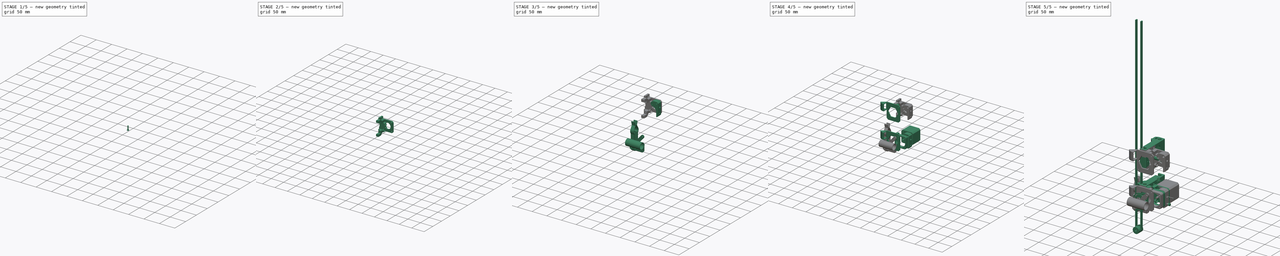
[diagram: build sequence overview — one tinted view per stage of 5, left to right]
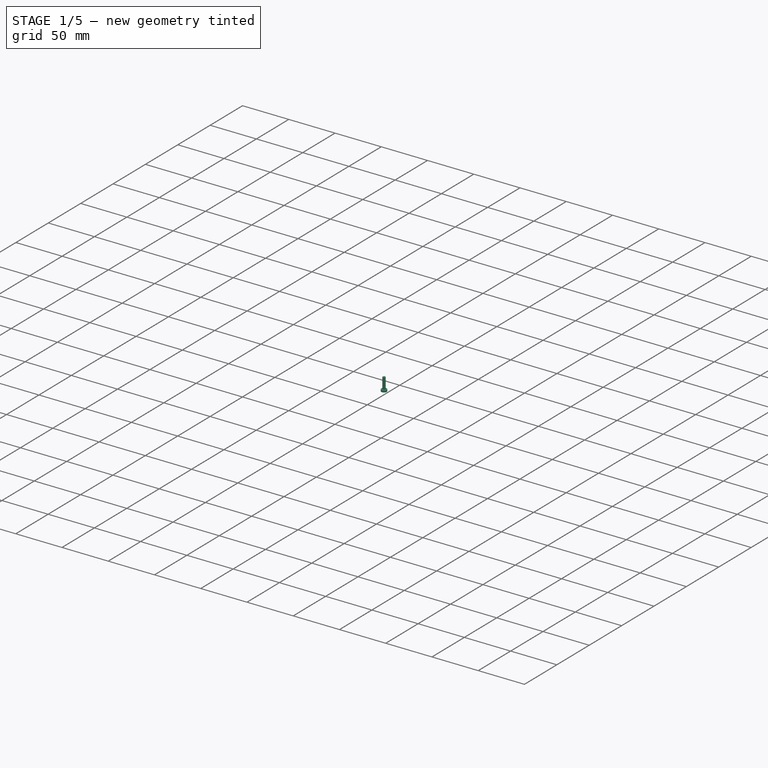
[diagram: stage 1 of 5 — iso view after this stage's code; geometry added in this stage tinted green]
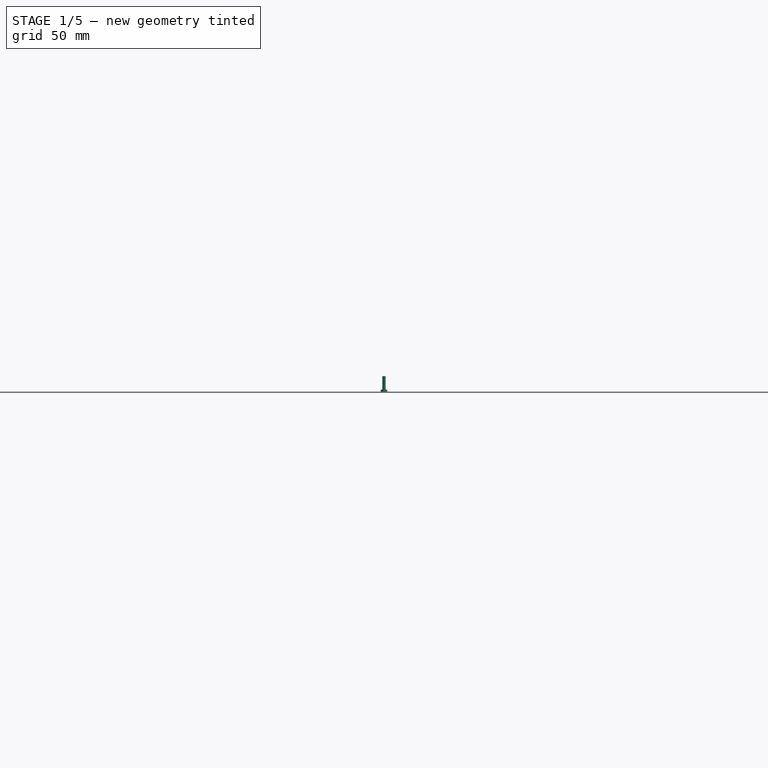
[diagram: stage 1 of 5 — front view after this stage's code; geometry added in this stage tinted green]
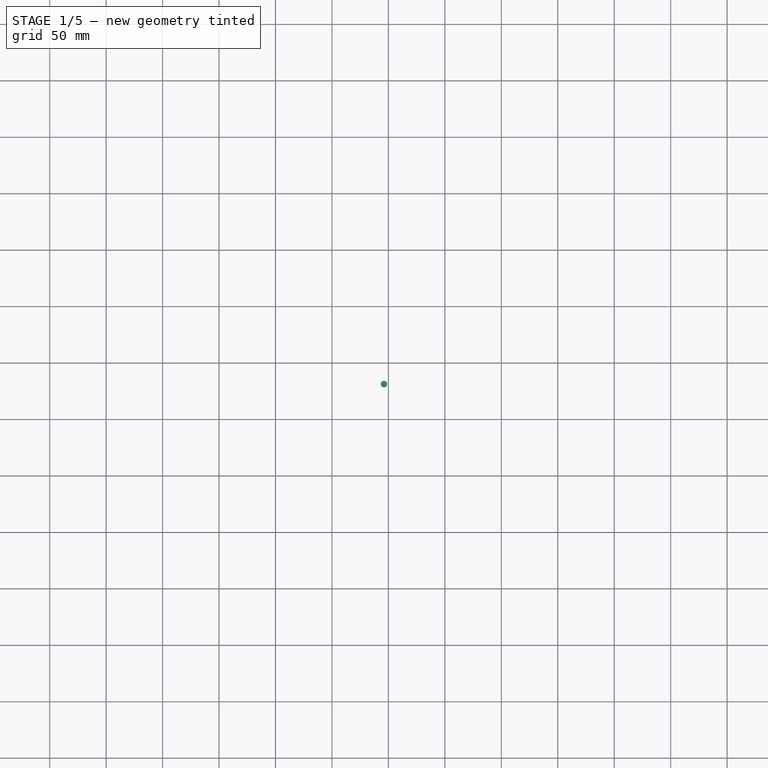
[diagram: stage 1 of 5 — top view after this stage's code; geometry added in this stage tinted green]
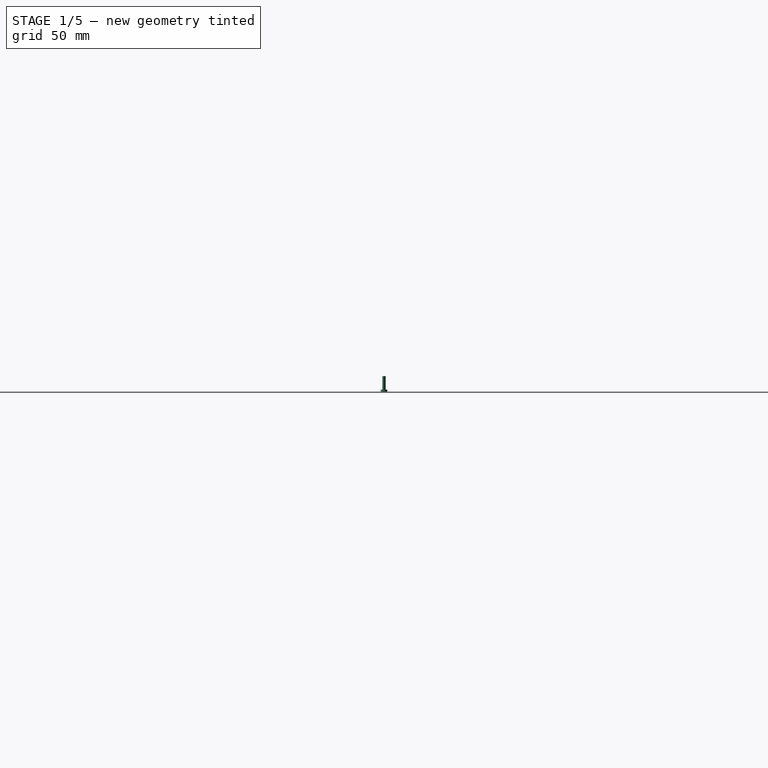
[diagram: stage 1 of 5 — right view after this stage's code; geometry added in this stage tinted green]
FCSTD DOCUMENT  (FreeCAD 0.16R5850 (Git))
Label: MM9-DirectExtruder
License: CC-BY 3.0
LicenseURL: http://creativecommons.org/licenses/by/3.0/
objects: Sketcher::SketchObject×66, Part::FeaturePython×55, PartDesign::Pocket×33, App::DocumentObjectGroup×29, Part::Cut×23, Part::Extrusion×19, PartDesign::Pad×17, Part::Cylinder×14, PartDesign::Chamfer×11, Part::Feature×8, Part::MultiFuse×7, Part::MultiCommon×6, Part::Compound×5, Part::Mirroring×2, Part::Cone×1, PartDesign::Revolution×1, Part::Prism×1, PartDesign::Fillet×1
note: 321 computed .brp shape members not serialized (recipe doc carries the construction recipe); baked Part::Feature solids carry a one-line shape summary decoded from their .brp

FEATURE [Part::Feature] Pocket  label="ventilador40mm001"
  Placement = pos=(1,-36.5,0.5) rot=(0,0,1;0rad)
  shape: bbox 41 x 10 x 41 mm, 15 faces (baked)
FEATURE [Part::Feature] Cut  label="625ZZ002"
  Placement = pos=(22.2,-14.5,33) rot=(1,0,0;1.5708rad)
  shape: bbox 16 x 5 x 16 mm, 4 faces (baked)
FEATURE [Part::Feature] Pad  label="NEMA018"
  shape: bbox 42.3 x 65 x 42.3 mm, 22 faces (baked)
FEATURE [Part::Feature] Cut001  label="Mk8-hobbed"
  Placement = pos=(21.15,-10,21.15) rot=(1,0,0;1.5708rad)
  shape: bbox 10.82 x 10 x 10.82 mm, 7 faces (baked)
FEATURE [Part::Cylinder] Cylinder  label="Filamento"
  Angle = 360
  Height = 80
  Placement = pos=(-19,-17,25) rot=(0,1,0;1.5708rad)
  Radius = 0.875
FEATURE [Part::Cylinder] Cylinder001  label="Cilindro"
  Angle = 360
  Height = 4
  Placement = pos=(-12,0,0) rot=(0,0,1;0rad)
  Radius = 1.5
FEATURE [Part::Cylinder] Cylinder002  label="Cilindro001"
  Angle = 360
  Height = 4
  Placement = pos=(-12,0,0) rot=(0,0,1;0rad)
  Radius = 5
FEATURE [Part::Cut] Cut002  label="623"
  Base = -> Cylinder002
  Placement = pos=(33.15,-15,30.3) rot=(1,0,0;1.5708rad)
  Tool = -> Cylinder001
FEATURE [Part::Compound] Compound
  Links = -> [Cut001,Cut002,Cylinder]
  Placement = pos=(-0.004347,6.85,-0.014573) rot=(0,0,1;0rad)
FEATURE [Sketcher::SketchObject] Sketch004
  ExternalGeometry = -> [Compound]
  Placement = pos=(-0.004347,-13.15,-0.014573) rot=(1,0,0;1.5708rad)
  Support = -> Compound [Face3]
  sketch-geometry (4):
    g0: ArcOfCircle CenterX=21.15 CenterY=21.15 CenterZ=0 NormalX=0 NormalY=0 NormalZ=1 Radius=4.25 StartAngle=1.87421 EndAngle=7.55057
    g1: GeomPoint [constr] X=22.4198 Y=25.2059 Z=0
    g2: GeomPoint [constr] X=19.8802 Y=25.2059 Z=0
    g3: ArcOfCircle CenterX=21.15 CenterY=30.3 CenterZ=0 NormalX=0 NormalY=0 NormalZ=1 Radius=5.25 StartAngle=4.95668 EndAngle=10.7513
  constraints (6):
    c: Radius(g0) = 4.25
    c: Coincident(g0,g-3)
    c: Coincident(g3,g-4)
    c: Coincident(g3,g0)
    c: Coincident(g3,g0)
    c: Radius(g3) = 5.25
FEATURE [Part::Extrusion] Extrude_Sketch004  label="Sketch004_Extrude"
  Base = -> Sketch004
  Dir = (0,10,0)
  Solid = true
FEATURE [Part::FeaturePython] Facebinder001  # WARN: FeaturePython — macro-defined, semantics opaque (R4)
  Faces = -> [Extrude_Sketch004]
FEATURE [Part::Extrusion] Extrude_Facebinder001  label="Facebinder001_Extrude"
  Base = -> Facebinder001
  Dir = (0,-10,0)
  Solid = true
FEATURE [Part::MultiFuse] Fusion
  Shapes = -> [Extrude_Facebinder001,Extrude_Sketch004]
FEATURE [Part::Feature] Fusion002001  label="Fusion003"
  Placement = pos=(-86,-10.15,24.9854) rot=(0,1,0;1.5708rad)
  shape: bbox 46 x 24 x 103.4 mm, 38 faces, 2 solids (baked)
FEATURE [Part::Cut] Cut007
  Placement = pos=(-252.615,45.4069,-5.77308) rot=(0,1,0;1.5708rad)
  Tool = -> Fusion
FEATURE [Sketcher::SketchObject] Sketch017
  ExternalGeometry = -> [Cut010]
  Placement = pos=(0,-19,0) rot=(1,0,0;1.5708rad)
  Support = -> Cut010 [Face22]
  sketch-geometry (11):
    g0: LineSegment StartX=9.65 StartY=0 StartZ=0 EndX=4 EndY=0 EndZ=0
    g1: LineSegment StartX=0 StartY=4 StartZ=0 EndX=9.65 EndY=0 EndZ=0
    g2: LineSegment StartX=9.65 StartY=0 StartZ=0 EndX=0 EndY=0 EndZ=0
    g3: LineSegment StartX=0 StartY=0 StartZ=0 EndX=0 EndY=-8 EndZ=0
    g4: LineSegment StartX=0 StartY=-8 StartZ=0 EndX=-6 EndY=-8 EndZ=0
    g5: LineSegment StartX=-6 StartY=-8 StartZ=0 EndX=-6 EndY=50.3 EndZ=0
    g6: LineSegment StartX=-6 StartY=50.3 StartZ=0 EndX=0 EndY=50.3 EndZ=0
    g7: LineSegment StartX=0 StartY=50.3 StartZ=0 EndX=0 EndY=42.3 EndZ=0
    g8: LineSegment StartX=0 StartY=42.3 StartZ=0 EndX=9.65 EndY=42.3 EndZ=0
    g9: LineSegment StartX=9.65 StartY=42.3 StartZ=0 EndX=0 EndY=38.3 EndZ=0
    g10: LineSegment StartX=0 StartY=38.3 StartZ=0 EndX=0 EndY=4 EndZ=0
  constraints (27):
    c: Coincident(g-4,g0)
    c: Coincident(g0,g-4)
    c: Coincident(g-3,g1)
    c: Coincident(g1,g0)
    c: Coincident(g1,g2)
    c: Coincident(g2,g-1)
    c: Coincident(g2,g3)
    c: PointOnObject(g3,g-2)
    c: Coincident(g3,g4)
    c: Horizontal(g4)
    c: Coincident(g4,g5)
    c: Vertical(g5)
    c: Coincident(g5,g6)
    c: Horizontal(g6)
    c: PointOnObject(g6,g-2)
    c: Coincident(g6,g7)
    c: Vertical(g7)
    c: Coincident(g7,g8)
    c: Horizontal(g8)
    c: Coincident(g8,g9)
    c: Coincident(g9,g-3)
    c: Coincident(g9,g10)
    c: Coincident(g10,g1)
    c: Coincident(g8,g-5)
    c: Equal(g7,g3)
    c: Distance(g3) = 8
    c: Distance(g4) = 6
FEATURE [Sketcher::SketchObject] Sketch018
  ExternalGeometry = -> [Cut007]
  Placement = pos=(-17.9996,45.4069,-5.77308) rot=(0.707107,0,-0.707107;3.14159rad)
  Support = -> Cut007 [Face4]
  sketch-geometry (10):
    g0: LineSegment StartX=-51.9231 StartY=28.1662 StartZ=0 EndX=-51.9231 EndY=63.6477 EndZ=0
    g1: LineSegment StartX=-51.9231 StartY=63.6477 StartZ=0 EndX=-47.8138 EndY=67.7569 EndZ=0
    g2: LineSegment StartX=-47.8138 StartY=67.7569 StartZ=0 EndX=-14.0323 EndY=67.7569 EndZ=0
    g3: LineSegment StartX=-14.0323 StartY=67.7569 StartZ=0 EndX=-9.92308 EndY=63.6477 EndZ=0
    g4: LineSegment StartX=-9.92308 StartY=63.6477 StartZ=0 EndX=-9.92308 EndY=28.1662 EndZ=0
    g5: LineSegment StartX=-9.92308 StartY=28.1662 StartZ=0 EndX=-14.0323 EndY=24.0569 EndZ=0
    g6: LineSegment StartX=-14.0323 StartY=24.0569 StartZ=0 EndX=-47.8138 EndY=24.0569 EndZ=0
    g7: LineSegment StartX=-47.8138 StartY=24.0569 StartZ=0 EndX=-51.9231 EndY=28.1662 EndZ=0
    g8: LineSegment [constr] StartX=-17.9231 StartY=24.4069 StartZ=0 EndX=-14.0323 EndY=24.0569 EndZ=0
    g9: LineSegment [constr] StartX=-43.9231 StartY=24.4069 StartZ=0 EndX=-47.8138 EndY=24.0569 EndZ=0
  constraints (27):
    c: Vertical(g0)
    c: Coincident(g0,g1)
    c: Coincident(g1,g2)
    c: Horizontal(g2)
    c: Coincident(g2,g3)
    c: Coincident(g3,g4)
    c: Vertical(g4)
    c: Coincident(g4,g5)
    c: Coincident(g5,g6)
    c: Horizontal(g6)
    c: Coincident(g6,g7)
    c: Coincident(g7,g0)
    c: Equal(g7,g5)
    c: Equal(g5,g3)
    c: Equal(g3,g1)
    c: Parallel(g1,g-6)
    c: Parallel(g-6,g5)
    c: Parallel(g3,g-3)
    c: Parallel(g-3,g7)
    c: Distance(g2,g-7) = 1.5
    c: Distance(g5,g-9) = 1.5
    c: Coincident(g8,g-8)
    c: Coincident(g8,g5)
    c: Distance(g0,g4) = 42
    c: Coincident(g9,g-8)
    c: Coincident(g9,g6)
    c: Equal(g9,g8)
FEATURE [PartDesign::Pocket] Pocket011
  Length = 5
  Placement = pos=(-252.615,45.4069,-5.77308) rot=(0,1,0;1.5708rad)
  Sketch = -> Sketch018
  Type = 1
FEATURE [Part::FeaturePython] Clone  label="Clone of Pocket011"  # Draft clone (typed FeaturePython)
  Objects = -> [Pocket011]
  Placement = pos=(-252.615,45.4069,-9.43) rot=(0,1,0;1.5708rad)
  Scale = (1,1,1)
FEATURE [PartDesign::Chamfer] Chamfer003
  Base = -> Clone [Edge148]
  Placement = pos=(-252.615,45.4069,-9.43) rot=(0,1,0;1.5708rad)
  Size = 3
FEATURE [Sketcher::SketchObject] Sketch029
  ExternalGeometry = -> [Chamfer003]
  Placement = pos=(-252.615,45.4069,51.9934) rot=(0,0,-1;1.5708rad)
  Support = -> Chamfer003 [Face12]
  sketch-geometry (1):
    g0: LineSegment [constr] StartX=14.9069 StartY=243.615 StartZ=0 EndX=76.9069 EndY=243.615 EndZ=0
  constraints (3):
    c: Coincident(g0,g-3)
    c: Coincident(g0,g-4)
    c: Distance(g0) = 62
FEATURE [Sketcher::SketchObject] Sketch030
  ExternalGeometry = -> [Chamfer003]
  Placement = pos=(-252.615,45.4069,44.2931) rot=(0.707107,0.707107,0;3.14159rad)
  Support = -> Chamfer003 [Face157]
  sketch-geometry (6):
    g0: ArcOfCircle CenterX=-76.9069 CenterY=243.615 CenterZ=0 NormalX=0 NormalY=0 NormalZ=1 Radius=7.65 StartAngle=5.71074 EndAngle=9.99723
    g1: LineSegment StartX=-83.3373 StartY=239.471 StartZ=0 EndX=-84.5569 EndY=238.252 EndZ=0
    g2: LineSegment StartX=-84.5569 StartY=238.252 StartZ=0 EndX=-84.5569 EndY=234.615 EndZ=0
    g3: LineSegment StartX=-84.5569 StartY=234.615 StartZ=0 EndX=-69.2569 EndY=234.615 EndZ=0
    g4: LineSegment StartX=-69.2569 StartY=234.615 StartZ=0 EndX=-69.2569 EndY=238.252 EndZ=0
    g5: LineSegment StartX=-69.2569 StartY=238.252 StartZ=0 EndX=-70.4765 EndY=239.471 EndZ=0
  constraints (13):
    c: Coincident(g0,g-4)
    c: Coincident(g0,g-3)
    c: Equal(g0,g-3)
    c: Coincident(g0,g1)
    c: Coincident(g1,g-5)
    c: Coincident(g1,g2)
    c: Coincident(g2,g-8)
    c: Coincident(g2,g3)
    c: Coincident(g3,g-7)
    c: Coincident(g3,g4)
    c: Coincident(g4,g-6)
    c: Coincident(g4,g5)
    c: Coincident(g5,g0)
FEATURE [PartDesign::Pocket] Pocket021
  Length = 0.4
  Placement = pos=(-252.615,45.4069,-9.43) rot=(0,1,0;1.5708rad)
  Sketch = -> Sketch030
  Type = 0
FEATURE [Sketcher::SketchObject] Sketch031
  ExternalGeometry = -> [Pocket021]
  Placement = pos=(-252.615,45.4069,-1.30692) rot=(0,0,-1;1.5708rad)
  Support = -> Pocket021 [Face153]
  sketch-geometry (6):
    g0: ArcOfCircle CenterX=76.9069 CenterY=243.615 CenterZ=0 NormalX=0 NormalY=0 NormalZ=1 Radius=7.65 StartAngle=5.71074 EndAngle=9.99723
    g1: LineSegment StartX=70.4765 StartY=239.471 StartZ=0 EndX=69.2569 EndY=238.252 EndZ=0
    g2: LineSegment StartX=69.2569 StartY=238.252 StartZ=0 EndX=69.2569 EndY=234.615 EndZ=0
    g3: LineSegment StartX=69.2569 StartY=234.615 StartZ=0 EndX=84.5569 EndY=234.615 EndZ=0
    g4: LineSegment StartX=84.5569 StartY=234.615 StartZ=0 EndX=84.5569 EndY=238.252 EndZ=0
    g5: LineSegment StartX=84.5569 StartY=238.252 StartZ=0 EndX=83.3373 EndY=239.471 EndZ=0
  constraints (14):
    c: Coincident(g0,g-5)
    c: Coincident(g0,g-6)
    c: Equal(g0,g-3)
    c: Coincident(g0,g1)
    c: Coincident(g1,g-5)
    c: Coincident(g1,g2)
    c: Coincident(g2,g-4)
    c: Coincident(g2,g3)
    c: Horizontal(g3)
    c: Coincident(g3,g4)
    c: Vertical(g4)
    c: Coincident(g4,g5)
    c: Coincident(g5,g0)
    c: Coincident(g4,g-6)
FEATURE [PartDesign::Pocket] Pocket022
  Length = 0.4
  Placement = pos=(-252.615,45.4069,-9.43) rot=(0,1,0;1.5708rad)
  Sketch = -> Sketch031
  Type = 0
FEATURE [Sketcher::SketchObject] Sketch032
  ExternalGeometry = -> [Pocket022]
  Placement = pos=(-252.615,45.4069,51.9934) rot=(0,0,-1;1.5708rad)
  Support = -> Pocket022 [Face12]
  sketch-geometry (3):
    g0: LineSegment StartX=25.0968 StartY=225.655 StartZ=0 EndX=34.0568 EndY=234.615 EndZ=0
    g1: LineSegment StartX=34.0568 StartY=234.615 StartZ=0 EndX=25.0968 EndY=234.615 EndZ=0
    g2: LineSegment StartX=25.0968 StartY=234.615 StartZ=0 EndX=25.0968 EndY=225.655 EndZ=0
  constraints (7):
    c: Coincident(g-4,g0)
    c: PointOnObject(g0,g-3)
    c: Coincident(g0,g1)
    c: Coincident(g1,g-4)
    c: Coincident(g1,g2)
    c: Coincident(g2,g0)
    c: Parallel(g0,g-5)
FEATURE [PartDesign::Pad] Pad006
  Length = 10
  Length2 = 100
  Placement = pos=(-252.615,45.4069,-9.43) rot=(0,1,0;1.5708rad)
  Reversed = true
  Sketch = -> Sketch032
  Type = 3
  UpToFace = -> Pocket022 [Face4]
FEATURE [Sketcher::SketchObject] Sketch033
  ExternalGeometry = -> [Pad006]
  Placement = pos=(-252.615,45.4069,-9.00724) rot=(0.707107,0.707107,0;3.14159rad)
  Support = -> Pad006 [Face19]
  sketch-geometry (3):
    g0: LineSegment StartX=-25.0968 StartY=225.655 StartZ=0 EndX=-25.0968 EndY=234.615 EndZ=0
    g1: LineSegment StartX=-25.0968 StartY=234.615 StartZ=0 EndX=-34.0568 EndY=234.615 EndZ=0
    g2: LineSegment StartX=-34.0568 StartY=234.615 StartZ=0 EndX=-25.0968 EndY=225.655 EndZ=0
  constraints (7):
    c: Coincident(g-3,g0)
    c: Coincident(g0,g-4)
    c: Coincident(g0,g1)
    c: Horizontal(g1)
    c: Coincident(g1,g2)
    c: Coincident(g2,g0)
    c: Parallel(g-5,g2)
FEATURE [PartDesign::Pad] Pad007
  Length = 10
  Length2 = 100
  Placement = pos=(-252.615,45.4069,-9.43) rot=(0,1,0;1.5708rad)
  Reversed = true
  Sketch = -> Sketch033
  Type = 3
  UpToFace = -> Pad006 [Face17]
FEATURE [Part::FeaturePython] Clone021  label="Clone of Pad007"  # Draft clone (typed FeaturePython)
  Objects = -> [Pad007]
  Placement = pos=(-252.615,-46.407,52.4162) rot=(0.707107,0,0.707107;3.14159rad)
  Scale = (1,1,1)
FEATURE [Part::FeaturePython] Clone022  label="Clone of Pad008"  # Draft clone (typed FeaturePython)
  Objects = -> [Pad007]
  Placement = pos=(-252.615,45.4069,-9.43) rot=(0,1,0;1.5708rad)
  Scale = (1,1,1)
FEATURE [PartDesign::Chamfer] Chamfer004
  Base = -> Clone021 [Edge112]
  Placement = pos=(-252.615,-46.407,52.4162) rot=(0.707107,0,0.707107;3.14159rad)
  Size = 3
FEATURE [Sketcher::SketchObject] Sketch034
  ExternalGeometry = -> [Chamfer004]
  Placement = pos=(0.00037987,-46.407,52.4162) rot=(0.707107,0,0.707107;3.14159rad)
  Support = -> Chamfer004 [Face1]
  sketch-geometry (6):
    g0: LineSegment StartX=-60.2481 StartY=-26.4069 StartZ=0 EndX=-1.59808 EndY=-26.4069 EndZ=0
    g1: LineSegment StartX=-1.59808 StartY=-26.4069 StartZ=0 EndX=-1.59808 EndY=-45.7569 EndZ=0
    g2: LineSegment StartX=-1.59808 StartY=-45.7569 StartZ=0 EndX=-60.2481 EndY=-45.7569 EndZ=0
    g3: LineSegment StartX=-60.2481 StartY=-45.7569 StartZ=0 EndX=-60.2481 EndY=-26.4069 EndZ=0
    g4: LineSegment [constr] StartX=-60.2481 StartY=-26.4069 StartZ=0 EndX=-61.4234 EndY=-26.4069 EndZ=0
    g5: LineSegment [constr] StartX=-1.59808 StartY=-26.4069 StartZ=0 EndX=-0.42276 EndY=-26.4069 EndZ=0
  constraints (18):
    c: Coincident(g0,g1)
    c: Coincident(g1,g2)
    c: Coincident(g2,g3)
    c: Coincident(g3,g0)
    c: Horizontal(g0)
    c: Horizontal(g2)
    c: Vertical(g1)
    c: Vertical(g3)
    c: Coincident(g4,g0)
    c: PointOnObject(g4,g-3)
    c: Horizontal(g4)
    c: Coincident(g5,g0)
    c: PointOnObject(g5,g-8)
    c: Horizontal(g5)
    c: Equal(g5,g4)
    c: Distance(g1) = 19.35
    c: Distance(g0) = 58.65
    c: Distance(g5,g-6) = 20
FEATURE [Part::Extrusion] Extrude_Sketch034  label="Sketch034_Extrude"
  Base = -> Sketch034
  Dir = (-6,0,0)
  Solid = true
FEATURE [Sketcher::SketchObject] Sketch035
  ExternalGeometry = -> [Extrude_Sketch034]
  Placement = pos=(-5.99962,0,0) rot=(0.57735,-0.57735,-0.57735;2.0944rad)
  Support = -> Extrude_Sketch034 [Face6]
  sketch-geometry (8):
    g0: LineSegment [constr] StartX=6.82503 StartY=46.4931 StartZ=0 EndX=13.825 EndY=46.4931 EndZ=0
    g1: LineSegment [constr] StartX=13.825 StartY=46.4931 StartZ=0 EndX=13.825 EndY=-3.50692 EndZ=0
    g2: LineSegment [constr] StartX=13.825 StartY=-3.50692 StartZ=0 EndX=6.82503 EndY=-3.50692 EndZ=0
    g3: LineSegment [constr] StartX=6.82503 StartY=-3.50692 StartZ=0 EndX=6.82503 EndY=46.4931 EndZ=0
    g4: LineSegment [constr] StartX=6.82503 StartY=46.4931 StartZ=0 EndX=0.650025 EndY=50.8181 EndZ=0
    g5: LineSegment [constr] StartX=13.825 StartY=-3.50692 StartZ=0 EndX=20 EndY=-7.83192 EndZ=0
    g6: Circle CenterX=6.82503 CenterY=46.4931 CenterZ=0 NormalX=0 NormalY=0 NormalZ=1 Radius=1.65
    g7: Circle CenterX=13.825 CenterY=-3.50692 CenterZ=0 NormalX=0 NormalY=0 NormalZ=1 Radius=1.65
  constraints (20):
    c: Coincident(g0,g1)
    c: Coincident(g1,g2)
    c: Coincident(g2,g3)
    c: Coincident(g3,g0)
    c: Horizontal(g0)
    c: Horizontal(g2)
    c: Vertical(g1)
    c: Vertical(g3)
    c: Distance(g1) = 50
    c: Coincident(g4,g0)
    c: Coincident(g4,g-5)
    c: Coincident(g5,g1)
    c: Coincident(g5,g-6)
    c: Equal(g5,g4)
    c: Parallel(g4,g5)
    c: Distance(g0) = 7
    c: Coincident(g6,g0)
    c: Coincident(g7,g1)
    c: Radius(g7) = 1.65
    c: Equal(g7,g6)
FEATURE [PartDesign::Pad] Pad008
  Length = 6
  Length2 = 100
  Sketch = -> Sketch035
  Type = 0
FEATURE [Sketcher::SketchObject] Sketch036
  ExternalGeometry = -> [Pad008]
  Placement = pos=(-11.9996,0,0) rot=(0.57735,-0.57735,-0.57735;2.0944rad)
  Support = -> Pad008 [Face9]
  sketch-geometry (14):
    g0: LineSegment StartX=8.45604 StartY=43.6681 StartZ=0 EndX=10.0871 EndY=46.4931 EndZ=0
    g1: LineSegment StartX=10.0871 StartY=46.4931 StartZ=0 EndX=8.45604 EndY=49.3181 EndZ=0
    g2: LineSegment StartX=8.45604 StartY=49.3181 StartZ=0 EndX=5.19401 EndY=49.3181 EndZ=0
    g3: LineSegment StartX=5.19401 StartY=49.3181 StartZ=0 EndX=3.563 EndY=46.4931 EndZ=0
    g4: LineSegment StartX=3.563 StartY=46.4931 StartZ=0 EndX=5.19401 EndY=43.6681 EndZ=0
    g5: LineSegment StartX=5.19401 StartY=43.6681 StartZ=0 EndX=8.45604 EndY=43.6681 EndZ=0
    g6: Circle [constr] CenterX=6.82503 CenterY=46.4931 CenterZ=0 NormalX=0 NormalY=0 NormalZ=1 Radius=3.26203
    g7: LineSegment StartX=15.456 StartY=-0.681918 StartZ=0 EndX=12.194 EndY=-0.681918 EndZ=0
    g8: LineSegment StartX=12.194 StartY=-0.681918 StartZ=0 EndX=10.563 EndY=-3.50692 EndZ=0
    g9: LineSegment StartX=10.563 StartY=-3.50692 StartZ=0 EndX=12.194 EndY=-6.33192 EndZ=0
    g10: LineSegment StartX=12.194 StartY=-6.33192 StartZ=0 EndX=15.456 EndY=-6.33192 EndZ=0
    g11: LineSegment StartX=15.456 StartY=-6.33192 StartZ=0 EndX=17.0871 EndY=-3.50692 EndZ=0
    g12: LineSegment StartX=17.0871 StartY=-3.50692 StartZ=0 EndX=15.456 EndY=-0.681918 EndZ=0
    g13: Circle [constr] CenterX=13.825 CenterY=-3.50692 CenterZ=0 NormalX=0 NormalY=0 NormalZ=1 Radius=3.26203
  constraints (32):
    c: Coincident(g0,g1)
    c: Coincident(g1,g2)
    c: Coincident(g2,g3)
    c: Coincident(g3,g4)
    c: Coincident(g4,g5)
    c: Coincident(g5,g0)
    c: Equal(g0, g1-g5) x5
    c: PointOnObject(g0,g6)
    c: PointOnObject(g1,g6)
    c: PointOnObject(g2,g6)
    c: PointOnObject(g3,g6)
    c: PointOnObject(g4,g6)
    c: PointOnObject(g5,g6)
    c: Coincident(g6,g-3)
    c: Coincident(g7,g8)
    c: Coincident(g8,g9)
    c: Coincident(g9,g10)
    c: Coincident(g10,g11)
    c: Coincident(g11,g12)
    c: Coincident(g12,g7)
    c: Equal(g7, g8-g12) x5
    c: PointOnObject(g7,g13)
    c: PointOnObject(g8,g13)
    c: PointOnObject(g9,g13)
    c: PointOnObject(g10,g13)
    c: PointOnObject(g11,g13)
    c: PointOnObject(g12,g13)
    c: Coincident(g13,g-4)
    c: Horizontal(g5)
    c: Horizontal(g7)
    c: Equal(g6,g13)
    c: Distance(g1,g0) = 5.65
FEATURE [PartDesign::Pad] Pad009
  Length = 25
  Length2 = 100
  Sketch = -> Sketch036
  Type = 0
FEATURE [App::DocumentObjectGroup] Grupo007  label="Anclaje"
  Group = -> [Extrude_Sketch034,Pad008,Pad009]
FEATURE [Part::FeaturePython] Clone023  label="Clone of Pad009"  # Draft clone (typed FeaturePython)
  Objects = -> [Pad009]
  Scale = (1,1,1)
FEATURE [Part::FeaturePython] Clone024  label="Clone of Pad010"  # Draft clone (typed FeaturePython)
  Objects = -> [Pad009]
  Scale = (1,1,1)
FEATURE [Part::Cut] Cut011
  Base = -> Chamfer004
  Tool = -> Clone023
FEATURE [Part::Cut] Cut012
  Base = -> Clone022
  Tool = -> Clone024
FEATURE [Sketcher::SketchObject] Sketch037
  ExternalGeometry = -> [Cut012]
  Placement = pos=(-17.9996,0,0) rot=(0.57735,-0.57735,-0.57735;2.0944rad)
  Support = -> Cut012 [Face6]
  sketch-geometry (12):
    g0: LineSegment StartX=1.87761 StartY=42.4931 StartZ=0 EndX=18.2408 EndY=42.4931 EndZ=0
    g1: LineSegment StartX=18.2408 StartY=42.4931 StartZ=0 EndX=22.35 EndY=38.3838 EndZ=0
    g2: LineSegment StartX=22.35 StartY=38.3838 StartZ=0 EndX=22.35 EndY=4.60233 EndZ=0
    g3: LineSegment StartX=22.35 StartY=4.60233 StartZ=0 EndX=18.2408 EndY=0.493082 EndZ=0
    g4: LineSegment StartX=18.2408 StartY=0.493082 StartZ=0 EndX=1.87761 EndY=0.493082 EndZ=0
    g5: LineSegment StartX=1.87761 StartY=0.493082 StartZ=0 EndX=1.87761 EndY=19.0325 EndZ=0
    g6: LineSegment StartX=1.87761 StartY=42.4931 StartZ=0 EndX=1.87761 EndY=31.0325 EndZ=0
    g7: LineSegment [constr] StartX=1.87761 StartY=31.0325 StartZ=0 EndX=1.87761 EndY=19.0325 EndZ=0
    g8: LineSegment StartX=1.87761 StartY=19.0325 StartZ=0 EndX=10.4801 EndY=19.0325 EndZ=0
    g9: LineSegment StartX=1.87761 StartY=31.0325 StartZ=0 EndX=10.4801 EndY=31.0325 EndZ=0
    g10: LineSegment [constr] StartX=10.4801 StartY=31.0325 StartZ=0 EndX=10.4801 EndY=19.0325 EndZ=0
    g11: ArcOfCircle CenterX=10.4801 CenterY=25.0325 CenterZ=0 NormalX=0 NormalY=0 NormalZ=1 Radius=6 StartAngle=4.71239 EndAngle=7.85398
  constraints (28):
    c: PointOnObject(g0,g-5)
    c: Coincident(g0,g-5)
    c: Coincident(g0,g1)
    c: Coincident(g1,g-4)
    c: Coincident(g1,g2)
    c: Coincident(g2,g3)
    c: Coincident(g3,g-7)
    c: Coincident(g3,g4)
    c: PointOnObject(g4,g-6)
    c: Coincident(g4,g5)
    c: Vertical(g5)
    c: Coincident(g2,g-7)
    c: Coincident(g6,g0)
    c: Vertical(g6)
    c: Coincident(g7,g6)
    c: Coincident(g7,g5)
    c: Vertical(g7)
    c: Coincident(g8,g5)
    c: Horizontal(g8)
    c: Coincident(g9,g6)
    c: Horizontal(g9)
    c: Coincident(g10,g9)
    c: Coincident(g10,g8)
    c: Vertical(g10)
    c: PointOnObject(g11,g10)
    c: Coincident(g11,g8)
    c: Coincident(g11,g9)
    c: Distance(g7) = 12
FEATURE [Part::Extrusion] Extrude_Sketch037  label="Sketch037_Extrude"
  Base = -> Sketch037
  Dir = (1,0,0)
  Solid = true
FEATURE [Part::FeaturePython] Clone026  label="Clone of Sketch037_Extrude001"  # Draft clone (typed FeaturePython)
  Objects = -> [Extrude_Sketch037]
  Scale = (1,1,1)
FEATURE [Part::MultiFuse] Fusion002004
  Placement = pos=(0,0.84,-95.35) rot=(0,0,1;0rad)
  Shapes = -> [Cut011,Clone026]
FEATURE [App::DocumentObjectGroup] Grupo010  label="Centrifugo"
  Group = -> [Clone033,Clone019,Pad012]
FEATURE [Part::Cylinder] Cylinder013  label="Cilindro011"
  Angle = 360
  Height = 4
  Placement = pos=(72,0,7) rot=(0,0,1;0rad)
  Radius = 8
FEATURE [Part::Cylinder] Cylinder014  label="Cilindro012"
  Angle = 360
  Height = 4
  Placement = pos=(72,0,7) rot=(0,0,1;0rad)
  Radius = 6
FEATURE [Part::Prism] Prism  label="Prisma"
  Circumradius = 5
  Height = 18
  Placement = pos=(0,16.5425,-12.8103) rot=(1,0,0;0.331613rad)
  Polygon = 6
FEATURE [Part::Cut] Cut014
  Base = -> Cylinder013
  Placement = pos=(-72,16.5425,-12.8103) rot=(1,0,0;0.331613rad)
  Tool = -> Cylinder014
FEATURE [App::DocumentObjectGroup] Grupo011  label="SalidaCableado"
  Group = -> [Prism,Cut014]
FEATURE [Part::Compound] Compound001006
  Links = -> [Prism,Cut014]
  Placement = pos=(0,0,1) rot=(-1,0,0;0.034907rad)
FEATURE [Part::FeaturePython] Clone034003  label="Clone of Compound001006"  # Draft clone (typed FeaturePython)
  Objects = -> [Compound001006]
  Placement = pos=(0,0,0) rot=(-1,0,0;0.034907rad)
  Scale = (1,1,1)
FEATURE [Part::Mirroring] Part__Mirroring  label="Clone of Compound001006 (Mirror #1)"
  Base = (0,0,0)
  Normal = (0,0,1)
  Placement = pos=(0,0,-53.5) rot=(0,0,1;0rad)
  Source = -> Clone034003
FEATURE [App::DocumentObjectGroup] Grupo005  label="carro1"
  Group = -> [Sketch037,Cut015]
FEATURE [Part::Cut] Cut016
  Base = -> Fusion002004
  Tool = -> Part__Mirroring
FEATURE [Sketcher::SketchObject] Sketch054
  Placement = pos=(0,0,-104.357) rot=(1,0,0;3.14159rad)
  Support = -> Cut016 [Face18]
  sketch-geometry (5):
    g0: Circle CenterX=-3.9 CenterY=18.624 CenterZ=0 NormalX=0 NormalY=0 NormalZ=1 Radius=2.9
    g1: LineSegment [constr] StartX=0 StartY=17.2564 StartZ=0 EndX=-1 EndY=17.2564 EndZ=0
    g2: LineSegment [constr] StartX=-1 StartY=17.2564 StartZ=0 EndX=-1 EndY=20.6327 EndZ=0
    g3: LineSegment [constr] StartX=-1 StartY=20.6327 StartZ=0 EndX=0 EndY=20.6327 EndZ=0
    g4: LineSegment [constr] StartX=0 StartY=20.6327 StartZ=0 EndX=0 EndY=17.2564 EndZ=0
  constraints (12):
    c: Radius(g0) = 2.9
    c: Coincident(g1,g2)
    c: Coincident(g2,g3)
    c: Coincident(g3,g4)
    c: Coincident(g4,g1)
    c: Horizontal(g1)
    c: Horizontal(g3)
    c: Vertical(g2)
    c: Vertical(g4)
    c: PointOnObject(g1,g-2)
    c: Distance(g3) = 1
    c: Tangent(g0,g2)
FEATURE [Part::Extrusion] Extrude_Sketch054  label="Sketch054_Extrude"
  Base = -> Sketch054
  Dir = (0,0,-2)
  Solid = true
FEATURE [Sketcher::SketchObject] Sketch055
  ExternalGeometry = -> [Extrude_Sketch054]
  Placement = pos=(0,0,-104.357) rot=(0,0,1;0rad)
  Support = -> Extrude_Sketch054 [Face2]
  sketch-geometry (1):
    g0: Circle CenterX=-3.9 CenterY=-18.624 CenterZ=0 NormalX=0 NormalY=0 NormalZ=1 Radius=1.4
  constraints (2):
    c: Coincident(g0,g-3)
    c: Radius(g0) = 1.4
FEATURE [PartDesign::Pad] Pad015
  Length = 12
  Length2 = 100
  Sketch = -> Sketch055
  Type = 0
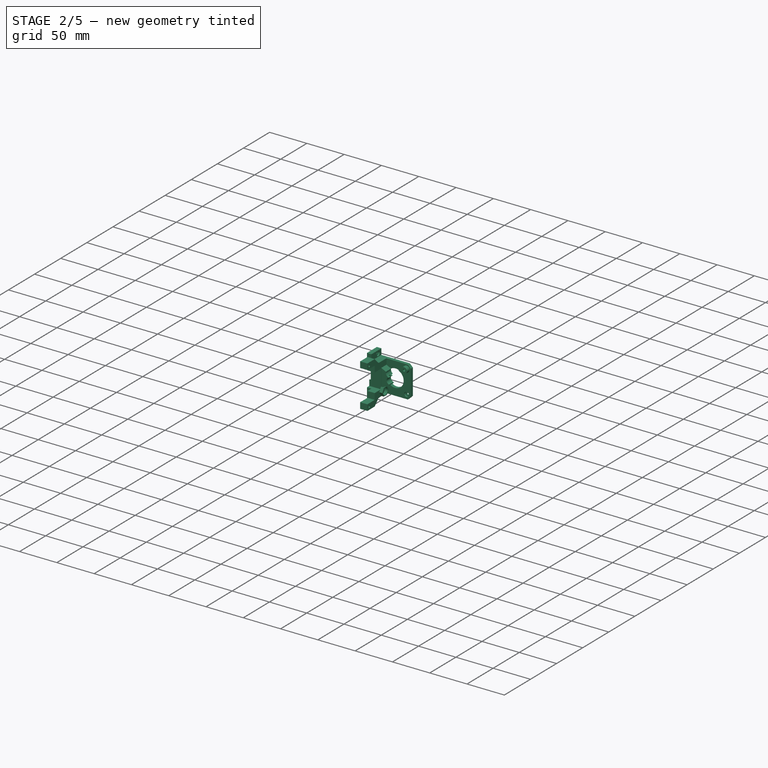
[diagram: stage 2 of 5 — iso view after this stage's code; geometry added in this stage tinted green]
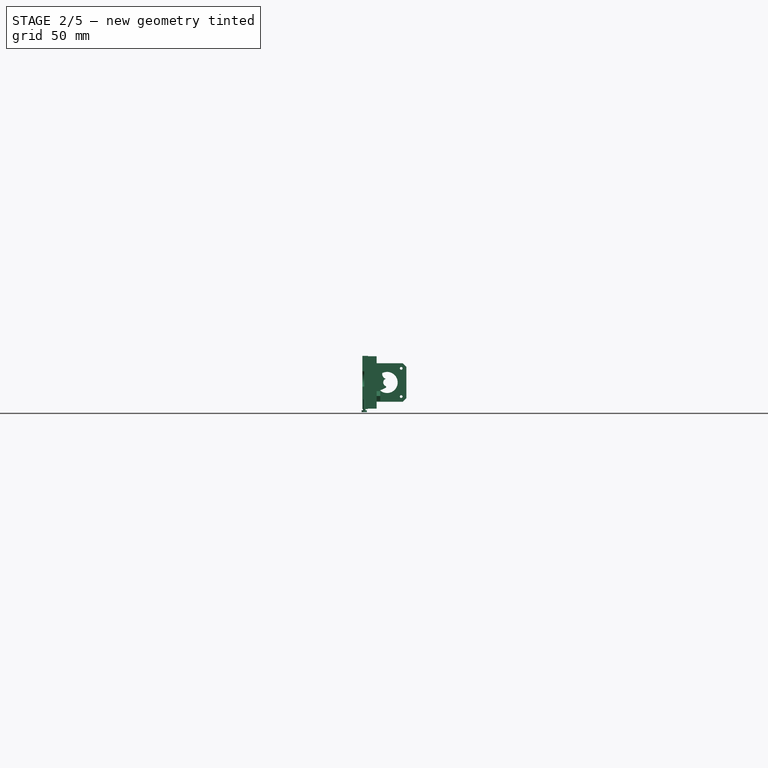
[diagram: stage 2 of 5 — front view after this stage's code; geometry added in this stage tinted green]
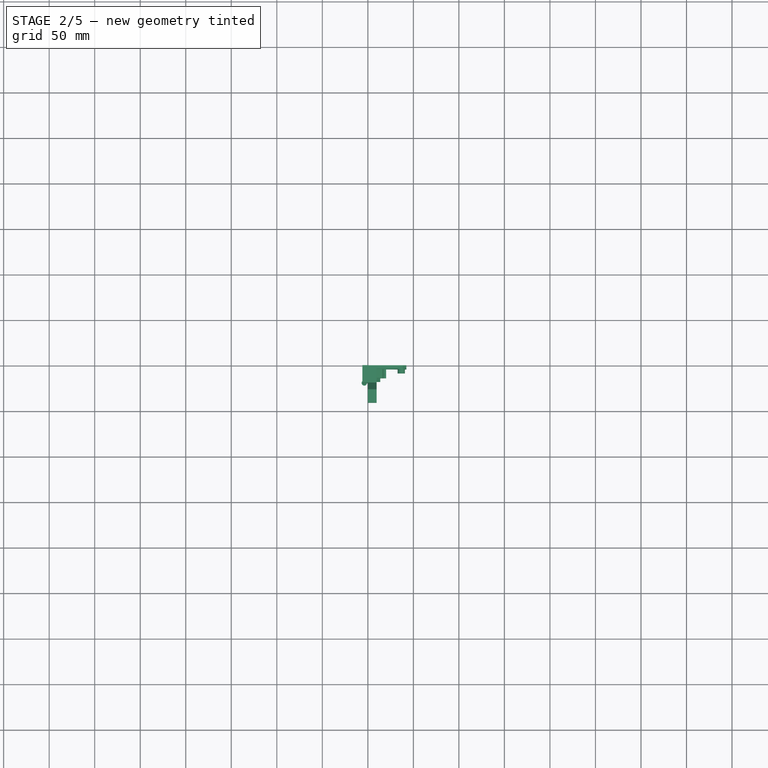
[diagram: stage 2 of 5 — top view after this stage's code; geometry added in this stage tinted green]
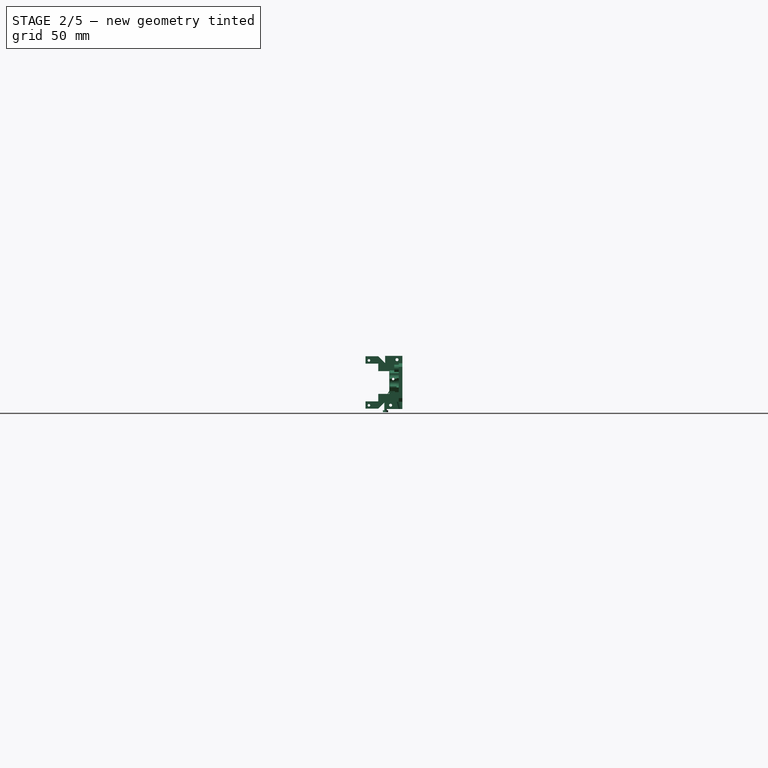
[diagram: stage 2 of 5 — right view after this stage's code; geometry added in this stage tinted green]
FEATURE [Part::FeaturePython] Facebinder  # WARN: FeaturePython — macro-defined, semantics opaque (R4)
  Faces = -> [Pad]
FEATURE [Part::Extrusion] Extrude_Facebinder  label="Facebinder_Extrude"
  Base = -> Facebinder
  Dir = (0,-4,0)
  Solid = false
FEATURE [Sketcher::SketchObject] Sketch001
  ExternalGeometry = -> [Extrude_Facebinder]
  Placement = pos=(0,-4,0) rot=(1,0,0;1.5708rad)
  Support = -> Extrude_Facebinder [Face15]
  sketch-geometry (1):
    g0: Circle CenterX=36.65 CenterY=5.65 CenterZ=0 NormalX=0 NormalY=0 NormalZ=1 Radius=3
  constraints (2):
    c: Coincident(g0,g-3)
    c: Radius(g0) = 3
FEATURE [PartDesign::Pocket] Pocket001
  Length = 2
  Sketch = -> Sketch001
  Type = 0
FEATURE [Sketcher::SketchObject] Sketch002
  ExternalGeometry = -> [Pocket001]
  Placement = pos=(0,-4,0) rot=(1,0,0;1.5708rad)
  Support = -> Pocket001 [Face5]
  sketch-geometry (9):
    g0: LineSegment StartX=9.65 StartY=0 StartZ=0 EndX=9.65 EndY=42.3 EndZ=0
    g1: LineSegment StartX=9.65 StartY=42.3 StartZ=0 EndX=4 EndY=42.3 EndZ=0
    g2: LineSegment StartX=4 StartY=42.3 StartZ=0 EndX=0 EndY=38.3 EndZ=0
    g3: LineSegment StartX=0 StartY=38.3 StartZ=0 EndX=0 EndY=4 EndZ=0
    g4: LineSegment StartX=0 StartY=4 StartZ=0 EndX=4 EndY=0 EndZ=0
    g5: LineSegment StartX=4 StartY=0 StartZ=0 EndX=9.65 EndY=0 EndZ=0
    g6: Circle [constr] CenterX=5.65 CenterY=5.65 CenterZ=0 NormalX=0 NormalY=0 NormalZ=1 Radius=4
    g7: Circle CenterX=5.65 CenterY=36.65 CenterZ=0 NormalX=0 NormalY=0 NormalZ=1 Radius=1.5
    g8: Circle CenterX=5.65 CenterY=5.65 CenterZ=0 NormalX=0 NormalY=0 NormalZ=1 Radius=1.5
  constraints (20):
    c: PointOnObject(g0,g-8)
    c: PointOnObject(g0,g-7)
    c: Vertical(g0)
    c: Coincident(g0,g1)
    c: Coincident(g1,g-7)
    c: Coincident(g1,g2)
    c: Coincident(g2,g-3)
    c: Coincident(g2,g3)
    c: Coincident(g3,g-4)
    c: Coincident(g3,g4)
    c: Coincident(g4,g-8)
    c: Coincident(g4,g5)
    c: Coincident(g5,g0)
    c: Coincident(g6,g-5)
    c: Radius(g6) = 4
    c: Tangent(g0,g6)
    c: Coincident(g7,g-6)
    c: Coincident(g8,g6)
    c: Equal(g-5,g8)
    c: Equal(g8,g7)
FEATURE [PartDesign::Pad] Pad001
  Length = 15
  Length2 = 100
  Sketch = -> Sketch002
  Type = 0
FEATURE [Part::Cone] Cone  label="Cono"
  Angle = 360
  Height = 21
  Placement = pos=(19.9957,-10.15,24.9854) rot=(0,-1,0;1.5708rad)
  Radius1 = 1.65
  Radius2 = 1.15
FEATURE [Sketcher::SketchObject] Sketch005
  ExternalGeometry = -> [Pad001]
  Placement = pos=(0,0,0) rot=(0,0.707107,0.707107;3.14159rad)
  Support = -> Pad001 [Face1]
  sketch-geometry (7):
    g0: LineSegment StartX=-34.9468 StartY=39.6 StartZ=0 EndX=-38.3532 EndY=39.6 EndZ=0
    g1: LineSegment StartX=-38.3532 StartY=39.6 StartZ=0 EndX=-40.0564 EndY=36.65 EndZ=0
    g2: LineSegment StartX=-40.0564 StartY=36.65 StartZ=0 EndX=-38.3532 EndY=33.7 EndZ=0
    g3: LineSegment StartX=-38.3532 StartY=33.7 StartZ=0 EndX=-34.9468 EndY=33.7 EndZ=0
    g4: LineSegment StartX=-34.9468 StartY=33.7 StartZ=0 EndX=-33.2436 EndY=36.65 EndZ=0
    g5: LineSegment StartX=-33.2436 StartY=36.65 StartZ=0 EndX=-34.9468 EndY=39.6 EndZ=0
    g6: Circle [constr] CenterX=-36.65 CenterY=36.65 CenterZ=0 NormalX=0 NormalY=0 NormalZ=1 Radius=3.40637
  constraints (16):
    c: Coincident(g0,g1)
    c: Coincident(g1,g2)
    c: Coincident(g2,g3)
    c: Coincident(g3,g4)
    c: Coincident(g4,g5)
    c: Coincident(g5,g0)
    c: Equal(g0, g1-g5) x5
    c: PointOnObject(g0,g6)
    c: PointOnObject(g1,g6)
    c: PointOnObject(g2,g6)
    c: PointOnObject(g3,g6)
    c: PointOnObject(g4,g6)
    c: PointOnObject(g5,g6)
    c: Coincident(g6,g-3)
    c: Horizontal(g0)
    c: Distance(g3,g0) = 5.9
FEATURE [PartDesign::Pocket] Pocket002
  Length = 3.2
  Sketch = -> Sketch005
  Type = 0
FEATURE [Sketcher::SketchObject] Sketch008
  ExternalGeometry = -> [Pocket002]
  Placement = pos=(0,-4,0) rot=(1,0,0;1.5708rad)
  Support = -> Pocket002 [Face20]
  sketch-geometry (3):
    g0: ArcOfCircle CenterX=36.65 CenterY=36.65 CenterZ=0 NormalX=0 NormalY=0 NormalZ=1 Radius=4 StartAngle=3.06131 EndAngle=9.34449
    g1: Circle CenterX=36.65 CenterY=36.65 CenterZ=0 NormalX=0 NormalY=0 NormalZ=1 Radius=1.5
    g2: LineSegment [constr] StartX=35.15 StartY=40.3581 StartZ=0 EndX=35.15 EndY=32.9419 EndZ=0
  constraints (9):
    c: Coincident(g0,g-3)
    c: Coincident(g1,g0)
    c: Equal(g-3,g1)
    c: PointOnObject(g2,g0)
    c: PointOnObject(g2,g0)
    c: Vertical(g2)
    c: Tangent(g2,g1)
    c: Radius(g0) = 4
    c: Coincident(g0,g0)
FEATURE [PartDesign::Pad] Pad002
  Length = 5
  Length2 = 100
  Sketch = -> Sketch008
  Type = 0
FEATURE [Part::Feature] Compound005  label="mk8"
  Placement = pos=(-34.8055,-10.7727,19.7) rot=(0,1,0;1.5708rad)
  shape: bbox 76.5 x 77.6 x 103.4 mm, 277 faces, 9 solids (baked)
FEATURE [Part::FeaturePython] Clone019  label="ventiladorCentrifugo"  # WARN: FeaturePython — macro-defined, semantics opaque (R4)
  Placement = pos=(2,-59.5,19) rot=(-0.57735,-0.57735,-0.57735;2.0944rad)
  Scale = (1,1,1)
FEATURE [Sketcher::SketchObject] Sketch012
  ExternalGeometry = -> [Pad002]
  Placement = pos=(0,0,0) rot=(0,0.707107,0.707107;3.14159rad)
  Support = -> Pad002 [Face1]
  sketch-geometry (1):
    g0: Circle CenterX=-21.15 CenterY=21.15 CenterZ=0 NormalX=0 NormalY=0 NormalZ=1 Radius=11.6
  constraints (2):
    c: Coincident(g0,g-3)
    c: Radius(g0) = 11.6
FEATURE [PartDesign::Pocket] Pocket008
  Length = 5
  Sketch = -> Sketch012
  Type = 0
FEATURE [Sketcher::SketchObject] Sketch015
  ExternalGeometry = -> [Pocket008]
  Placement = pos=(0,-4,0) rot=(1,0,0;1.5708rad)
  Support = -> Pocket008 [Face20]
  sketch-geometry (8):
    g0: LineSegment StartX=15.8398 StartY=31.4632 StartZ=0 EndX=9.65 EndY=34.4911 EndZ=0
    g1: LineSegment StartX=9.65 StartY=34.4911 StartZ=0 EndX=9.65 EndY=10.509 EndZ=0
    g2: LineSegment StartX=15.8398 StartY=13.537 StartZ=0 EndX=9.65 EndY=10.509 EndZ=0
    g3: LineSegment [constr] StartX=15.8398 StartY=31.4632 StartZ=0 EndX=15.8398 EndY=13.537 EndZ=0
    g4: LineSegment StartX=15.8398 StartY=31.4632 StartZ=0 EndX=15.8398 EndY=29.1195 EndZ=0
    g5: LineSegment StartX=15.8398 StartY=29.1195 StartZ=0 EndX=20.1379 EndY=26.0319 EndZ=0
    g6: LineSegment StartX=20.1379 StartY=26.0319 StartZ=0 EndX=20.1379 EndY=15.6395 EndZ=0
    g7: LineSegment StartX=20.1379 StartY=15.6395 StartZ=0 EndX=15.8398 EndY=13.537 EndZ=0
  constraints (17):
    c: PointOnObject(g1,g-4)
    c: PointOnObject(g0,g-3)
    c: Coincident(g0,g1)
    c: Coincident(g1,g2)
    c: Equal(g2,g0)
    c: Coincident(g3,g2)
    c: Vertical(g3)
    c: Coincident(g0,g3)
    c: PointOnObject(g0,g-5)
    c: Coincident(g0,g4)
    c: Vertical(g4)
    c: Coincident(g4,g5)
    c: Coincident(g5,g6)
    c: Vertical(g6)
    c: Coincident(g6,g7)
    c: Coincident(g7,g2)
    c: Parallel(g7,g2)
FEATURE [PartDesign::Pad] Pad003
  Length = 10
  Length2 = 100
  Sketch = -> Sketch015
  Type = 0
FEATURE [Part::Cut] Cut009
  Base = -> Pad003
  Tool = -> Fusion
FEATURE [Sketcher::SketchObject] Sketch016
  ExternalGeometry = -> [Cut009]
  Placement = pos=(0,-4,0) rot=(0,0.707107,0.707107;3.14159rad)
  Support = -> Cut009 [Face25]
  sketch-geometry (1):
    g0: Circle CenterX=-21.1457 CenterY=21.1354 CenterZ=0 NormalX=0 NormalY=0 NormalZ=1 Radius=5.58759
  constraints (2):
    c: Coincident(g0,g-3)
    c: PointOnObject(g-4,g0)
FEATURE [PartDesign::Pocket] Pocket010
  Length = 2.5
  Sketch = -> Sketch016
  Type = 0
FEATURE [Part::Cut] Cut010
  Base = -> Pocket010
  Tool = -> Cone
FEATURE [PartDesign::Pad] Pad004
  Length = 19
  Length2 = 100
  Reversed = true
  Sketch = -> Sketch017
  Type = 0
FEATURE [Part::FeaturePython] Clone020  label="Clone of Pad004"  # Draft clone (typed FeaturePython)
  Objects = -> [Pad004]
  Scale = (1,1,1)
FEATURE [Sketcher::SketchObject] Sketch019
  ExternalGeometry = -> [Clone020]
  Placement = pos=(0,-19,0) rot=(1,0,0;1.5708rad)
  Support = -> Clone020 [Face43]
  sketch-geometry (6):
    g0: Circle [constr] CenterX=5.65 CenterY=36.65 CenterZ=0 NormalX=0 NormalY=0 NormalZ=1 Radius=3
    g1: Circle [constr] CenterX=5.65 CenterY=5.65 CenterZ=0 NormalX=0 NormalY=0 NormalZ=1 Radius=3
    g2: LineSegment StartX=9.65 StartY=33.65 StartZ=0 EndX=-6 EndY=33.65 EndZ=0
    g3: LineSegment StartX=-6 StartY=33.65 StartZ=0 EndX=-6 EndY=8.65 EndZ=0
    g4: LineSegment StartX=-6 StartY=8.65 StartZ=0 EndX=9.65 EndY=8.65 EndZ=0
    g5: LineSegment StartX=9.65 StartY=8.65 StartZ=0 EndX=9.65 EndY=33.65 EndZ=0
  constraints (16):
    c: Coincident(g0,g-3)
    c: Coincident(g1,g-4)
    c: Radius(g0) = 3
    c: Equal(g0,g1)
    c: Coincident(g2,g3)
    c: Coincident(g3,g4)
    c: Coincident(g4,g5)
    c: Coincident(g5,g2)
    c: Horizontal(g2)
    c: Horizontal(g4)
    c: Vertical(g3)
    c: Vertical(g5)
    c: PointOnObject(g2,g-5)
    c: PointOnObject(g3,g-6)
    c: Tangent(g2,g0)
    c: Tangent(g4,g1)
FEATURE [PartDesign::Pocket] Pocket012
  Length = 4.5
  Sketch = -> Sketch019
  Type = 0
FEATURE [Sketcher::SketchObject] Sketch020
  ExternalGeometry = -> [Pocket012]
  Placement = pos=(-6,0,0) rot=(0.57735,-0.57735,-0.57735;2.0944rad)
  Support = -> Pocket012 [Face9]
  sketch-geometry (9):
    g0: LineSegment [constr] StartX=6 StartY=50.3 StartZ=0 EndX=6 EndY=46.15 EndZ=0
    g1: LineSegment [constr] StartX=13 StartY=-3.85 StartZ=0 EndX=13 EndY=-8 EndZ=0
    g2: Circle [constr] CenterX=13 CenterY=-3.85 CenterZ=0 NormalX=0 NormalY=0 NormalZ=1 Radius=3
    g3: Circle CenterX=6 CenterY=46.15 CenterZ=0 NormalX=0 NormalY=0 NormalZ=1 Radius=1.65
    g4: Circle CenterX=13 CenterY=-3.85 CenterZ=0 NormalX=0 NormalY=0 NormalZ=1 Radius=1.65
    g5: LineSegment [constr] StartX=14.1614 StartY=50.3 StartZ=0 EndX=10.15 EndY=24.9854 EndZ=0
    g6: LineSegment [constr] StartX=10.15 StartY=24.9854 StartZ=0 EndX=4.59013 EndY=-8 EndZ=0
    g7: Circle [constr] CenterX=4.59013 CenterY=-8 CenterZ=0 NormalX=0 NormalY=0 NormalZ=1 Radius=3
    g8: Circle CenterX=10.15 CenterY=24.9854 CenterZ=0 NormalX=0 NormalY=0 NormalZ=1 Radius=1.17391
  constraints (24):
    c: PointOnObject(g0,g-3)
    c: Vertical(g0)
    c: PointOnObject(g1,g-4)
    c: Vertical(g1)
    c: Equal(g1,g0)
    c: Radius(g2) = 3
    c: Coincident(g3,g0)
    c: Radius(g4) = 1.65
    c: Equal(g4,g3)
    c: Distance(g1,g-7) = 6
    c: Coincident(g5,g-13)
    c: Coincident(g6,g5)
    c: PointOnObject(g6,g-4)
    c: PointOnObject(g5,g-3)
    c: Distance(g0) = 4.15
    c: Coincident(g7,g6)
    c: Equal(g2,g7)
    c: Distance(g0,g-8) = 6
    c: Coincident(g1,g2)
    c: Coincident(g1,g4)
    c: Coincident(g8,g5)
    c: Equal(g8,g-13)
    c: DistanceY(g0,g1) = -50
    c: DistanceX(g0,g1) = 7
FEATURE [PartDesign::Pocket] Pocket013
  Length = 5
  Sketch = -> Sketch020
  Type = 1
FEATURE [Sketcher::SketchObject] Sketch021
  ExternalGeometry = -> [Pocket013]
  Placement = pos=(0,0,0) rot=(0.57735,0.57735,0.57735;2.0944rad)
  Support = -> Pocket013 [Face1]
  sketch-geometry (2):
    g0: Circle CenterX=-6 CenterY=46.15 CenterZ=0 NormalX=0 NormalY=0 NormalZ=1 Radius=3
    g1: Circle CenterX=-13 CenterY=-3.85 CenterZ=0 NormalX=0 NormalY=0 NormalZ=1 Radius=3
  constraints (4):
    c: Radius(g1) = 3
    c: Equal(g1,g0)
    c: Coincident(g0,g-5)
    c: Coincident(g1,g-3)
FEATURE [PartDesign::Pocket] Pocket014
  Length = 2
  Sketch = -> Sketch021
  Type = 0
FEATURE [Sketcher::SketchObject] Sketch022
  ExternalGeometry = -> [Pocket014]
  Placement = pos=(-6,0,0) rot=(0.57735,-0.57735,-0.57735;2.0944rad)
  Support = -> Pocket014 [Face10]
  sketch-geometry (1):
    g0: Circle CenterX=10.15 CenterY=24.9854 CenterZ=0 NormalX=0 NormalY=0 NormalZ=1 Radius=9.5
  constraints (2):
    c: Coincident(g0,g-3)
    c: Radius(g0) = 9.5
FEATURE [PartDesign::Pocket] Pocket015
  Length = 2
  Sketch = -> Sketch022
  Type = 0
FEATURE [Sketcher::SketchObject] Sketch023
  ExternalGeometry = -> [Pocket015]
  Placement = pos=(-4,0,0) rot=(0.57735,-0.57735,-0.57735;2.0944rad)
  Support = -> Pocket015 [Face54]
  sketch-geometry (1):
    g0: Circle CenterX=10.15 CenterY=24.9854 CenterZ=0 NormalX=0 NormalY=0 NormalZ=1 Radius=3.1
  constraints (2):
    c: Coincident(g0,g-3)
    c: Radius(g0) = 3.1
FEATURE [PartDesign::Pocket] Pocket016
  Length = 11
  Sketch = -> Sketch023
  Type = 0
FEATURE [Sketcher::SketchObject] Sketch024
  ExternalGeometry = -> [Pocket016]
  Placement = pos=(-4,0,0) rot=(0.57735,-0.57735,-0.57735;2.0944rad)
  Support = -> Pocket016 [Face54]
  sketch-geometry (18):
    g0: LineSegment [constr] StartX=8.95057 StartY=31.6323 StartZ=0 EndX=14.5477 EndY=30.1118 EndZ=0
    g1: LineSegment [constr] StartX=14.5477 StartY=30.1118 StartZ=0 EndX=15.2555 EndY=32.7174 EndZ=0
    g2: LineSegment [constr] StartX=15.2555 StartY=32.7174 StartZ=0 EndX=9.65839 EndY=34.2379 EndZ=0
    g3: LineSegment [constr] StartX=9.65839 StartY=34.2379 StartZ=0 EndX=8.95057 EndY=31.6323 EndZ=0
    g4: LineSegment StartX=5.75228 StartY=19.859 StartZ=0 EndX=11.3494 EndY=18.3385 EndZ=0
    g5: LineSegment StartX=11.3494 StartY=18.3385 StartZ=0 EndX=10.6416 EndY=15.7329 EndZ=0
    g6: LineSegment StartX=10.6416 StartY=15.7329 StartZ=0 EndX=5.04446 EndY=17.2534 EndZ=0
    g7: LineSegment StartX=5.04446 StartY=17.2534 StartZ=0 EndX=5.75228 EndY=19.859 EndZ=0
    g8: LineSegment [constr] StartX=14.5477 StartY=30.1118 StartZ=0 EndX=11.3494 EndY=18.3385 EndZ=0
    g9: LineSegment [constr] StartX=14.5477 StartY=30.1118 StartZ=0 EndX=13.7613 EndY=27.2167 EndZ=0
    g10: LineSegment [constr] StartX=13.7613 StartY=27.2167 StartZ=0 EndX=8.1641 EndY=28.7372 EndZ=0
    g11: LineSegment [constr] StartX=8.1641 StartY=28.7372 StartZ=0 EndX=8.95057 EndY=31.6323 EndZ=0
    g12: LineSegment [constr] StartX=5.75228 StartY=19.859 StartZ=0 EndX=6.53875 EndY=22.7541 EndZ=0
    g13: LineSegment [constr] StartX=6.53875 StartY=22.7541 StartZ=0 EndX=12.1359 EndY=21.2336 EndZ=0
    g14: LineSegment [constr] StartX=12.1359 StartY=21.2336 StartZ=0 EndX=11.3494 EndY=18.3385 EndZ=0
    g15: LineSegment [constr] StartX=8.1641 StartY=28.7372 StartZ=0 EndX=10.15 EndY=24.9854 EndZ=0
    g16: LineSegment [constr] StartX=10.15 StartY=24.9854 StartZ=0 EndX=12.1359 EndY=21.2336 EndZ=0
    g17: LineSegment [constr] StartX=10.15 StartY=24.9854 StartZ=0 EndX=-1.65055 EndY=-18.454 EndZ=0
  constraints (47):
    c: Coincident(g0,g1)
    c: Coincident(g1,g2)
    c: Coincident(g2,g3)
    c: Coincident(g3,g0)
    c: Coincident(g4,g5)
    c: Coincident(g5,g6)
    c: Coincident(g6,g7)
    c: Coincident(g7,g4)
    c: Coincident(g0,g8)
    c: Coincident(g8,g4)
    c: Coincident(g0,g9)
    c: Coincident(g9,g10)
    c: Coincident(g10,g11)
    c: Coincident(g11,g0)
    c: Coincident(g4,g12)
    c: Coincident(g12,g13)
    c: PointOnObject(g13,g8)
    c: Coincident(g13,g14)
    c: Coincident(g14,g4)
    c: Equal(g11,g12)
    c: Equal(g3,g7)
    c: Equal(g2,g6)
    c: Tangent(g10,g-3)
    c: Tangent(g-3,g13)
    c: PointOnObject(g9,g8)
    c: Coincident(g15,g10)
    c: Coincident(g15,g-3)
    c: Coincident(g16,g15)
    c: Coincident(g16,g13)
    c: Equal(g15,g16)
    c: Distance(g11) = 3
    c: Distance(g1) = 2.7
    c: Distance(g2) = 5.8
    c: Parallel(g2,g0)
    c: Parallel(g0,g10)
    c: Parallel(g10,g13)
    c: Parallel(g13,g4)
    c: Parallel(g4,g6)
    c: Parallel(g5,g7)
    c: Parallel(g7,g8)
    c: Parallel(g8,g12)
    c: Parallel(g12,g11)
    c: Parallel(g11,g3)
    c: Parallel(g3,g1)
    c: Perpendicular(g1,g2)
    c: Coincident(g17,g15)
    c: Parallel(g17,g8)
FEATURE [PartDesign::Pocket] Pocket017
  Length = 8.5
  Sketch = -> Sketch024
  Type = 0
FEATURE [Sketcher::SketchObject] Sketch025
  ExternalGeometry = -> [Pocket017]
  Placement = pos=(0,-4.71155,17.3439) rot=(1,0,0;0.265254rad)
  Support = -> Pocket017 [Face60]
  sketch-geometry (10):
    g0: LineSegment [constr] StartX=-0.522947 StartY=-0.344975 StartZ=0 EndX=-2.19726 EndY=-3.24497 EndZ=0
    g1: LineSegment [constr] StartX=-2.19726 StartY=-3.24497 StartZ=0 EndX=-0.522947 EndY=-6.14497 EndZ=0
    g2: LineSegment [constr] StartX=-0.522947 StartY=-6.14497 StartZ=0 EndX=2.82568 EndY=-6.14497 EndZ=0
    g3: LineSegment [constr] StartX=2.82568 StartY=-6.14497 StartZ=0 EndX=4.5 EndY=-3.24497 EndZ=0
    g4: LineSegment [constr] StartX=4.5 StartY=-3.24497 StartZ=0 EndX=2.82568 EndY=-0.344975 EndZ=0
    g5: LineSegment [constr] StartX=2.82568 StartY=-0.344975 StartZ=0 EndX=-0.522947 EndY=-0.344975 EndZ=0
    g6: Circle [constr] CenterX=1.15137 CenterY=-3.24497 CenterZ=0 NormalX=0 NormalY=0 NormalZ=1 Radius=3.34863
    g7: LineSegment [constr] StartX=1.15137 StartY=-3.24497 StartZ=0 EndX=4.5 EndY=-0.344975 EndZ=0
    g8: LineSegment [constr] StartX=1.15137 StartY=-3.24497 StartZ=0 EndX=4.5 EndY=-6.14497 EndZ=0
    g9: Circle CenterX=1.15137 CenterY=-3.24497 CenterZ=0 NormalX=0 NormalY=0 NormalZ=1 Radius=1.6
  constraints (23):
    c: Coincident(g0,g1)
    c: Coincident(g1,g2)
    c: Coincident(g2,g3)
    c: Coincident(g3,g4)
    c: Coincident(g4,g5)
    c: Coincident(g5,g0)
    c: Equal(g0, g1-g5) x5
    c: PointOnObject(g0,g6)
    c: PointOnObject(g1,g6)
    c: PointOnObject(g2,g6)
    c: PointOnObject(g3,g6)
    c: PointOnObject(g4,g6)
    c: PointOnObject(g5,g6)
    c: Horizontal(g5)
    c: Distance(g0,g1) = 5.8
    c: Coincident(g7,g6)
    c: Coincident(g8,g6)
    c: Equal(g8,g7)
    c: Coincident(g9,g6)
    c: Radius(g9) = 1.6
    c: Coincident(g7,g-5)
    c: Coincident(g8,g-5)
    c: Tangent(g6,g-5)
FEATURE [PartDesign::Pocket] Pocket018
  Length = 5
  Sketch = -> Sketch025
  Type = 1
FEATURE [Sketcher::SketchObject] Sketch026
  ExternalGeometry = -> [Pocket018]
  Placement = pos=(0,-4.71155,17.3439) rot=(1,0,0;0.265254rad)
  Support = -> Pocket018 [Face13]
  sketch-geometry (1):
    g0: Circle CenterX=1.15137 CenterY=-3.24497 CenterZ=0 NormalX=0 NormalY=0 NormalZ=1 Radius=2.17622
  constraints (1):
    c: Coincident(g0,g-3)
FEATURE [PartDesign::Pad] Pad005
  Length = 3
  Length2 = 100
  Reversed = true
  Sketch = -> Sketch026
  Type = 0
FEATURE [Sketcher::SketchObject] Sketch027
  ExternalGeometry = -> [Pad005]
  Placement = pos=(0,-3.92509,14.4488) rot=(1,0,0;3.40685rad)
  Support = -> Pad005 [Face13]
  sketch-geometry (1):
    g0: Circle CenterX=1.15137 CenterY=3.24497 CenterZ=0 NormalX=0 NormalY=0 NormalZ=1 Radius=3
  constraints (2):
    c: Coincident(g0,g-3)
    c: Radius(g0) = 3
FEATURE [PartDesign::Pocket] Pocket019
  Length = 5
  Reversed = true
  Sketch = -> Sketch027
  Type = 1
FEATURE [Sketcher::SketchObject] Sketch028
  ExternalGeometry = -> [Pocket019]
  Placement = pos=(0,-3.92509,14.4488) rot=(1,0,0;3.40685rad)
  Support = -> Pocket019 [Face68]
  sketch-geometry (1):
    g0: Circle CenterX=1.15137 CenterY=3.24497 CenterZ=0 NormalX=0 NormalY=0 NormalZ=1 Radius=1.6
  constraints (2):
    c: Coincident(g0,g-3)
    c: Radius(g0) = 1.6
FEATURE [PartDesign::Pocket] Pocket020
  Length = 10
  Sketch = -> Sketch028
  Type = 0
FEATURE [Sketcher::SketchObject] Sketch038
  Placement = pos=(9.65,0,0) rot=(0.57735,0.57735,0.57735;2.0944rad)
  Support = -> Pocket020 [Face8]
  sketch-geometry (9):
    g0: Circle CenterX=-11.6279 CenterY=6.31163 CenterZ=0 NormalX=0 NormalY=0 NormalZ=1 Radius=4.5
    g1: LineSegment StartX=-8.56121 StartY=1 StartZ=0 EndX=-5.49454 EndY=6.31163 EndZ=0
    g2: LineSegment StartX=-5.49454 StartY=6.31163 StartZ=0 EndX=-8.56121 EndY=11.6233 EndZ=0
    g3: LineSegment StartX=-8.56121 StartY=11.6233 StartZ=0 EndX=-14.6946 EndY=11.6233 EndZ=0
    g4: LineSegment StartX=-14.6946 StartY=11.6233 StartZ=0 EndX=-17.7612 EndY=6.31163 EndZ=0
    g5: LineSegment StartX=-17.7612 StartY=6.31163 StartZ=0 EndX=-14.6946 EndY=1 EndZ=0
    g6: LineSegment StartX=-14.6946 StartY=1 StartZ=0 EndX=-8.56121 EndY=1 EndZ=0
    g7: Circle [constr] CenterX=-11.6279 CenterY=6.31163 CenterZ=0 NormalX=0 NormalY=0 NormalZ=1 Radius=6.13334
    g8: LineSegment [constr] StartX=-11.6074 StartY=1.81168 StartZ=0 EndX=-11.6074 EndY=1 EndZ=0
  constraints (18):
    c: Radius(g0) = 4.5
    c: Coincident(g1,g2)
    c: Coincident(g2,g3)
    c: Coincident(g3,g4)
    c: Coincident(g4,g5)
    c: Coincident(g5,g6)
    c: Coincident(g6,g1)
    c: Equal(g1, g2-g6) x5
    c: PointOnObject(g1,g7)
    c: PointOnObject(g2,g7)
    c: PointOnObject(g3,g7)
    c: PointOnObject(g4,g7)
    c: PointOnObject(g5,g7)
    c: PointOnObject(g6,g7)
    c: Coincident(g7,g0)
    c: PointOnObject(g8,g0)
    c: Vertical(g8)
    c: Distance(g8) = 0.811676
FEATURE [PartDesign::Pad] Pad010
  Length = 4
  Length2 = 100
  Sketch = -> Sketch038
  Type = 0
FEATURE [App::DocumentObjectGroup] Grupo001  label="Presilla"
  Group = -> [Cut004,Pocket003,Pocket004,Chamfer,Chamfer001,Pocket005,Pocket006,Cut008,Pocket009,Pocket023]
FEATURE [Sketcher::SketchObject] Sketch040
  ExternalGeometry = -> [Pad010]
  Placement = pos=(9.65,0,0) rot=(0.57735,0.57735,0.57735;2.0944rad)
  Support = -> Pad010 [Face8]
  sketch-geometry (15):
    g0: LineSegment StartX=-40.5 StartY=-7.6 StartZ=0 EndX=-40.5 EndY=0.4 EndZ=0
    g1: LineSegment StartX=-40.5 StartY=0.4 StartZ=0 EndX=-26.5 EndY=0.4 EndZ=0
    g2: LineSegment StartX=-26.5 StartY=0.4 StartZ=0 EndX=-26.5 EndY=8.65 EndZ=0
    g3: LineSegment StartX=-26.5 StartY=8.65 StartZ=0 EndX=-19 EndY=8.65 EndZ=0
    g4: LineSegment StartX=-19 StartY=42.3 StartZ=0 EndX=-26.6 EndY=49.9 EndZ=0
    g5: LineSegment StartX=-26.6 StartY=49.9 StartZ=0 EndX=-40.5 EndY=49.9 EndZ=0
    g6: LineSegment StartX=-40.5 StartY=49.9 StartZ=0 EndX=-40.5 EndY=41.9 EndZ=0
    g7: LineSegment StartX=-40.5 StartY=41.9 StartZ=0 EndX=-26.5 EndY=41.9 EndZ=0
    g8: LineSegment StartX=-26.5 StartY=41.9 StartZ=0 EndX=-26.5 EndY=33.65 EndZ=0
    g9: LineSegment StartX=-26.5 StartY=33.65 StartZ=0 EndX=-19 EndY=33.65 EndZ=0
    g10: LineSegment [constr] StartX=-40.5 StartY=41.9 StartZ=0 EndX=-40.5 EndY=0.4 EndZ=0
    g11: LineSegment StartX=-19 StartY=0 StartZ=0 EndX=-26.6 EndY=-7.6 EndZ=0
    g12: LineSegment StartX=-26.6 StartY=-7.6 StartZ=0 EndX=-40.5 EndY=-7.6 EndZ=0
    g13: LineSegment StartX=-19 StartY=42.3 StartZ=0 EndX=-19 EndY=33.65 EndZ=0
    g14: LineSegment StartX=-19 StartY=8.65 StartZ=0 EndX=-19 EndY=0 EndZ=0
  constraints (42):
    c: Vertical(g0)
    c: Coincident(g0,g1)
    c: Horizontal(g1)
    c: Coincident(g1,g2)
    c: Vertical(g2)
    c: Coincident(g2,g3)
    c: Coincident(g3,g-3)
    c: Coincident(g4,g-4)
    c: Coincident(g4,g5)
    c: Horizontal(g5)
    c: Coincident(g5,g6)
    c: Coincident(g6,g7)
    c: Horizontal(g7)
    c: Coincident(g7,g8)
    c: Vertical(g8)
    c: Coincident(g8,g9)
    c: Coincident(g9,g-4)
    c: Horizontal(g3)
    c: Horizontal(g9)
    c: Coincident(g10,g6)
    c: Coincident(g10,g0)
    c: Vertical(g10)
    c: Coincident(g-3,g11)
    c: Coincident(g11,g12)
    c: Coincident(g12,g0)
    c: Horizontal(g12)
    c: Equal(g6,g0)
    c: Equal(g7,g1)
    c: Equal(g8,g2)
    c: Equal(g9,g3)
    c: Equal(g4,g11)
    c: Perpendicular(g4,g11)
    c: Vertical(g6)
    c: Distance(g10) = 41.5
    c: Distance(g1,g-3) = 7.5
    c: Distance(g0) = 8
    c: Distance(g1) = 14
    c: Coincident(g13,g4)
    c: Coincident(g13,g9)
    c: PointOnObject(g14,g3)
    c: Coincident(g14,g11)
    c: Coincident(g3,g14)
FEATURE [PartDesign::Pad] Pad011
  Length = 9.5
  Length2 = 100
  Reversed = true
  Sketch = -> Sketch040
  Type = 3
  UpToFace = -> Pad010 [Face1]
FEATURE [Sketcher::SketchObject] Sketch041
  ExternalGeometry = -> [Clone019]
  Placement = pos=(-23,-59.5,19) rot=(0,-1,0;1.5708rad)
  Support = -> Clone019 [Face4]
  sketch-geometry (19):
    g0: LineSegment StartX=7.5 StartY=15.5 StartZ=0 EndX=28.5 EndY=15.5 EndZ=0
    g1: LineSegment StartX=28.5 StartY=15.5 StartZ=0 EndX=28.5 EndY=-0.5 EndZ=0
    g2: LineSegment StartX=28.5 StartY=-0.5 StartZ=0 EndX=7.5 EndY=-0.5 EndZ=0
    g3: LineSegment StartX=7.5 StartY=-0.5 StartZ=0 EndX=7.5 EndY=15.5 EndZ=0
    g4: LineSegment StartX=30 StartY=17 StartZ=0 EndX=6 EndY=17 EndZ=0
    g5: LineSegment StartX=6 StartY=17 StartZ=0 EndX=6 EndY=-1.5 EndZ=0
    g6: LineSegment StartX=6 StartY=-1.5 StartZ=0 EndX=30 EndY=-1.5 EndZ=0
    g7: LineSegment StartX=30 StartY=-1.5 StartZ=0 EndX=30 EndY=17 EndZ=0
    g8: LineSegment [constr] StartX=28 StartY=15 StartZ=0 EndX=28.5 EndY=15.5 EndZ=0
    g9: LineSegment [constr] StartX=28.5 StartY=15.5 StartZ=0 EndX=30 EndY=17 EndZ=0
    g10: LineSegment [constr] StartX=28 StartY=0 StartZ=0 EndX=28.5 EndY=-0.5 EndZ=0
    g11: LineSegment [constr] StartX=28.5 StartY=-0.5 StartZ=0 EndX=30 EndY=-1.5 EndZ=0
    g12: LineSegment [constr] StartX=8 StartY=0 StartZ=0 EndX=7.5 EndY=-0.5 EndZ=0
    g13: LineSegment [constr] StartX=7.5 StartY=-0.5 StartZ=0 EndX=6 EndY=-1.5 EndZ=0
    g14: LineSegment [constr] StartX=28 StartY=15 StartZ=0 EndX=28 EndY=15.5 EndZ=0
    g15: LineSegment [constr] StartX=28 StartY=15 StartZ=0 EndX=28.5 EndY=15 EndZ=0
    g16: LineSegment [constr] StartX=28 StartY=15 StartZ=0 EndX=28 EndY=17 EndZ=0
    g17: LineSegment [constr] StartX=28 StartY=15 StartZ=0 EndX=30 EndY=15 EndZ=0
    g18: LineSegment [constr] StartX=35.3825 StartY=33.8484 StartZ=0 EndX=-5.16778 EndY=33.8484 EndZ=0
  constraints (49):
    c: Coincident(g0,g1)
    c: Coincident(g1,g2)
    c: Coincident(g2,g3)
    c: Coincident(g3,g0)
    c: Horizontal(g0)
    c: Horizontal(g2)
    c: Vertical(g1)
    c: Vertical(g3)
    c: Coincident(g4,g5)
    c: Coincident(g5,g6)
    c: Coincident(g6,g7)
    c: Coincident(g7,g4)
    c: Horizontal(g4)
    c: Horizontal(g6)
    c: Vertical(g5)
    c: Vertical(g7)
    c: Coincident(g8,g0)
    c: Coincident(g9,g0)
    c: Coincident(g9,g4)
    c: Coincident(g10,g-5)
    c: Coincident(g10,g1)
    c: Coincident(g11,g1)
    c: Coincident(g11,g6)
    c: Coincident(g12,g-6)
    c: Coincident(g12,g2)
    c: Coincident(g13,g2)
    c: Coincident(g13,g5)
    c: Equal(g13,g11)
    c: Equal(g12,g10)
    c: Equal(g10,g8)
    c: Coincident(g8,g-4)
    c: Coincident(g14,g8)
    c: PointOnObject(g14,g0)
    c: Vertical(g14)
    c: Coincident(g15,g8)
    c: PointOnObject(g15,g1)
    c: Horizontal(g15)
    c: Coincident(g16,g8)
    c: PointOnObject(g16,g4)
    c: Vertical(g16)
    c: Coincident(g17,g8)
    c: PointOnObject(g17,g7)
    c: Horizontal(g17)
    c: Distance(g15) = 0.5
    c: Equal(g14,g15)
    c: Equal(g17,g16)
    c: Distance(g15,g17) = 1.5
    c: Horizontal(g18)
    c: Distance(g1,g6) = 1
FEATURE [Part::Extrusion] Extrude_Sketch041  label="Sketch041_Extrude"
  Base = -> Sketch041
  Dir = (-0.5,0,0)
  Solid = true
FEATURE [Sketcher::SketchObject] Sketch042
  ExternalGeometry = -> [Extrude_Sketch041]
  Placement = pos=(-23.5,0,0) rot=(0.57735,-0.57735,-0.57735;2.0944rad)
  Support = -> Extrude_Sketch041 [Face10]
  sketch-geometry (9):
    g0: LineSegment StartX=61 StartY=49 StartZ=0 EndX=42.5 EndY=49 EndZ=0
    g1: LineSegment StartX=42.5 StartY=49 StartZ=0 EndX=42.5 EndY=25 EndZ=0
    g2: LineSegment StartX=42.5 StartY=25 StartZ=0 EndX=61 EndY=25 EndZ=0
    g3: LineSegment StartX=61 StartY=25 StartZ=0 EndX=61 EndY=49 EndZ=0
    g4: LineSegment StartX=44 StartY=26.5 StartZ=0 EndX=60 EndY=26.5 EndZ=0
    g5: LineSegment StartX=60 StartY=26.5 StartZ=0 EndX=60 EndY=47.5 EndZ=0
    g6: LineSegment StartX=60 StartY=47.5 StartZ=0 EndX=44 EndY=47.5 EndZ=0
    g7: LineSegment StartX=44 StartY=47.5 StartZ=0 EndX=44 EndY=26.5 EndZ=0
    g8: LineSegment [constr] StartX=41.41 StartY=22.3231 StartZ=0 EndX=41.41 EndY=46.054 EndZ=0
  constraints (21):
    c: Coincident(g0,g1)
    c: Coincident(g1,g2)
    c: Coincident(g2,g3)
    c: Coincident(g3,g0)
    c: Horizontal(g0)
    c: Horizontal(g2)
    c: Vertical(g1)
    c: Vertical(g3)
    c: Coincident(g0,g-5)
    c: Coincident(g1,g-4)
    c: Coincident(g4,g5)
    c: Coincident(g5,g6)
    c: Coincident(g6,g7)
    c: Coincident(g7,g4)
    c: Horizontal(g4)
    c: Horizontal(g6)
    c: Vertical(g5)
    c: Vertical(g7)
    c: Coincident(g4,g-3)
    c: Coincident(g5,g-6)
    c: Vertical(g8)
FEATURE [PartDesign::Revolution] Revolution
  Angle = 55
  Axis = (0,0,23.7309)
  Base = (-23.5,-41.41,22.3231)
  ReferenceAxis = -> Sketch042 [Axis0]
  Reversed = true
  Sketch = -> Sketch042
FEATURE [Sketcher::SketchObject] Sketch044
  ExternalGeometry = -> [Revolution]
  Placement = pos=(0,0,49) rot=(0,0,1;0rad)
  Support = -> Revolution [Face12]
  sketch-geometry (13):
    g0: LineSegment StartX=-23 StartY=-44 StartZ=0 EndX=25 EndY=-44 EndZ=0
    g1: LineSegment StartX=25 StartY=-44 StartZ=0 EndX=25 EndY=-40.8 EndZ=0
    g2: LineSegment StartX=25 StartY=-40.8 StartZ=0 EndX=16 EndY=-40.8 EndZ=0
    g3: LineSegment StartX=16 StartY=-40.8 StartZ=0 EndX=16 EndY=-32.8 EndZ=0
    g4: LineSegment StartX=16 StartY=-32.8 StartZ=0 EndX=10 EndY=-32.8 EndZ=0
    g5: LineSegment StartX=10 StartY=-32.8 StartZ=0 EndX=10 EndY=-40.8 EndZ=0
    g6: LineSegment StartX=10 StartY=-40.8 StartZ=0 EndX=-20.7899 EndY=-40.8 EndZ=0
    g7: LineSegment StartX=-23 StartY=-42.5 StartZ=0 EndX=-23 EndY=-44 EndZ=0
    g8: LineSegment [constr] StartX=10 StartY=-40.8 StartZ=0 EndX=16 EndY=-40.8 EndZ=0
    g9: LineSegment StartX=-20.7899 StartY=-40.8 StartZ=0 EndX=-24.3929 EndY=-42.0352 EndZ=0
    g10: LineSegment StartX=-24.3929 StartY=-42.0352 StartZ=0 EndX=-24.2716 EndY=-42.4418 EndZ=0
    g11: LineSegment StartX=-24.2716 StartY=-42.4418 StartZ=0 EndX=-23.4452 EndY=-42.6764 EndZ=0
    g12: LineSegment StartX=-23.4452 StartY=-42.6764 StartZ=0 EndX=-23 EndY=-42.5 EndZ=0
  constraints (30):
    c: Coincident(g0,g-3)
    c: Horizontal(g0)
    c: Coincident(g0,g1)
    c: Vertical(g1)
    c: Coincident(g1,g2)
    c: Horizontal(g2)
    c: Coincident(g2,g3)
    c: Vertical(g3)
    c: Coincident(g3,g4)
    c: Horizontal(g4)
    c: Coincident(g4,g5)
    c: Vertical(g5)
    c: Coincident(g5,g6)
    c: Horizontal(g6)
    c: Coincident(g7,g0)
    c: Distance(g0) = 48
    c: Coincident(g8,g5)
    c: Coincident(g8,g2)
    c: Horizontal(g8)
    c: Distance(g4) = 6
    c: Distance(g2) = 9
    c: Distance(g1) = 3.2
    c: Distance(g3) = 8
    c: Coincident(g6,g9)
    c: Coincident(g9,g-8)
    c: Coincident(g9,g10)
    c: Coincident(g10,g11)
    c: Coincident(g11,g12)
    c: Coincident(g12,g7)
    c: Coincident(g7,g-5)
FEATURE [PartDesign::Pad] Pad013
  Length = 56.6
  Length2 = 100
  Reversed = true
  Sketch = -> Sketch044
  Type = 0
FEATURE [Sketcher::SketchObject] Sketch045
  ExternalGeometry = -> [Pad013]
  Placement = pos=(0,0,-7.6) rot=(1,0,0;3.14159rad)
  Support = -> Pad013 [Face3]
  sketch-geometry (4):
    g0: LineSegment StartX=-23 StartY=44 StartZ=0 EndX=-34.0302 EndY=44 EndZ=0
    g1: LineSegment StartX=-34.0302 StartY=44 StartZ=0 EndX=-34.0302 EndY=40.5216 EndZ=0
    g2: LineSegment StartX=-34.0302 StartY=40.5216 StartZ=0 EndX=-23 EndY=40.5216 EndZ=0
    g3: LineSegment StartX=-23 StartY=40.5216 StartZ=0 EndX=-23 EndY=44 EndZ=0
  constraints (9):
    c: Coincident(g0,g1)
    c: Coincident(g1,g2)
    c: Coincident(g2,g3)
    c: Coincident(g3,g0)
    c: Horizontal(g0)
    c: Horizontal(g2)
    c: Vertical(g1)
    c: Vertical(g3)
    c: Coincident(g0,g-6)
FEATURE [PartDesign::Pocket] Pocket024
  Length = 0
  Sketch = -> Sketch045
  Type = 3
  UpToFace = -> Pad013 [Face13]
FEATURE [PartDesign::Chamfer] Chamfer005
  Base = -> Pocket024 [Edge30,Edge4,Edge3]
  Size = 5
FEATURE [Sketcher::SketchObject] Sketch046
  ExternalGeometry = -> [Chamfer005]
  Placement = pos=(16,0,0) rot=(0.57735,0.57735,0.57735;2.0944rad)
  Support = -> Chamfer005 [Face14]
  sketch-geometry (6):
    g0: LineSegment StartX=-32.8 StartY=41.7 StartZ=0 EndX=-40.8 EndY=41.7 EndZ=0
    g1: LineSegment StartX=-40.8 StartY=41.7 StartZ=0 EndX=-40.8 EndY=-0.3 EndZ=0
    g2: LineSegment StartX=-40.8 StartY=-0.3 StartZ=0 EndX=-32.8 EndY=-0.3 EndZ=0
    g3: LineSegment StartX=-32.8 StartY=-0.3 StartZ=0 EndX=-32.8 EndY=41.7 EndZ=0
    g4: LineSegment [constr] StartX=-32.8 StartY=49 StartZ=0 EndX=-32.8 EndY=41.7 EndZ=0
    g5: LineSegment [constr] StartX=-32.8 StartY=-7.6 StartZ=0 EndX=-32.8 EndY=-0.3 EndZ=0
  constraints (16):
    c: Coincident(g0,g1)
    c: Coincident(g1,g2)
    c: Coincident(g2,g3)
    c: Coincident(g3,g0)
    c: Horizontal(g0)
    c: Horizontal(g2)
    c: Vertical(g1)
    c: Vertical(g3)
    c: PointOnObject(g0,g-6)
    c: PointOnObject(g1,g-3)
    c: Coincident(g4,g-6)
    c: Coincident(g5,g-6)
    c: Equal(g4,g5)
    c: Coincident(g0,g4)
    c: Coincident(g2,g5)
    c: Distance(g3) = 42
FEATURE [PartDesign::Pocket] Pocket025
  Length = 11
  Sketch = -> Sketch046
  Type = 0
FEATURE [Sketcher::SketchObject] Sketch047
  ExternalGeometry = -> [Pocket025]
  Placement = pos=(16,0,0) rot=(0.57735,0.57735,0.57735;2.0944rad)
  Support = -> Pocket025 [Face14]
  sketch-geometry (6):
    g0: Circle CenterX=-36.8 CenterY=45.35 CenterZ=0 NormalX=0 NormalY=0 NormalZ=1 Radius=1.65
    g1: Circle CenterX=-36.8 CenterY=-3.95 CenterZ=0 NormalX=0 NormalY=0 NormalZ=1 Radius=1.65
    g2: LineSegment [constr] StartX=-32.8 StartY=49 StartZ=0 EndX=-36.8 EndY=45.35 EndZ=0
    g3: LineSegment [constr] StartX=-36.8 StartY=45.35 StartZ=0 EndX=-40.8 EndY=41.7 EndZ=0
    g4: LineSegment [constr] StartX=-32.8 StartY=-0.3 StartZ=0 EndX=-36.8 EndY=-3.95 EndZ=0
    g5: LineSegment [constr] StartX=-36.8 StartY=-3.95 StartZ=0 EndX=-40.8 EndY=-7.6 EndZ=0
  constraints (15):
    c: Coincident(g-4,g2)
    c: Coincident(g2,g3)
    c: Coincident(g3,g-6)
    c: Coincident(g-5,g4)
    c: Coincident(g4,g1)
    c: Coincident(g4,g5)
    c: Coincident(g5,g-3)
    c: Equal(g5,g4)
    c: Equal(g4,g3)
    c: Equal(g3,g2)
    c: Parallel(g2,g3)
    c: Parallel(g3,g4)
    c: Coincident(g0,g2)
    c: Radius(g0) = 1.65
    c: Equal(g0,g1)
FEATURE [PartDesign::Pocket] Pocket026
  Length = 5
  Sketch = -> Sketch047
  Type = 1
FEATURE [Sketcher::SketchObject] Sketch048
  ExternalGeometry = -> [Pocket026]
  Placement = pos=(16,0,0) rot=(0.57735,0.57735,0.57735;2.0944rad)
  Support = -> Pocket026 [Face20]
  sketch-geometry (2):
    g0: Circle CenterX=-36.8 CenterY=45.35 CenterZ=0 NormalX=0 NormalY=0 NormalZ=1 Radius=2.9
    g1: Circle CenterX=-36.8 CenterY=-3.95 CenterZ=0 NormalX=0 NormalY=0 NormalZ=1 Radius=2.9
  constraints (4):
    c: Coincident(g0,g-3)
    c: Coincident(g1,g-4)
    c: Radius(g1) = 2.9
    c: Equal(g1,g0)
FEATURE [PartDesign::Pocket] Pocket027
  Length = 3
  Sketch = -> Sketch048
  Type = 0
FEATURE [PartDesign::Chamfer] Chamfer006
  Base = -> Pocket027 [Edge54,Edge65,Edge75,Edge36]
  Size = 1
FEATURE [Sketcher::SketchObject] Sketch049
  ExternalGeometry = -> [Chamfer006]
  Placement = pos=(10,0,0) rot=(0.57735,-0.57735,-0.57735;2.0944rad)
  Support = -> Chamfer006 [Face22]
  sketch-geometry (2):
    g0: Circle CenterX=36.8 CenterY=45.35 CenterZ=0 NormalX=0 NormalY=0 NormalZ=1 Radius=1.4
    g1: Circle CenterX=36.8 CenterY=-3.95 CenterZ=0 NormalX=0 NormalY=0 NormalZ=1 Radius=1.4
  constraints (4):
    c: Coincident(g0,g-4)
    c: Coincident(g1,g-3)
    c: Radius(g1) = 1.4
    c: Equal(g1,g0)
FEATURE [Part::Extrusion] Extrude_Sketch049  label="Sketch049_Extrude"
  Base = -> Sketch049
  Dir = (-10,0,0)
  Solid = true
FEATURE [Part::Cut] Cut013
  Base = -> Pad011
  Tool = -> Extrude_Sketch049
FEATURE [Part::FeaturePython] Clone034006  label="Clone of Pad016"  # Draft clone (typed FeaturePython)
  Objects = -> [Pad015]
  Placement = pos=(0,0,95) rot=(0,0,1;0rad)
  Scale = (1,1,1)
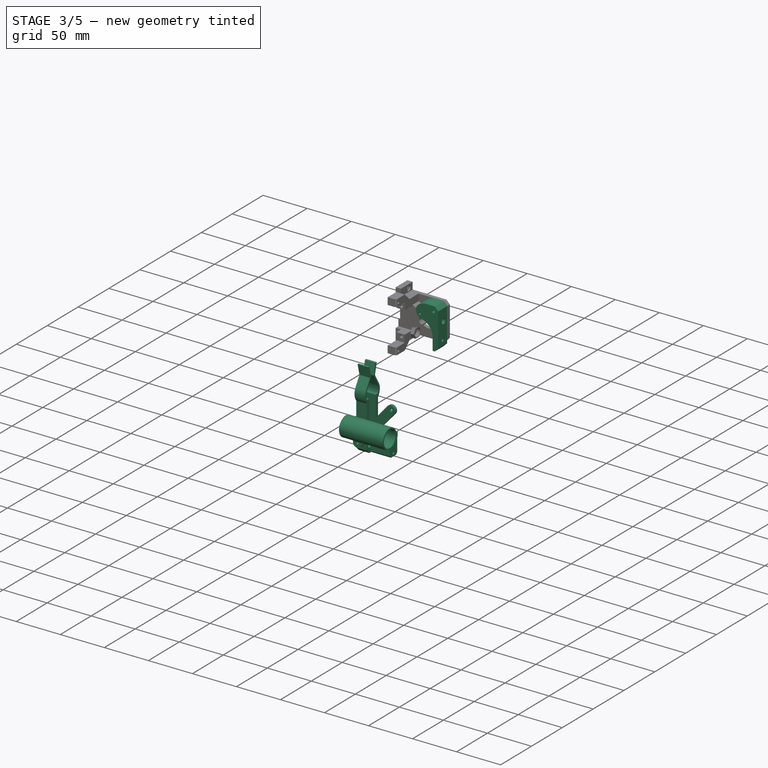
[diagram: stage 3 of 5 — iso view after this stage's code; geometry added in this stage tinted green]
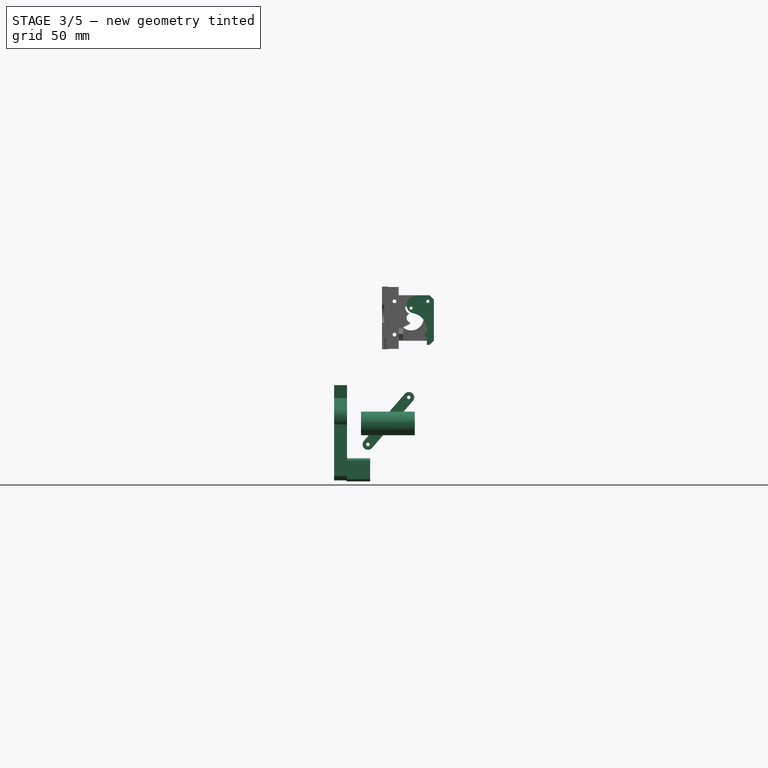
[diagram: stage 3 of 5 — front view after this stage's code; geometry added in this stage tinted green]
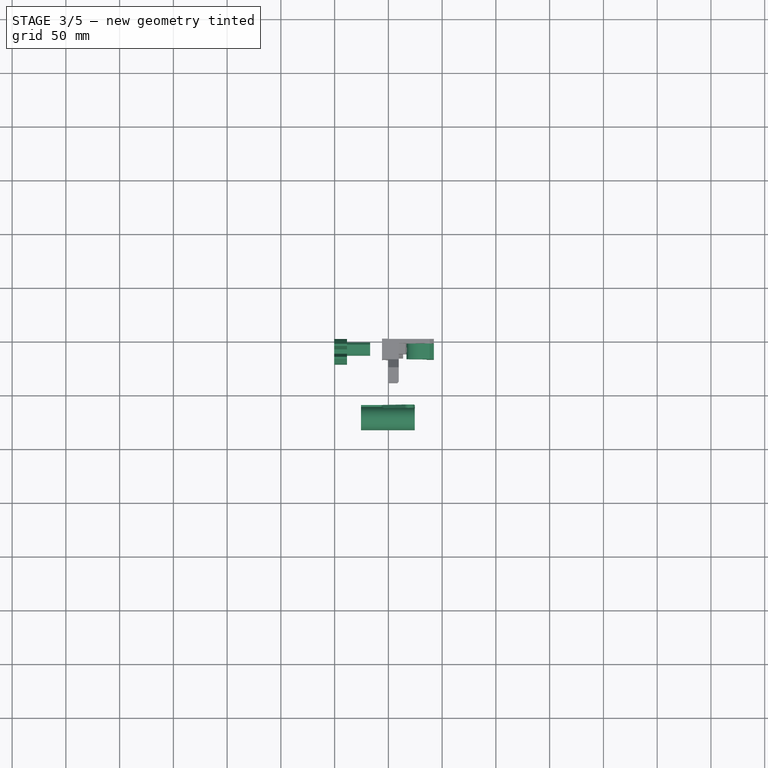
[diagram: stage 3 of 5 — top view after this stage's code; geometry added in this stage tinted green]
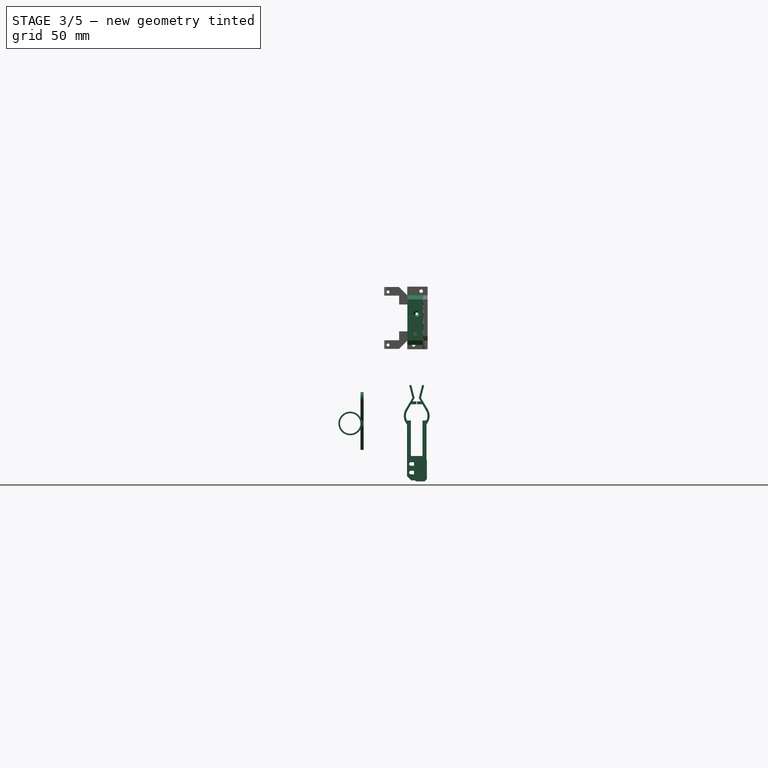
[diagram: stage 3 of 5 — right view after this stage's code; geometry added in this stage tinted green]
FEATURE [Sketcher::SketchObject] Sketch
  ExternalGeometry = -> [Extrude_Facebinder]
  Placement = pos=(0,-4,0) rot=(1,0,0;1.5708rad)
  Support = -> Extrude_Facebinder [Face15]
  sketch-geometry (16):
    g0: Circle CenterX=36.65 CenterY=36.65 CenterZ=0 NormalX=0 NormalY=0 NormalZ=1 Radius=1.75
    g1: LineSegment [constr] StartX=42.3 StartY=6.63026 StartZ=0 EndX=39.8 EndY=6.63026 EndZ=0
    g2: LineSegment [constr] StartX=39.8 StartY=6.63026 StartZ=0 EndX=39.8 EndY=-3.856 EndZ=0
    g3: LineSegment StartX=39.8 StartY=-3.856 StartZ=0 EndX=35.8 EndY=-3.856 EndZ=0
    g4: LineSegment StartX=35.8 StartY=-3.856 StartZ=0 EndX=35.8 EndY=10.1913 EndZ=0
    g5: LineSegment StartX=42.3 StartY=6.63026 StartZ=0 EndX=42.3 EndY=38.3 EndZ=0
    g6: LineSegment StartX=42.3 StartY=38.3 StartZ=0 EndX=38.3 EndY=42.3 EndZ=0
    g7: LineSegment StartX=38.3 StartY=42.3 StartZ=0 EndX=28.7139 EndY=42.3 EndZ=0
    g8: ArcOfCircle CenterX=20.1982 CenterY=10.1913 CenterZ=0 NormalX=0 NormalY=0 NormalZ=1 Radius=15.6018 StartAngle=9.43e-09 EndAngle=1.37791
    g9: Circle [constr] CenterX=21.1457 CenterY=30.2854 CenterZ=0 NormalX=0 NormalY=0 NormalZ=1 Radius=3.25
    g10: Circle [constr] CenterX=21.1457 CenterY=30.2854 CenterZ=0 NormalX=0 NormalY=0 NormalZ=1 Radius=5.2
    g11: ArcOfCircle CenterX=24.6911 CenterY=33.1947 CenterZ=0 NormalX=0 NormalY=0 NormalZ=1 Radius=7.83633 StartAngle=2.18191 EndAngle=4.5195
    g12: ArcOfCircle CenterX=28.7139 CenterY=27.4527 CenterZ=0 NormalX=0 NormalY=0 NormalZ=1 Radius=14.8473 StartAngle=1.5708 EndAngle=2.18192
    g13: Circle CenterX=21.1457 CenterY=30.2854 CenterZ=0 NormalX=0 NormalY=0 NormalZ=1 Radius=1.4
    g14: LineSegment StartX=42.3 StartY=6.63026 StartZ=0 EndX=42.3 EndY=-3.856 EndZ=0
    g15: LineSegment StartX=42.3 StartY=-3.856 StartZ=0 EndX=39.8 EndY=-3.856 EndZ=0
  constraints (42):
    c: Coincident(g0,g-3)
    c: Radius(g0) = 1.75
    c: PointOnObject(g1,g-4)
    c: Horizontal(g1)
    c: Coincident(g1,g2)
    c: Vertical(g2)
    c: Coincident(g2,g3)
    c: Horizontal(g3)
    c: Coincident(g3,g4)
    c: Vertical(g4)
    c: Coincident(g1,g5)
    c: Coincident(g5,g-4)
    c: Coincident(g5,g6)
    c: Coincident(g6,g-5)
    c: Coincident(g6,g7)
    c: PointOnObject(g7,g-5)
    c: Coincident(g8,g4)
    c: PointOnObject(g8,g-8)
    c: DistanceX(g9) = 21.1457
    c: DistanceY(g9) = 30.2854
    c: Radius(g9) = 3.25
    c: Coincident(g10,g9)
    c: Radius(g10) = 5.2
    c: PointOnObject(g8,g10)
    c: Coincident(g11,g8)
    c: Coincident(g12,g11)
    c: PointOnObject(g12,g-5)
    c: Tangent(g12,g-5)
    c: Coincident(g7,g12)
    c: Tangent(g11,g12)
    c: Tangent(g8,g11)
    c: Coincident(g13,g9)
    c: Radius(g13) = 1.4
    c: Distance(g3) = 4
    c: Tangent(g11,g9)
    c: Tangent(g4,g8)
    c: Distance(g1) = 2.5
    c: Coincident(g14,g1)
    c: Vertical(g14)
    c: Coincident(g15,g14)
    c: Coincident(g15,g2)
    c: Horizontal(g15)
FEATURE [Part::Extrusion] Extrude_Sketch  label="Sketch_Extrude"
  Base = -> Sketch
  Dir = (0,-14.4,0)
  Solid = true
FEATURE [Part::Cylinder] Cylinder003  label="Cilindro002"
  Angle = 360
  Height = 4.5
  Placement = pos=(21.1457,-7.5,30.2854) rot=(1,0,0;1.5708rad)
  Radius = 6.5
FEATURE [Part::Cut] Cut003
  Base = -> Extrude_Sketch
  Tool = -> Cylinder003
FEATURE [Part::Cylinder] Cylinder004  label="Cilindro003"
  Angle = 360
  Height = 30
  Placement = pos=(12.9957,-9.75,24.9854) rot=(0,1,0;1.5708rad)
  Radius = 1.25
FEATURE [Part::Cut] Cut004
  Base = -> Cut003
  Placement = pos=(0,-0.4,0) rot=(0,0,1;0rad)
  Tool = -> Cylinder004
FEATURE [Sketcher::SketchObject] Sketch006
  ExternalGeometry = -> [Cut004]
  Placement = pos=(35.8,-0.4,0) rot=(0.57735,-0.57735,-0.57735;2.0944rad)
  Support = -> Cut004 [Face3]
  sketch-geometry (3):
    g0: LineSegment [constr] StartX=18.4 StartY=10.1913 StartZ=0 EndX=11.2 EndY=6.19126 EndZ=0
    g1: LineSegment [constr] StartX=11.2 StartY=6.19126 StartZ=0 EndX=4 EndY=10.1913 EndZ=0
    g2: Circle CenterX=11.2 CenterY=6.19126 CenterZ=0 NormalX=0 NormalY=0 NormalZ=1 Radius=1.9
  constraints (7):
    c: Coincident(g-3,g0)
    c: Coincident(g0,g1)
    c: Coincident(g1,g-3)
    c: Equal(g0,g1)
    c: Coincident(g2,g0)
    c: Radius(g2) = 1.9
    c: Distance(g0,g-3) = 4
FEATURE [PartDesign::Pocket] Pocket003
  Length = 7
  Placement = pos=(0,-0.4,0) rot=(0,0,1;0rad)
  Sketch = -> Sketch006
  Type = 0
FEATURE [Sketcher::SketchObject] Sketch007
  ExternalGeometry = -> [Pocket003]
  Placement = pos=(42.3,-0.4,0) rot=(0.57735,0.57735,0.57735;2.0944rad)
  Support = -> Pocket003 [Face9]
  sketch-geometry (1):
    g0: Circle CenterX=-9.75 CenterY=24.9854 CenterZ=0 NormalX=0 NormalY=0 NormalZ=1 Radius=3
  constraints (2):
    c: Coincident(g0,g-3)
    c: Radius(g0) = 3
FEATURE [PartDesign::Pocket] Pocket004
  Length = 5
  Placement = pos=(0,-0.4,0) rot=(0,0,1;0rad)
  Sketch = -> Sketch007
  Type = 0
FEATURE [PartDesign::Chamfer] Chamfer
  Base = -> Pocket004 [Edge52]
  Placement = pos=(0,-0.4,0) rot=(0,0,1;0rad)
  Size = 1.6
FEATURE [PartDesign::Chamfer] Chamfer001
  Base = -> Chamfer [Edge51]
  Placement = pos=(0,-0.4,0) rot=(0,0,1;0rad)
  Size = 4
FEATURE [Sketcher::SketchObject] Sketch009
  ExternalGeometry = -> [Chamfer001]
  Placement = pos=(0,-4.4,0) rot=(0,0.707107,0.707107;3.14159rad)
  Support = -> Chamfer001 [Face1]
  sketch-geometry (1):
    g0: Circle CenterX=-36.65 CenterY=36.65 CenterZ=0 NormalX=0 NormalY=0 NormalZ=1 Radius=4.2
  constraints (2):
    c: Coincident(g0,g-3)
    c: Radius(g0) = 4.2
FEATURE [PartDesign::Pocket] Pocket005
  Length = 5.1
  Placement = pos=(0,-0.4,0) rot=(0,0,1;0rad)
  Sketch = -> Sketch009
  Type = 0
FEATURE [Sketcher::SketchObject] Sketch010
  ExternalGeometry = -> [Pocket005]
  Placement = pos=(0,-4.4,0) rot=(0,0.707107,0.707107;3.14159rad)
  Support = -> Pocket005 [Face1]
  sketch-geometry (7):
    g0: LineSegment StartX=-22.7767 StartY=33.1104 StartZ=0 EndX=-24.4077 EndY=30.2854 EndZ=0
    g1: LineSegment StartX=-24.4077 StartY=30.2854 StartZ=0 EndX=-22.7767 EndY=27.4604 EndZ=0
    g2: LineSegment StartX=-22.7767 StartY=27.4604 StartZ=0 EndX=-19.5146 EndY=27.4604 EndZ=0
    g3: LineSegment StartX=-19.5146 StartY=27.4604 StartZ=0 EndX=-17.8836 EndY=30.2854 EndZ=0
    g4: LineSegment StartX=-17.8836 StartY=30.2854 StartZ=0 EndX=-19.5146 EndY=33.1104 EndZ=0
    g5: LineSegment StartX=-19.5146 StartY=33.1104 StartZ=0 EndX=-22.7767 EndY=33.1104 EndZ=0
    g6: Circle [constr] CenterX=-21.1457 CenterY=30.2854 CenterZ=0 NormalX=0 NormalY=0 NormalZ=1 Radius=3.26203
  constraints (16):
    c: Coincident(g0,g1)
    c: Coincident(g1,g2)
    c: Coincident(g2,g3)
    c: Coincident(g3,g4)
    c: Coincident(g4,g5)
    c: Coincident(g5,g0)
    c: Equal(g0, g1-g5) x5
    c: PointOnObject(g0,g6)
    c: PointOnObject(g1,g6)
    c: PointOnObject(g2,g6)
    c: PointOnObject(g3,g6)
    c: PointOnObject(g4,g6)
    c: PointOnObject(g5,g6)
    c: Coincident(g6,g-3)
    c: Horizontal(g5)
    c: Distance(g2,g4) = 5.65
FEATURE [PartDesign::Pocket] Pocket006
  Length = 2.8
  Placement = pos=(0,-0.4,0) rot=(0,0,1;0rad)
  Sketch = -> Sketch010
  Type = 0
FEATURE [Part::Cylinder] Cylinder011  label="Cilindro009"
  Angle = 360
  Height = 11
  Placement = pos=(-55,-10.15,24.9854) rot=(0,1,0;1.5708rad)
  Radius = 9
FEATURE [Sketcher::SketchObject] Sketch013
  ExternalGeometry = -> [Pocket008]
  Placement = pos=(0,-4,0) rot=(1,0,0;1.5708rad)
  Support = -> Pocket008 [Face20]
  sketch-geometry (1):
    g0: Circle CenterX=36.65 CenterY=5.65 CenterZ=0 NormalX=0 NormalY=0 NormalZ=1 Radius=3
  constraints (2):
    c: Coincident(g0,g-3)
    c: Radius(g0) = 3
FEATURE [Part::Extrusion] Extrude_Sketch013  label="Sketch013_Extrude"
  Base = -> Sketch013
  Dir = (0,-2.5,0)
  Solid = true
FEATURE [Part::Cylinder] Cylinder012  label="Cilindro010"
  Angle = 360
  Height = 38
  Placement = pos=(-32,-10.15,24.9854) rot=(0,-1,0;1.5708rad)
  Radius = 3
FEATURE [Part::MultiFuse] Fusion002002
  Shapes = -> [Fusion002001,Cylinder012]
FEATURE [Part::Compound] Compound006
  Links = -> [Fusion002002,Cylinder011]
  Placement = pos=(40,0,0) rot=(0,0,1;0rad)
FEATURE [Part::FeaturePython] Clone033  label="orig"  # WARN: FeaturePython — macro-defined, semantics opaque (R4)
  Placement = pos=(-1,-59.5,19) rot=(-0.57735,-0.57735,-0.57735;2.0944rad)
  Scale = (1,1,1)
FEATURE [Sketcher::SketchObject] Sketch043
  ExternalGeometry = -> [Clone033]
  Placement = pos=(-1,-59.5,19) rot=(0.57735,-0.57735,0.57735;2.0944rad)
  Support = -> Clone033 [Face14]
  sketch-geometry (7):
    g0: LineSegment [constr] StartX=-20.5 StartY=18.0219 StartZ=0 EndX=23.2988 EndY=-20 EndZ=0
    g1: Circle CenterX=23.2988 CenterY=-20 CenterZ=0 NormalX=0 NormalY=0 NormalZ=1 Radius=2.5
    g2: ArcOfCircle CenterX=23.2988 CenterY=-20 CenterZ=0 NormalX=0 NormalY=0 NormalZ=1 Radius=3.75 StartAngle=3.94679 EndAngle=7.08838
    g3: LineSegment StartX=25.8974 StartY=-17.2964 StartZ=0 EndX=23.1315 EndY=-14.6378 EndZ=0
    g4: LineSegment StartX=20.7002 StartY=-22.7036 StartZ=0 EndX=17.9342 EndY=-20.0451 EndZ=0
    g5: LineSegment [constr] StartX=25.8974 StartY=-17.2964 StartZ=0 EndX=20.7002 EndY=-22.7036 EndZ=0
    g6: LineSegment StartX=23.1315 StartY=-14.6378 StartZ=0 EndX=17.9342 EndY=-20.0451 EndZ=0
  constraints (19):
    c: Coincident(g0,g-4)
    c: Coincident(g1,g0)
    c: Coincident(g2,g0)
    c: Coincident(g3,g2)
    c: PointOnObject(g3,g-5)
    c: Coincident(g4,g2)
    c: PointOnObject(g4,g-5)
    c: Coincident(g5,g2)
    c: Coincident(g5,g2)
    c: Coincident(g6,g3)
    c: Coincident(g6,g4)
    c: Equal(g4,g3)
    c: Parallel(g4,g3)
    c: Perpendicular(g3,g5)
    c: PointOnObject(g0,g5)
    c: Equal(g-3,g2)
    c: Equal(g1,g-4)
    c: Distance(g0) = 58
    c: DistanceY(g0,g-9) = 45
FEATURE [PartDesign::Pad] Pad012
  Length = 15
  Length2 = 100
  Placement = pos=(-1,-59.5,19) rot=(0.57735,0.57735,0.57735;4.18879rad)
  Reversed = true
  Sketch = -> Sketch043
  Type = 0
FEATURE [PartDesign::Chamfer] Chamfer007
  Base = -> Cut013 [Edge164,Edge135]
  Size = 1.5
FEATURE [App::DocumentObjectGroup] Grupo009  label="VentiCapa"
  Group = -> [Sketch041,Extrude_Sketch041,Revolution,Pad013,Pocket024,Chamfer005,Pocket025,Pocket026,Pocket027,Chamfer006,Sketch049,Chamfer008,Grupo010,Fusion002005]
FEATURE [PartDesign::Pocket] Pocket035
  Length = 1
  Type = 0
FEATURE [Part::FeaturePython] Clone053  label="Clone of SIRIUS_lite_remake041"  # WARN: FeaturePython — macro-defined, semantics opaque (R4)
  Placement = pos=(0,-8,0) rot=(0,0,1;0rad)
  Scale = (1,1,1)
FEATURE [Part::Compound] Compound001007
  Links = -> [Pocket035,Clone053]
  Placement = pos=(-252.615,46.2469,130.047) rot=(0,1,0;1.5708rad)
FEATURE [App::DocumentObjectGroup] Grupo006  label="carro2"
  Group = -> [Clone021,Sketch034,Sketch054,Cut018]
FEATURE [App::DocumentObjectGroup] Grupo004  label="Carros"
  Group = -> [Cut007,Pocket011,Chamfer003,Pocket021,Pocket022,Pad006,Pad007,Grupo005,Grupo006,Grupo007,Grupo008,Grupo009]
FEATURE [Part::Cut] Cut019
  Base = -> Chamfer007
  Tool = -> Clone034006
FEATURE [Part::FeaturePython] Clone034016  label="Clone of Pad012"  # Draft clone (typed FeaturePython)
  Objects = -> [Pad012]
  Placement = pos=(-1,-59.5,-76) rot=(0.57735,0.57735,0.57735;4.18879rad)
  Scale = (1,1,1)
FEATURE [Part::FeaturePython] Clone034021  label="Clone of Compound006"  # Draft clone (typed FeaturePython)
  Objects = -> [Compound006]
  Placement = pos=(40,0,-95) rot=(0,0,1;0rad)
  Scale = (1,1,1)
FEATURE [App::DocumentObjectGroup] Grupo023  label="balancin2"
  Group = -> [Cut025,Common005]
FEATURE [Part::Feature] Compound006029  label="SondaCapacitiva001"
  Placement = pos=(21.512,-66,-65) rot=(0.57735,0.57735,-0.57735;2.0944rad)
  shape: bbox 101 x 18 x 18 mm, 13 faces, 5 solids (baked)
FEATURE [Sketcher::SketchObject] Sketch056
  ExternalGeometry = -> [Clone034016]
  Placement = pos=(-1,-59.5,-76) rot=(0.57735,-0.57735,0.57735;2.0944rad)
  Support = -> Clone034016 [Face18]
  sketch-geometry (18):
    g0: ArcOfCircle CenterX=-20.5 CenterY=18.0219 CenterZ=0 NormalX=0 NormalY=0 NormalZ=1 Radius=5 StartAngle=0.904009 EndAngle=3.99763
    g1: ArcOfCircle CenterX=23.2988 CenterY=-20 CenterZ=0 NormalX=0 NormalY=0 NormalZ=1 Radius=5 StartAngle=3.99748 EndAngle=7.23148
    g2: LineSegment StartX=20.0211 StartY=-23.7758 StartZ=0 EndX=1.7593 EndY=-7.92266 EndZ=0
    g3: LineSegment StartX=1.7593 StartY=-7.92266 StartZ=0 EndX=1.7593 EndY=-25.6647 EndZ=0
    g4: LineSegment StartX=1.7593 StartY=-25.6647 StartZ=0 EndX=-3.2407 EndY=-25.6647 EndZ=0
    g5: LineSegment StartX=-3.2407 StartY=-25.6647 StartZ=0 EndX=-3.2407 EndY=-3.58214 EndZ=0
    g6: LineSegment StartX=-3.2407 StartY=-3.58214 StartZ=0 EndX=-23.7772 EndY=14.2456 EndZ=0
    g7: LineSegment StartX=-17.4077 StartY=21.951 StartZ=0 EndX=-3.2407 EndY=9.64588 EndZ=0
    g8: LineSegment StartX=-3.2407 StartY=9.64588 StartZ=0 EndX=-3.2407 EndY=24.4736 EndZ=0
    g9: LineSegment StartX=-3.2407 StartY=24.4736 StartZ=0 EndX=1.7593 EndY=24.4736 EndZ=0
    g10: LineSegment StartX=1.7593 StartY=24.4736 StartZ=0 EndX=1.7593 EndY=5.303 EndZ=0
    g11: LineSegment StartX=1.7593 StartY=5.303 StartZ=0 EndX=26.2142 EndY=-15.9379 EndZ=0
    g12: LineSegment [constr] StartX=-3.2407 StartY=9.64588 StartZ=0 EndX=1.7593 EndY=5.303 EndZ=0
    g13: LineSegment [constr] StartX=-3.2407 StartY=-3.58214 StartZ=0 EndX=1.7593 EndY=-7.92266 EndZ=0
    g14: LineSegment [constr] StartX=-3.2407 StartY=9.64588 StartZ=0 EndX=-3.2407 EndY=-3.58214 EndZ=0
    g15: LineSegment [constr] StartX=1.7593 StartY=5.303 StartZ=0 EndX=1.7593 EndY=-7.92266 EndZ=0
    g16: Circle CenterX=-20.5 CenterY=18.0219 CenterZ=0 NormalX=0 NormalY=0 NormalZ=1 Radius=1.6
    g17: Circle CenterX=23.2988 CenterY=-20 CenterZ=0 NormalX=0 NormalY=0 NormalZ=1 Radius=1.6
  constraints (41):
    c: Coincident(g0,g-3)
    c: Coincident(g1,g-4)
    c: Tangent(g1,g2) = 1.5708
    c: Coincident(g2,g3)
    c: Vertical(g3)
    c: Coincident(g3,g4)
    c: Horizontal(g4)
    c: Coincident(g4,g5)
    c: Vertical(g5)
    c: Coincident(g5,g6)
    c: Coincident(g6,g0)
    c: Coincident(g0,g7)
    c: Coincident(g7,g8)
    c: Vertical(g8)
    c: Coincident(g8,g9)
    c: Horizontal(g9)
    c: Coincident(g9,g10)
    c: Vertical(g10)
    c: Coincident(g10,g11)
    c: Coincident(g11,g1)
    c: Coincident(g12,g10)
    c: Coincident(g13,g5)
    c: Coincident(g13,g2)
    c: Coincident(g7,g12)
    c: Coincident(g14,g7)
    c: Coincident(g14,g5)
    c: Coincident(g15,g10)
    c: Coincident(g15,g2)
    c: Vertical(g15)
    c: Vertical(g14)
    c: Parallel(g7,g12)
    c: Parallel(g12,g11)
    c: Parallel(g6,g13)
    c: Parallel(g13,g2)
    c: Equal(g0,g1)
    c: Radius(g1) = 5
    c: Distance(g4) = 5
    c: Coincident(g16,g0)
    c: Coincident(g1,g17)
    c: Radius(g16) = 1.6
    c: Equal(g16,g17)
FEATURE [Part::Extrusion] Extrude_Sketch056  label="Sketch056_Extrude"
  Base = -> Sketch056
  Dir = (0,-3,0)
  Solid = true
FEATURE [Sketcher::SketchObject] Sketch057
  ExternalGeometry = -> [Compound006029]
  Placement = pos=(27.512,-66,-65) rot=(0.707107,0,0.707107;3.14159rad)
  Support = -> Compound006029 [Face6]
  sketch-geometry (2):
    g0: Circle CenterX=-12 CenterY=6 CenterZ=0 NormalX=0 NormalY=0 NormalZ=1 Radius=9.5
    g1: Circle CenterX=-12 CenterY=6 CenterZ=0 NormalX=0 NormalY=0 NormalZ=1 Radius=11
  constraints (4):
    c: Coincident(g0,g-3)
    c: Coincident(g1,g0)
    c: Radius(g0) = 9.5
    c: Radius(g1) = 11
FEATURE [Part::Extrusion] Extrude_Sketch057  label="Sketch057_Extrude"
  Base = -> Sketch057
  Dir = (-50,0,0)
  Placement = pos=(-3,0,0) rot=(0,0,1;0rad)
  Solid = true
FEATURE [Part::MultiFuse] Fusion002006
  Shapes = -> [Extrude_Sketch056,Extrude_Sketch057]
FEATURE [App::DocumentObjectGroup] Grupo024  label="SoporteCapacitivo"
  Group = -> [Compound006029,Sketch057,Fusion002006]
FEATURE [App::DocumentObjectGroup] Grupo025
FEATURE [App::DocumentObjectGroup] Grupo015  label="DualColor"
  Group = -> [Grupo016,Grupo017,Grupo018,Grupo020,Grupo021,Grupo022,Grupo023,Grupo025]
FEATURE [Sketcher::SketchObject] Sketch058
  ExternalGeometry = -> [Compound001007]
  Placement = pos=(-16.9996,46.2469,130.047) rot=(-0.707107,0,0.707107;3.14159rad)
  Support = -> Compound001007 [Face136]
  sketch-geometry (8):
    g0: LineSegment StartX=260.904 StartY=58.9529 StartZ=0 EndX=239.404 EndY=58.9529 EndZ=0
    g1: LineSegment StartX=239.404 StartY=58.9529 StartZ=0 EndX=239.404 EndY=46.9529 EndZ=0
    g2: LineSegment StartX=239.404 StartY=46.9529 StartZ=0 EndX=260.904 EndY=46.9529 EndZ=0
    g3: LineSegment StartX=260.904 StartY=46.9529 StartZ=0 EndX=260.904 EndY=58.9529 EndZ=0
    g4: LineSegment [constr] StartX=260.904 StartY=58.9529 StartZ=0 EndX=261.404 EndY=59.2029 EndZ=0
    g5: LineSegment [constr] StartX=261.404 StartY=46.7029 StartZ=0 EndX=260.904 EndY=46.9529 EndZ=0
    g6: Circle CenterX=248.404 CenterY=52.9029 CenterZ=0 NormalX=0 NormalY=0 NormalZ=1 Radius=1.6
    g7: Circle CenterX=257.404 CenterY=52.9029 CenterZ=0 NormalX=0 NormalY=0 NormalZ=1 Radius=1.6
  constraints (20):
    c: Coincident(g0,g1)
    c: Coincident(g1,g2)
    c: Coincident(g2,g3)
    c: Coincident(g3,g0)
    c: Horizontal(g0)
    c: Horizontal(g2)
    c: Vertical(g1)
    c: Vertical(g3)
    c: PointOnObject(g1,g-8)
    c: Distance(g0) = 21.5
    c: Coincident(g4,g0)
    c: Coincident(g4,g-7)
    c: Coincident(g5,g-7)
    c: Coincident(g5,g2)
    c: Equal(g5,g4)
    c: Distance(g3) = 12
    c: Coincident(g6,g-3)
    c: Coincident(g7,g-4)
    c: Radius(g6) = 1.6
    c: Equal(g6,g7)
FEATURE [Part::Extrusion] Extrude_Sketch058  label="Sketch058_Extrude"
  Base = -> Sketch058
  Dir = (-22,0,0)
  Solid = true
FEATURE [Sketcher::SketchObject] Sketch059
  Placement = pos=(-38.4998,0,-95) rot=(-0.57735,0.57735,0.57735;4.18879rad)
  Support = -> Clone034021 [Face21]
  sketch-geometry (41):
    g0: LineSegment [constr] StartX=7.69755 StartY=27.4498 StartZ=0 EndX=6.83722 EndY=24.0942 EndZ=0
    g1: LineSegment [constr] StartX=6.83722 StartY=24.0942 StartZ=0 EndX=9.31307 EndY=21.6714 EndZ=0
    g2: LineSegment [constr] StartX=9.31307 StartY=21.6714 StartZ=0 EndX=12.6492 EndY=22.6041 EndZ=0
    g3: LineSegment [constr] StartX=12.6492 StartY=22.6041 StartZ=0 EndX=13.5096 EndY=25.9596 EndZ=0
    g4: LineSegment [constr] StartX=13.5096 StartY=25.9596 StartZ=0 EndX=11.0337 EndY=28.3825 EndZ=0
    g5: LineSegment [constr] StartX=11.0337 StartY=28.3825 StartZ=0 EndX=7.69755 EndY=27.4498 EndZ=0
    g6: Circle [constr] CenterX=10.1734 CenterY=25.0269 CenterZ=0 NormalX=0 NormalY=0 NormalZ=1 Radius=3.4641
    g7: ArcOfCircle CenterX=10.1734 CenterY=25.0269 CenterZ=0 NormalX=0 NormalY=0 NormalZ=1 Radius=10 StartAngle=5.84864 EndAngle=6.82218
    g8: ArcOfCircle CenterX=10.1734 CenterY=25.0269 CenterZ=0 NormalX=0 NormalY=0 NormalZ=1 Radius=10 StartAngle=2.60259 EndAngle=3.57614
    g9: ArcOfCircle CenterX=10.1734 CenterY=25.0269 CenterZ=0 NormalX=0 NormalY=0 NormalZ=1 Radius=12 StartAngle=5.56939 EndAngle=6.82218
    g10: ArcOfCircle CenterX=10.1734 CenterY=25.0269 CenterZ=0 NormalX=0 NormalY=0 NormalZ=1 Radius=12 StartAngle=2.60259 EndAngle=3.85539
    g11: LineSegment [constr] StartX=19.244 StartY=20.8169 StartZ=0 EndX=19.244 EndY=17.1705 EndZ=0
    g12: LineSegment StartX=19.244 StartY=17.1705 StartZ=0 EndX=19.244 EndY=-34.9709 EndZ=0
    g13: LineSegment StartX=19.244 StartY=-34.9709 StartZ=0 EndX=15.5975 EndY=-34.9709 EndZ=0
    g14: LineSegment StartX=15.5975 StartY=-34.9709 StartZ=0 EndX=15.5975 EndY=20.8169 EndZ=0
    g15: LineSegment StartX=15.5975 StartY=20.8169 StartZ=0 EndX=19.244 EndY=20.8169 EndZ=0
    g16: LineSegment [constr] StartX=1.10278 StartY=20.8169 StartZ=0 EndX=1.10278 EndY=17.1705 EndZ=0
    g17: LineSegment StartX=1.10278 StartY=17.1705 StartZ=0 EndX=1.10278 EndY=-34.9709 EndZ=0
    g18: LineSegment StartX=1.10278 StartY=-34.9709 StartZ=0 EndX=4.74925 EndY=-34.9709 EndZ=0
    g19: LineSegment StartX=4.74925 StartY=-34.9709 StartZ=0 EndX=4.74925 EndY=20.8169 EndZ=0
    g20: LineSegment StartX=4.74925 StartY=20.8169 StartZ=0 EndX=1.10278 EndY=20.8169 EndZ=0
    g21: LineSegment [constr] StartX=15.5975 StartY=20.8169 StartZ=0 EndX=4.74925 EndY=20.8169 EndZ=0
    g22: LineSegment [constr] StartX=15.5975 StartY=-34.9709 StartZ=0 EndX=4.74925 EndY=-34.9709 EndZ=0
    g23: LineSegment StartX=-0.12529 StartY=31.1862 StartZ=0 EndX=6.17339 EndY=41.718 EndZ=0
    g24: LineSegment StartX=6.17339 StartY=41.718 StartZ=0 EndX=3.17339 EndY=53.718 EndZ=0
    g25: LineSegment StartX=3.17339 StartY=53.718 StartZ=0 EndX=5.17339 EndY=53.718 EndZ=0
    g26: LineSegment StartX=5.17339 StartY=53.718 StartZ=0 EndX=8.17339 EndY=41.718 EndZ=0
    g27: LineSegment StartX=8.17339 StartY=41.718 StartZ=0 EndX=1.59116 EndY=30.1597 EndZ=0
    g28: LineSegment StartX=20.4721 StartY=31.1862 StartZ=0 EndX=14.1734 EndY=41.718 EndZ=0
    g29: LineSegment StartX=14.1734 StartY=41.718 StartZ=0 EndX=17.1734 EndY=53.718 EndZ=0
    g30: LineSegment StartX=17.1734 StartY=53.718 StartZ=0 EndX=15.1734 EndY=53.718 EndZ=0
    g31: LineSegment StartX=15.1734 StartY=53.718 StartZ=0 EndX=12.1734 EndY=41.718 EndZ=0
    g32: LineSegment StartX=12.1734 StartY=41.718 StartZ=0 EndX=18.7556 EndY=30.1597 EndZ=0
    g33: LineSegment [constr] StartX=6.17339 StartY=41.718 StartZ=0 EndX=8.17339 EndY=41.718 EndZ=0
    g34: LineSegment [constr] StartX=8.17339 StartY=41.718 StartZ=0 EndX=12.1734 EndY=41.718 EndZ=0
    g35: LineSegment [constr] StartX=12.1734 StartY=41.718 StartZ=0 EndX=14.1734 EndY=41.718 EndZ=0
    g36: LineSegment [constr] StartX=1.59116 StartY=30.1597 StartZ=0 EndX=18.7556 EndY=30.1597 EndZ=0
    g37: LineSegment [constr] StartX=-0.12529 StartY=31.1862 StartZ=0 EndX=20.4721 EndY=31.1862 EndZ=0
    g38: LineSegment [constr] StartX=1.59116 StartY=30.1597 StartZ=0 EndX=-0.12529 EndY=31.1862 EndZ=0
    g39: LineSegment [constr] StartX=18.7556 StartY=30.1597 StartZ=0 EndX=20.4721 EndY=31.1862 EndZ=0
    g40: LineSegment [constr] StartX=15.1734 StartY=53.718 StartZ=0 EndX=5.17339 EndY=53.718 EndZ=0
  constraints (103):
    c: Coincident(g0,g1)
    c: Coincident(g1,g2)
    c: Coincident(g2,g3)
    c: Coincident(g3,g4)
    c: Coincident(g4,g5)
    c: Coincident(g5,g0)
    c: Equal(g0, g1-g5) x5
    c: PointOnObject(g0,g6)
    c: PointOnObject(g1,g6)
    c: PointOnObject(g2,g6)
    c: PointOnObject(g3,g6)
    c: PointOnObject(g4,g6)
    c: PointOnObject(g5,g6)
    c: Distance(g4,g2) = 6
    c: Coincident(g7,g6)
    c: Coincident(g8,g6)
    c: Equal(g7,g8)
    c: Coincident(g9,g6)
    c: Coincident(g10,g6)
    c: Coincident(g7,g11)
    c: Coincident(g11,g9)
    c: Coincident(g11,g12)
    c: Vertical(g12)
    c: Coincident(g12,g13)
    c: Horizontal(g13)
    c: Coincident(g13,g14)
    c: Vertical(g14)
    c: Coincident(g14,g15)
    c: Coincident(g15,g11)
    c: Coincident(g8,g16)
    c: Coincident(g16,g10)
    c: Coincident(g16,g17)
    c: Vertical(g17)
    c: Coincident(g17,g18)
    c: Coincident(g18,g19)
    c: Vertical(g19)
    c: Coincident(g19,g20)
    c: Coincident(g20,g16)
    c: Horizontal(g15)
    c: Horizontal(g20)
    c: Vertical(g16)
    c: Vertical(g11)
    c: Coincident(g21,g14)
    c: Coincident(g21,g19)
    c: Horizontal(g21)
    c: Horizontal(g18)
    c: Coincident(g22,g13)
    c: Coincident(g18,g22)
    c: Horizontal(g22)
    c: Equal(g13,g18)
    c: Equal(g11,g15)
    c: Coincident(g10,g23)
    c: Coincident(g23,g24)
    c: Coincident(g24,g25)
    c: Horizontal(g25)
    c: Coincident(g25,g26)
    c: Coincident(g26,g27)
    c: Coincident(g27,g8)
    c: Coincident(g9,g28)
    c: Coincident(g28,g29)
    c: Coincident(g29,g30)
    c: Horizontal(g30)
    c: Coincident(g30,g31)
    c: Coincident(g31,g32)
    c: Coincident(g32,g7)
    c: Coincident(g23,g33)
    c: Coincident(g33,g26)
    c: Coincident(g33,g34)
    c: Coincident(g34,g31)
    c: Coincident(g34,g35)
    c: Coincident(g35,g28)
    c: Horizontal(g34)
    c: Horizontal(g35)
    c: Horizontal(g33)
    c: Equal(g33,g35)
    c: Coincident(g36,g8)
    c: Coincident(g36,g7)
    c: Coincident(g37,g10)
    c: Coincident(g37,g9)
    c: Coincident(g38,g8)
    c: Coincident(g38,g10)
    c: Coincident(g39,g7)
    c: Coincident(g39,g9)
    c: Horizontal(g36)
    c: Horizontal(g37)
    c: Equal(g33,g38)
    c: Equal(g38,g39)
    c: Equal(g39,g25)
    c: Equal(g25,g30)
    c: Equal(g23,g28)
    c: Equal(g27,g32)
    c: Coincident(g40,g30)
    c: Coincident(g40,g25)
    c: Horizontal(g40)
    c: Distance(g34) = 4
    c: Distance(g40) = 10
    c: Distance(g30) = 2
    c: Equal(g31,g26)
    c: Distance(g30,g35) = 12
    c: Radius(g8) = 10
    c: DistanceX(g6) = 10.1734
    c: DistanceY(g6) = 25.0269
    c: Tangent(g10,g23)
FEATURE [App::DocumentObjectGroup] Grupo019  label="extrusor2-"
  Group = -> [Clone034015,Clone034020,Clone034018,Clone034017,Clone034019,Clone034016,Clone034022,Clone034021,Clone034025,Clone034023,Clone034024,Clone034034,Sketch056,Sketch059]
FEATURE [Part::Extrusion] Extrude_Sketch059001  label="Sketch059_Extrude001"
  Base = -> Sketch059
  Dir = (-12,0,0)
  Solid = true
FEATURE [Sketcher::SketchObject] Sketch060
  ExternalGeometry = -> [Extrude_Sketch059001]
  Placement = pos=(-50.4998,0,0) rot=(-0.57735,0.57735,0.57735;4.18879rad)
  Support = -> Extrude_Sketch059001 [Face26]
  sketch-geometry (4):
    g0: LineSegment StartX=6.34935 StartY=-56.485 StartZ=0 EndX=13.9974 EndY=-56.485 EndZ=0
    g1: LineSegment StartX=13.9974 StartY=-56.485 StartZ=0 EndX=15.4937 EndY=-59.1124 EndZ=0
    g2: LineSegment StartX=15.4937 StartY=-59.1124 StartZ=0 EndX=4.85313 EndY=-59.1124 EndZ=0
    g3: LineSegment StartX=4.85313 StartY=-59.1124 StartZ=0 EndX=6.34935 EndY=-56.485 EndZ=0
  constraints (10):
    c: Horizontal(g0)
    c: PointOnObject(g1,g-5)
    c: Coincident(g1,g2)
    c: PointOnObject(g2,g-3)
    c: Horizontal(g2)
    c: Coincident(g2,g3)
    c: PointOnObject(g3,g-3)
    c: PointOnObject(g1,g-5)
    c: Coincident(g1,g0)
    c: Coincident(g3,g0)
FEATURE [PartDesign::Pad] Pad016
  Length = 1
  Length2 = 100
  Reversed = true
  Sketch = -> Sketch060
  Type = 0
FEATURE [Sketcher::SketchObject] Sketch061
  ExternalGeometry = -> [Pad016]
  Placement = pos=(0,0,-59.1124) rot=(1,0,0;3.14159rad)
  Support = -> Pad016 [Face22]
  sketch-geometry (6):
    g0: LineSegment StartX=-50.4998 StartY=10.4234 StartZ=0 EndX=-49.4998 EndY=10.4234 EndZ=0
    g1: LineSegment StartX=-49.4998 StartY=10.4234 StartZ=0 EndX=-49.4998 EndY=9.92339 EndZ=0
    g2: LineSegment StartX=-49.4998 StartY=9.92339 StartZ=0 EndX=-50.4998 EndY=9.92339 EndZ=0
    g3: LineSegment StartX=-50.4998 StartY=9.92339 StartZ=0 EndX=-50.4998 EndY=10.4234 EndZ=0
    g4: LineSegment [constr] StartX=-50.4998 StartY=10.4234 StartZ=0 EndX=-49.4998 EndY=15.4937 EndZ=0
    g5: LineSegment [constr] StartX=-50.4998 StartY=9.92339 StartZ=0 EndX=-49.4998 EndY=4.85313 EndZ=0
  constraints (16):
    c: Coincident(g0,g1)
    c: Coincident(g1,g2)
    c: Coincident(g2,g3)
    c: Coincident(g3,g0)
    c: Horizontal(g0)
    c: Horizontal(g2)
    c: Vertical(g1)
    c: Vertical(g3)
    c: PointOnObject(g0,g-3)
    c: PointOnObject(g1,g-4)
    c: Coincident(g4,g0)
    c: Coincident(g4,g-4)
    c: Coincident(g5,g2)
    c: Coincident(g5,g-4)
    c: Distance(g2,g0) = 0.5
    c: Equal(g4,g5)
FEATURE [PartDesign::Pocket] Pocket036
  Length = 0
  Sketch = -> Sketch061
  Type = 3
  UpToFace = -> Pad016 [Face24]
FEATURE [Sketcher::SketchObject] Sketch062
  ExternalGeometry = -> [Pocket036]
  Placement = pos=(-50.4998,0,0) rot=(-0.57735,0.57735,0.57735;4.18879rad)
  Support = -> Pocket036 [Face18]
  sketch-geometry (21):
    g0: LineSegment StartX=1.10278 StartY=-129.971 StartZ=0 EndX=19.244 EndY=-129.971 EndZ=0
    g1: LineSegment StartX=19.244 StartY=-129.971 StartZ=0 EndX=19.244 EndY=-107.357 EndZ=0
    g2: LineSegment StartX=1.10278 StartY=-107.357 StartZ=0 EndX=1.10278 EndY=-129.971 EndZ=0
    g3: ArcOfCircle CenterX=3.9836 CenterY=-114.664 CenterZ=0 NormalX=0 NormalY=0 NormalZ=1 Radius=1.65 StartAngle=1.5708 EndAngle=4.71239
    g4: ArcOfCircle CenterX=16.3632 CenterY=-114.664 CenterZ=0 NormalX=0 NormalY=0 NormalZ=1 Radius=1.65 StartAngle=4.71239 EndAngle=7.85398
    g5: LineSegment StartX=3.9836 StartY=-116.314 StartZ=0 EndX=16.3632 EndY=-116.314 EndZ=0
    g6: LineSegment StartX=3.9836 StartY=-113.014 StartZ=0 EndX=16.3632 EndY=-113.014 EndZ=0
    g7: ArcOfCircle CenterX=3.9836 CenterY=-122.664 CenterZ=0 NormalX=0 NormalY=0 NormalZ=1 Radius=1.65 StartAngle=1.5708 EndAngle=4.71239
    g8: ArcOfCircle CenterX=16.3632 CenterY=-122.664 CenterZ=0 NormalX=0 NormalY=0 NormalZ=1 Radius=1.65 StartAngle=4.71239 EndAngle=7.85398
    g9: LineSegment StartX=3.9836 StartY=-124.314 StartZ=0 EndX=16.3632 EndY=-124.314 EndZ=0
    g10: LineSegment StartX=3.9836 StartY=-121.014 StartZ=0 EndX=16.3632 EndY=-121.014 EndZ=0
    g11: LineSegment [constr] StartX=3.9836 StartY=-114.664 StartZ=0 EndX=3.9836 EndY=-122.664 EndZ=0
    g12: LineSegment [constr] StartX=16.3632 StartY=-122.664 StartZ=0 EndX=16.3632 EndY=-114.664 EndZ=0
    g13: LineSegment [constr] StartX=16.3632 StartY=-114.664 StartZ=0 EndX=19.244 EndY=-107.357 EndZ=0
    g14: LineSegment [constr] StartX=3.9836 StartY=-122.664 StartZ=0 EndX=1.10278 EndY=-129.971 EndZ=0
    g15: LineSegment StartX=19.244 StartY=-107.357 StartZ=0 EndX=15.5975 EndY=-107.357 EndZ=0
    g16: LineSegment StartX=15.5975 StartY=-107.357 StartZ=0 EndX=15.5975 EndY=-107.253 EndZ=0
    g17: LineSegment StartX=15.5975 StartY=-107.253 StartZ=0 EndX=4.74925 EndY=-107.253 EndZ=0
    g18: LineSegment StartX=4.74925 StartY=-107.253 StartZ=0 EndX=4.74925 EndY=-107.357 EndZ=0
    g19: LineSegment StartX=4.74925 StartY=-107.357 StartZ=0 EndX=1.10278 EndY=-107.357 EndZ=0
    g20: LineSegment [constr] StartX=4.74925 StartY=-107.357 StartZ=0 EndX=15.5975 EndY=-107.357 EndZ=0
  constraints (51):
    c: Coincident(g0,g1)
    c: Coincident(g2,g0)
    c: Horizontal(g0)
    c: Vertical(g1)
    c: Vertical(g2)
    c: Coincident(g0,g-4)
    c: PointOnObject(g1,g-3)
    c: Tangent(g3,g6) = 1.5708
    c: Tangent(g3,g5) = -1.5708
    c: Tangent(g5,g4) = -1.5708
    c: Tangent(g6,g4) = 1.5708
    c: Horizontal(g5)
    c: Equal(g3,g4)
    c: Tangent(g7,g10) = 1.5708
    c: Tangent(g7,g9) = -1.5708
    c: Tangent(g9,g8) = -1.5708
    c: Tangent(g10,g8) = 1.5708
    c: Horizontal(g9)
    c: Equal(g7,g8)
    c: Coincident(g11,g3)
    c: Coincident(g11,g7)
    c: Coincident(g12,g8)
    c: Coincident(g12,g4)
    c: Vertical(g12)
    c: Coincident(g13,g4)
    c: Coincident(g13,g1)
    c: Coincident(g14,g7)
    c: Coincident(g14,g0)
    c: Equal(g14,g13)
    c: Parallel(g14,g13)
    c: Vertical(g11)
    c: Equal(g6,g10)
    c: Equal(g3,g7)
    c: Radius(g4) = 1.65
    c: Coincident(g1,g15)
    c: Horizontal(g15)
    c: Coincident(g15,g16)
    c: Vertical(g16)
    c: Coincident(g16,g17)
    c: Horizontal(g17)
    c: Coincident(g17,g18)
    c: Vertical(g18)
    c: Coincident(g18,g19)
    c: Coincident(g19,g2)
    c: Horizontal(g19)
    c: PointOnObject(g17,g-5)
    c: PointOnObject(g16,g-6)
    c: Coincident(g20,g18)
    c: Coincident(g20,g15)
    c: Horizontal(g20)
    c: Distance(g11) = 8
FEATURE [PartDesign::Pad] Pad017
  Length = 12
  Length2 = 100
  Reversed = true
  Sketch = -> Sketch062
  Type = 0
FEATURE [Sketcher::SketchObject] Sketch064
  ExternalGeometry = -> [Extrude_Sketch058]
  Placement = pos=(-38.9996,0,0) rot=(-0.57735,0.57735,0.57735;4.18879rad)
  Support = -> Extrude_Sketch058 [Face8]
  sketch-geometry (7):
    g0: Circle CenterX=6.65603 CenterY=-118.357 CenterZ=0 NormalX=0 NormalY=0 NormalZ=1 Radius=3
    g1: Circle CenterX=6.65603 CenterY=-127.357 CenterZ=0 NormalX=0 NormalY=0 NormalZ=1 Radius=3
    g2: LineSegment [constr] StartX=10.3482 StartY=-109.357 StartZ=0 EndX=10.3482 EndY=-114.567 EndZ=0
    g3: LineSegment [constr] StartX=10.3482 StartY=-114.567 StartZ=0 EndX=10.3482 EndY=-122.567 EndZ=0
    g4: LineSegment [constr] StartX=10.3482 StartY=-122.567 StartZ=0 EndX=10.3482 EndY=-130.857 EndZ=0
    g5: Circle CenterX=10.3482 CenterY=-114.567 CenterZ=0 NormalX=0 NormalY=0 NormalZ=1 Radius=1.4
    g6: Circle CenterX=10.3482 CenterY=-122.567 CenterZ=0 NormalX=0 NormalY=0 NormalZ=1 Radius=1.4
  constraints (16):
    c: Coincident(g0,g-3)
    c: Coincident(g1,g-4)
    c: Radius(g1) = 3
    c: Equal(g1,g0)
    c: PointOnObject(g2,g-6)
    c: Vertical(g2)
    c: Coincident(g2,g3)
    c: Vertical(g3)
    c: Coincident(g3,g4)
    c: PointOnObject(g4,g-5)
    c: Vertical(g4)
    c: Coincident(g5,g2)
    c: Coincident(g6,g3)
    c: Distance(g3) = 8
    c: Radius(g5) = 1.4
    c: Equal(g5,g6)
FEATURE [PartDesign::Pocket] Pocket038
  Length = 18
  Sketch = -> Sketch064
  Type = 0
FEATURE [PartDesign::Chamfer] Chamfer009
  Base = -> Pocket038 [Edge1,Edge5]
  Size = 2
FEATURE [PartDesign::Chamfer] Chamfer010
  Base = -> Chamfer009 [Edge14,Edge3]
  Size = 2
FEATURE [Sketcher::SketchObject] Sketch065
  ExternalGeometry = -> [Pad017]
  Placement = pos=(-50.4998,0,0) rot=(-0.57735,0.57735,0.57735;4.18879rad)
  Support = -> Pad017 [Face38]
  sketch-geometry (4):
    g0: Circle CenterX=15.5975 CenterY=-114.664 CenterZ=0 NormalX=0 NormalY=0 NormalZ=1 Radius=1.65
    g1: Circle CenterX=4.74925 CenterY=-114.664 CenterZ=0 NormalX=0 NormalY=0 NormalZ=1 Radius=1.65
    g2: Circle CenterX=4.74925 CenterY=-122.664 CenterZ=0 NormalX=0 NormalY=0 NormalZ=1 Radius=1.65
    g3: Circle CenterX=15.5975 CenterY=-122.664 CenterZ=0 NormalX=0 NormalY=0 NormalZ=1 Radius=1.65
  constraints (12):
    c: PointOnObject(g0,g-6)
    c: PointOnObject(g1,g-3)
    c: PointOnObject(g2,g-4)
    c: PointOnObject(g3,g-5)
    c: PointOnObject(g-3,g1)
    c: PointOnObject(g-3,g1)
    c: PointOnObject(g-6,g0)
    c: PointOnObject(g-6,g0)
    c: PointOnObject(g-5,g3)
    c: PointOnObject(g-5,g3)
    c: PointOnObject(g-4,g2)
    c: PointOnObject(g-4,g2)
FEATURE [PartDesign::Pocket] Pocket039
  Length = 5
  Sketch = -> Sketch065
  Type = 1
FEATURE [PartDesign::Chamfer] Chamfer011
  Base = -> Pocket039 [Edge9,Edge78]
  Size = 4
FEATURE [App::DocumentObjectGroup] Grupo027
  Group = -> [Extrude_Sketch058,Pocket038,Chamfer009,Chamfer010]
FEATURE [App::DocumentObjectGroup] Grupo028
  Group = -> [Extrude_Sketch059001,Pad016,Pocket036,Pad017,Pocket039,Chamfer011]
FEATURE [App::DocumentObjectGroup] Grupo026  label="Limpiador"
  Group = -> [Grupo027,Grupo028]
FEATURE [Sketcher::SketchObject] Sketch066
  ExternalGeometry = -> [Cut019]
  Placement = pos=(0,-26.5,0) rot=(1,0,0;1.5708rad)
  Support = -> Cut019 [Face9]
  sketch-geometry (2):
    g0: Circle CenterX=5.65 CenterY=36.65 CenterZ=0 NormalX=0 NormalY=0 NormalZ=1 Radius=1.75
    g1: Circle CenterX=5.65 CenterY=5.65 CenterZ=0 NormalX=0 NormalY=0 NormalZ=1 Radius=1.75
  constraints (4):
    c: Coincident(g0,g-4)
    c: Coincident(g1,g-3)
    c: Equal(g0,g1)
    c: Radius(g0) = 1.75
FEATURE [PartDesign::Pocket] Pocket040
  Length = 11
  Sketch = -> Sketch066
  Type = 1
FEATURE [App::DocumentObjectGroup] Grupo003
  Group = -> [Clone020,Pocket012,Pocket013,Pocket014,Pocket015,Pocket016,Pocket017,Pocket018,Pad005,Pocket019,Pocket020,Pad010,Cut013,Cut019,Pocket040]
FEATURE [App::DocumentObjectGroup] Grupo  label="Cuerpo"
  Group = -> [Extrude_Facebinder,Pocket001,Pad001,Pocket002,Pad002,Pocket008,Sketch013,Cut009,Cut010,Pad004,Grupo003,Grupo012]
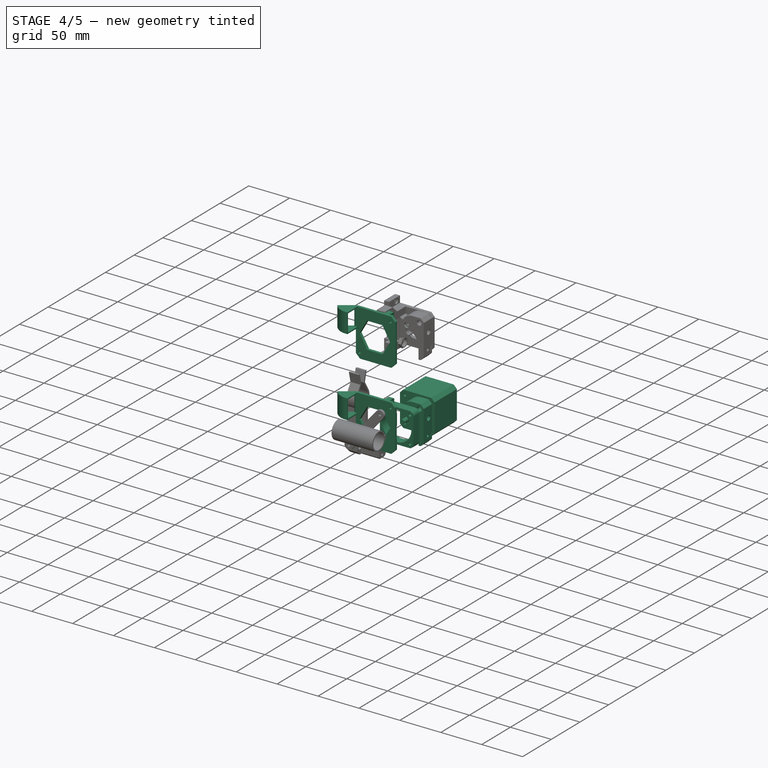
[diagram: stage 4 of 5 — iso view after this stage's code; geometry added in this stage tinted green]
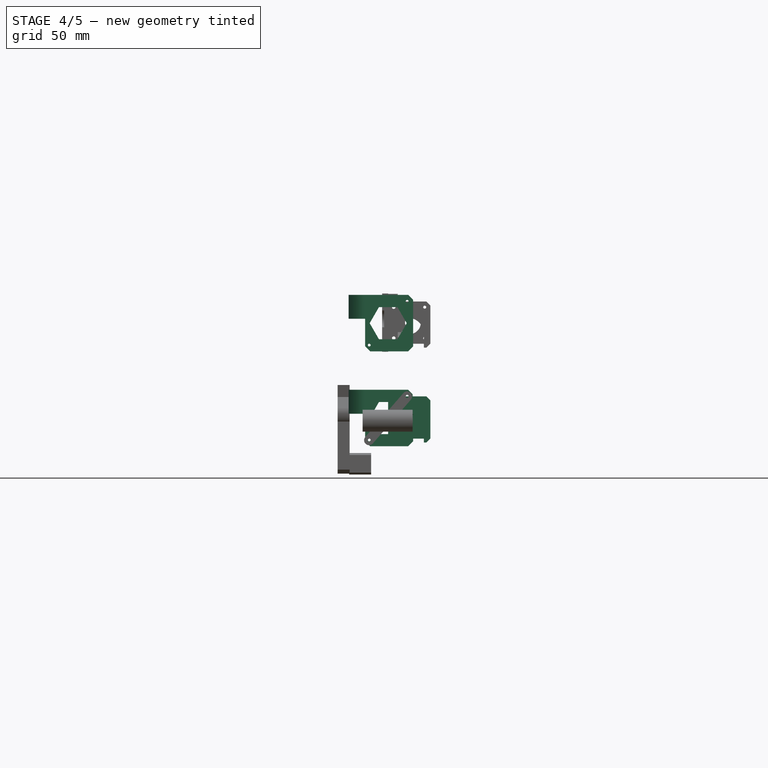
[diagram: stage 4 of 5 — front view after this stage's code; geometry added in this stage tinted green]
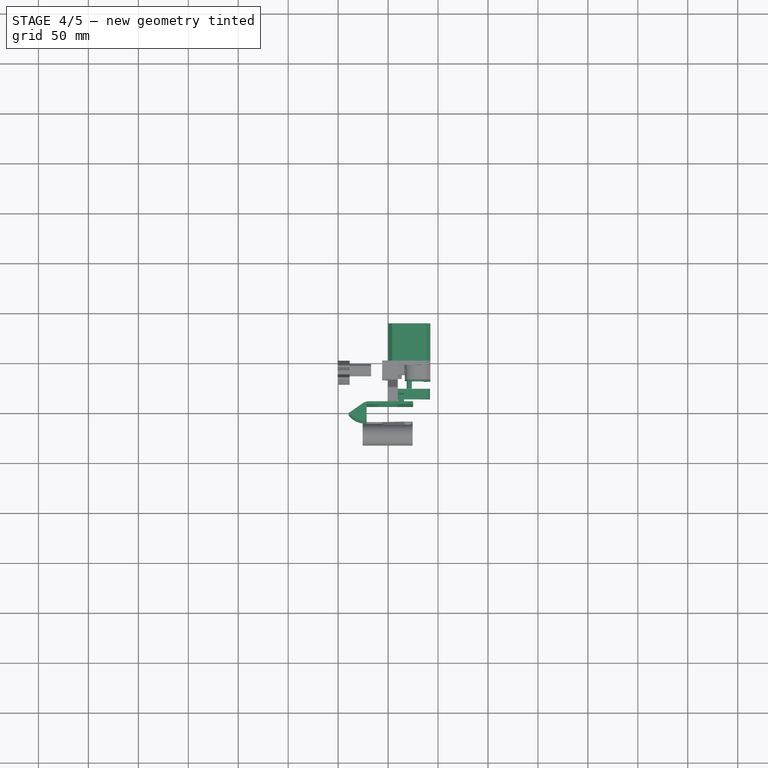
[diagram: stage 4 of 5 — top view after this stage's code; geometry added in this stage tinted green]
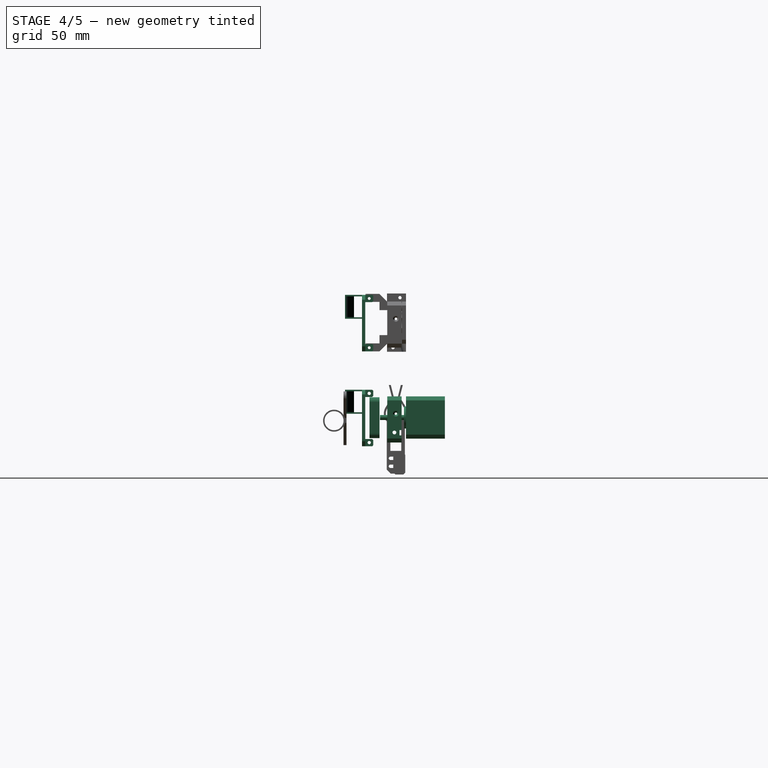
[diagram: stage 4 of 5 — right view after this stage's code; geometry added in this stage tinted green]
FEATURE [Sketcher::SketchObject] Sketch011
  ExternalGeometry = -> [Pocket006]
  Placement = pos=(0,-18.8,0) rot=(1,0,0;1.5708rad)
  Support = -> Pocket006 [Face18]
  sketch-geometry (1):
    g0: Circle CenterX=21.1457 CenterY=30.2854 CenterZ=0 NormalX=0 NormalY=0 NormalZ=1 Radius=2.9
  constraints (2):
    c: Coincident(g0,g-3)
    c: Radius(g0) = 2.9
FEATURE [PartDesign::Pocket] Pocket007
  Length = 2.5
  Placement = pos=(0,-0.4,0) rot=(0,0,1;0rad)
  Sketch = -> Sketch011
  Type = 0
FEATURE [Part::Cut] Cut008
  Base = -> Pocket007
  Tool = -> Extrude_Sketch013
FEATURE [Sketcher::SketchObject] Sketch014
  ExternalGeometry = -> [Cut008]
  Placement = pos=(0,-4.4,0) rot=(0,0.707107,0.707107;3.14159rad)
  Support = -> Cut008 [Face1]
  sketch-geometry (6):
    g0: ArcOfCircle CenterX=-36.65 CenterY=36.65 CenterZ=0 NormalX=0 NormalY=0 NormalZ=1 Radius=28 StartAngle=4.57521 EndAngle=4.76506
    g1: ArcOfCircle CenterX=-36.65 CenterY=36.65 CenterZ=0 NormalX=0 NormalY=0 NormalZ=1 Radius=34 StartAngle=4.57521 EndAngle=4.75576
    g2: ArcOfCircle CenterX=-40.8891 CenterY=5.94121 CenterZ=0 NormalX=0 NormalY=0 NormalZ=1 Radius=3 StartAngle=1.43362 EndAngle=4.57521
    g3: ArcOfCircle [constr] CenterX=-36.65 CenterY=36.65 CenterZ=0 NormalX=0 NormalY=0 NormalZ=1 Radius=31 StartAngle=4.57521 EndAngle=4.71239
    g4: LineSegment [constr] StartX=-40.4789 StartY=8.91303 StartZ=0 EndX=-41.2993 EndY=2.96939 EndZ=0
    g5: LineSegment StartX=-35.1759 StartY=8.68883 StartZ=0 EndX=-35.1759 EndY=2.68197 EndZ=0
  constraints (15):
    c: Coincident(g0,g-3)
    c: Coincident(g1,g0)
    c: Coincident(g2,g0)
    c: Coincident(g2,g1)
    c: Coincident(g3,g0)
    c: Coincident(g3,g-5)
    c: Coincident(g2,g3)
    c: Coincident(g4,g0)
    c: PointOnObject(g2,g4)
    c: Coincident(g1,g4)
    c: Tangent(g-4,g0)
    c: Tangent(g1,g-5)
    c: Coincident(g5,g0)
    c: Coincident(g5,g1)
    c: Vertical(g5)
FEATURE [PartDesign::Pocket] Pocket009
  Length = 2.1
  Sketch = -> Sketch014
  Type = 0
FEATURE [Sketcher::SketchObject] Sketch039
  ExternalGeometry = -> [Pocket009]
  Placement = pos=(0,-18.8,0) rot=(1,0,0;1.5708rad)
  Support = -> Pocket009 [Face7]
  sketch-geometry (1):
    g0: Circle CenterX=36.65 CenterY=36.65 CenterZ=0 NormalX=0 NormalY=0 NormalZ=1 Radius=2.9
  constraints (2):
    c: Coincident(g0,g-3)
    c: Radius(g0) = 2.9
FEATURE [PartDesign::Pocket] Pocket023
  Length = 6
  Sketch = -> Sketch039
  Type = 0
FEATURE [PartDesign::Chamfer] Chamfer008
  Base = -> Chamfer006 [Edge30,Edge26]
  Size = 1
FEATURE [Sketcher::SketchObject] Sketch050
  ExternalGeometry = -> [Chamfer008]
  Placement = pos=(0,-44,0) rot=(1,0,0;1.5708rad)
  Support = -> Chamfer008 [Face11]
  sketch-geometry (11):
    g0: Circle CenterX=19.0753 CenterY=42.5461 CenterZ=0 NormalX=0 NormalY=0 NormalZ=1 Radius=1.4
    g1: Circle CenterX=-18.8628 CenterY=-1.32536 CenterZ=0 NormalX=0 NormalY=0 NormalZ=1 Radius=1.4
    g2: LineSegment [constr] StartX=-18.8628 StartY=-1.32536 StartZ=0 EndX=0.106266 EndY=20.6104 EndZ=0
    g3: LineSegment [constr] StartX=0.106266 StartY=20.6104 StartZ=0 EndX=19.0753 EndY=42.5461 EndZ=0
    g4: LineSegment StartX=9.37937 StartY=36.6718 StartZ=0 EndX=-9.16684 EndY=36.6718 EndZ=0
    g5: LineSegment StartX=-9.16684 StartY=36.6718 StartZ=0 EndX=-18.4399 EndY=20.6104 EndZ=0
    g6: LineSegment StartX=-18.4399 StartY=20.6104 StartZ=0 EndX=-9.16684 EndY=4.54888 EndZ=0
    g7: LineSegment StartX=-9.16684 StartY=4.54888 StartZ=0 EndX=9.37937 EndY=4.54888 EndZ=0
    g8: LineSegment StartX=9.37937 StartY=4.54888 StartZ=0 EndX=18.6525 EndY=20.6104 EndZ=0
    g9: LineSegment StartX=18.6525 StartY=20.6104 StartZ=0 EndX=9.37937 EndY=36.6718 EndZ=0
    g10: Circle [constr] CenterX=0.106266 CenterY=20.6104 CenterZ=0 NormalX=0 NormalY=0 NormalZ=1 Radius=18.5462
  constraints (25):
    c: Radius(g1) = 1.4
    c: Equal(g1,g0)
    c: Coincident(g2,g1)
    c: Coincident(g3,g2)
    c: Coincident(g3,g0)
    c: Equal(g2,g3)
    c: Parallel(g3,g2)
    c: Coincident(g4,g5)
    c: Coincident(g5,g6)
    c: Coincident(g6,g7)
    c: Coincident(g7,g8)
    c: Coincident(g8,g9)
    c: Coincident(g9,g4)
    c: Equal(g4, g5-g9) x5
    c: PointOnObject(g4,g10)
    c: PointOnObject(g5,g10)
    c: PointOnObject(g6,g10)
    c: PointOnObject(g7,g10)
    c: PointOnObject(g8,g10)
    c: PointOnObject(g9,g10)
    c: Coincident(g10,g2)
    c: Horizontal(g4)
    c: Distance(g1,g0) = 58
    c: Distance(g0,g-3) = 6.45392
    c: Distance(g0,g-5) = 5.9247
FEATURE [PartDesign::Pocket] Pocket028
  Length = 5
  Sketch = -> Sketch050
  Type = 0
FEATURE [App::DocumentObjectGroup] Grupo013  label="TapaMoebyus"
  Group = -> [Clone034001,Extrude_Sketch051,Pad014,Cut017]
FEATURE [Part::FeaturePython] Facebinder002  # WARN: FeaturePython — macro-defined, semantics opaque (R4)
  Faces = -> [Pocket028]
FEATURE [Part::Extrusion] Extrude_Facebinder002  label="Facebinder002_Extrude"
  Base = -> Facebinder002
  Dir = (1.5,0,0)
  Solid = true
FEATURE [Part::MultiFuse] Fusion002005
  Shapes = -> [Extrude_Facebinder002,Pocket028]
FEATURE [Part::Extrusion] Extrude_Sketch072  label="PatronA"
  Dir = (0,0,-80)
  Placement = pos=(-260,64,193) rot=(0,1,0;1.5708rad)
  Solid = true
FEATURE [Part::Mirroring] Part__Mirroring001  label="PatronB"
  Base = (0,0,0)
  Normal = (0,1,0)
  Placement = pos=(0,-5,124) rot=(0,0,1;0rad)
  Source = -> Extrude_Sketch072
FEATURE [App::DocumentObjectGroup] Grupo018  label="Carro2"
  Group = -> [Cut021,Common001]
FEATURE [Part::FeaturePython] Clone034015  label="Clone of Fusion002005"  # Draft clone (typed FeaturePython)
  Objects = -> [Fusion002005]
  Placement = pos=(0,0,-95) rot=(0,0,1;0rad)
  Scale = (1,1,1)
FEATURE [Part::FeaturePython] Clone034024  label="Clone of ventilador40mm001"  # Draft clone (typed FeaturePython)
  Objects = -> [Pocket]
  Placement = pos=(1,-36.5,-94.5) rot=(0,0,1;0rad)
  Scale = (1,1,1)
FEATURE [Part::FeaturePython] Clone034025  label="Clone of NEMA018"  # Draft clone (typed FeaturePython)
  Objects = -> [Pad]
  Placement = pos=(0,0,-95) rot=(0,0,1;0rad)
  Scale = (1,1,1)
FEATURE [Part::FeaturePython] Clone034026  label="Clone of Fusion002006"  # Draft clone (typed FeaturePython)
  Objects = -> [Fusion002005]
  Scale = (1,1,1)
FEATURE [Part::FeaturePython] Clone034027  label="Clone of Clone of Fusion002005"  # Draft clone (typed FeaturePython)
  Objects = -> [Clone034015]
  Placement = pos=(0,0,-95) rot=(0,0,1;0rad)
  Scale = (1,1,1)
FEATURE [Part::FeaturePython] Clone034028  label="Clone of PatronB002"  # Draft clone (typed FeaturePython)
  Objects = -> [Part__Mirroring001]
  Placement = pos=(0,-5,124) rot=(0,0,1;0rad)
  Scale = (1,1,1)
FEATURE [Part::FeaturePython] Clone034029  label="Clone of PatronA002"  # Draft clone (typed FeaturePython)
  Objects = -> [Extrude_Sketch072]
  Placement = pos=(-262,64,193) rot=(0,1,0;1.5708rad)
  Scale = (1,1,1)
FEATURE [Part::FeaturePython] Clone034030  label="Clone of PatronB003"  # Draft clone (typed FeaturePython)
  Objects = -> [Part__Mirroring001]
  Placement = pos=(0,-5,124) rot=(0,0,1;0rad)
  Scale = (1,1,1)
FEATURE [Part::FeaturePython] Clone034031  label="Clone of PatronA003"  # Draft clone (typed FeaturePython)
  Objects = -> [Extrude_Sketch072]
  Placement = pos=(-260,64,193) rot=(0,1,0;1.5708rad)
  Scale = (1,1,1)
FEATURE [Part::FeaturePython] Clone034032  label="Clone of Clone of Fusion002006"  # Draft clone (typed FeaturePython)
  Objects = -> [Clone034026]
  Scale = (1,1,1)
FEATURE [Part::FeaturePython] Clone034033  label="Clone of Clone of Clone of Fusion002005"  # Draft clone (typed FeaturePython)
  Objects = -> [Clone034027]
  Placement = pos=(0,0,-95) rot=(0,0,1;0rad)
  Scale = (1,1,1)
FEATURE [Part::Cut] Cut022
  Base = -> Clone034032
  Tool = -> Clone034030
FEATURE [Part::MultiCommon] Common002
  Shapes = -> [Clone034028,Clone034026]
FEATURE [App::DocumentObjectGroup] Grupo020  label="Soporteventi1"
  Group = -> [Common002,Cut022]
FEATURE [Part::Cut] Cut023
  Base = -> Clone034033
  Tool = -> Clone034031
FEATURE [Part::MultiCommon] Common003
  Shapes = -> [Clone034029,Clone034027]
FEATURE [App::DocumentObjectGroup] Grupo021  label="SoporteVenti2"
  Group = -> [Common003,Cut023]
FEATURE [Part::FeaturePython] Clone034034  label="Clone of Pocket023"  # Draft clone (typed FeaturePython)
  Objects = -> [Pocket023]
  Placement = pos=(0,0,-95) rot=(0,0,1;0rad)
  Scale = (1,1,1)
FEATURE [Part::FeaturePython] Clone034035  label="Clone of PatronB004"  # Draft clone (typed FeaturePython)
  Objects = -> [Part__Mirroring001]
  Placement = pos=(20,-5,124) rot=(0,0,1;0rad)
  Scale = (1,1,1)
FEATURE [Part::FeaturePython] Clone034036  label="Clone of PatronA004"  # Draft clone (typed FeaturePython)
  Objects = -> [Extrude_Sketch072]
  Placement = pos=(-240,64,193) rot=(0,1,0;1.5708rad)
  Scale = (1,1,1)
FEATURE [Part::FeaturePython] Clone034037  label="Clone of PatronB005"  # Draft clone (typed FeaturePython)
  Objects = -> [Part__Mirroring001]
  Placement = pos=(20,-5,124) rot=(0,0,1;0rad)
  Scale = (1,1,1)
FEATURE [Part::FeaturePython] Clone034038  label="Clone of PatronA005"  # Draft clone (typed FeaturePython)
  Objects = -> [Extrude_Sketch072]
  Placement = pos=(-240,64,193) rot=(0,1,0;1.5708rad)
  Scale = (1,1,1)
FEATURE [Part::FeaturePython] Clone034039  label="Clone of Pocket024"  # Draft clone (typed FeaturePython)
  Objects = -> [Pocket023]
  Scale = (1,1,1)
FEATURE [Part::FeaturePython] Clone034040  label="Clone of Clone of Pocket023"  # Draft clone (typed FeaturePython)
  Objects = -> [Clone034034]
  Placement = pos=(0,0,-95) rot=(0,0,1;0rad)
  Scale = (1,1,1)
FEATURE [Part::FeaturePython] Clone034041  label="Clone of Pocket025"  # Draft clone (typed FeaturePython)
  Objects = -> [Pocket023]
  Scale = (1,1,1)
FEATURE [Part::FeaturePython] Clone034042  label="Clone of Clone of Pocket024"  # Draft clone (typed FeaturePython)
  Objects = -> [Clone034034]
  Placement = pos=(0,0,-95) rot=(0,0,1;0rad)
  Scale = (1,1,1)
FEATURE [Part::MultiCommon] Common004
  Shapes = -> [Clone034039,Clone034037]
FEATURE [Part::Cut] Cut024
  Base = -> Clone034041
  Tool = -> Clone034035
FEATURE [App::DocumentObjectGroup] Grupo022  label="balancin1"
  Group = -> [Cut024,Common004]
FEATURE [Part::Cut] Cut025
  Base = -> Clone034040
  Tool = -> Clone034038
FEATURE [Part::MultiCommon] Common005
  Shapes = -> [Clone034042,Clone034036]
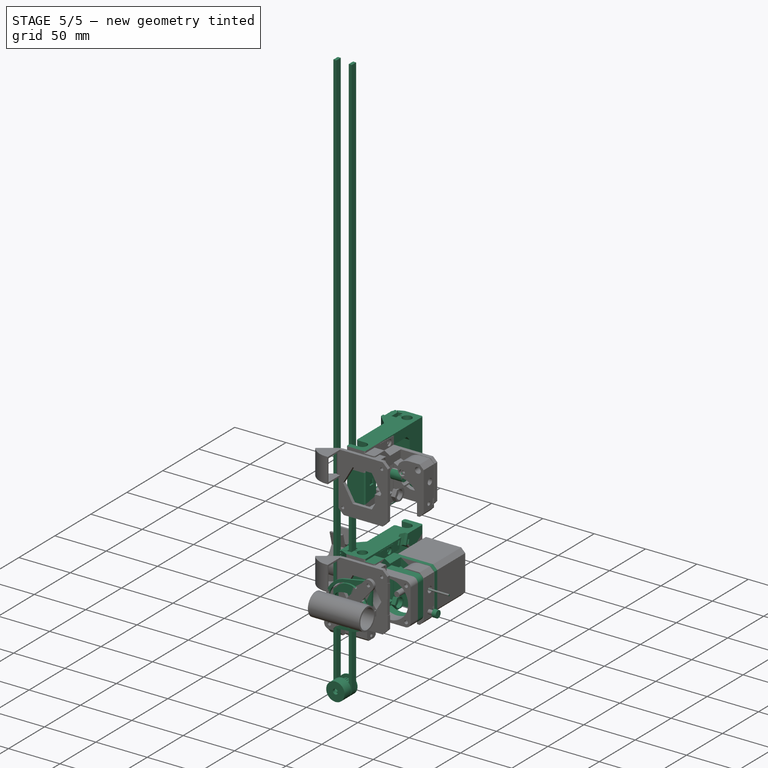
[diagram: stage 5 of 5 — iso view after this stage's code; geometry added in this stage tinted green]
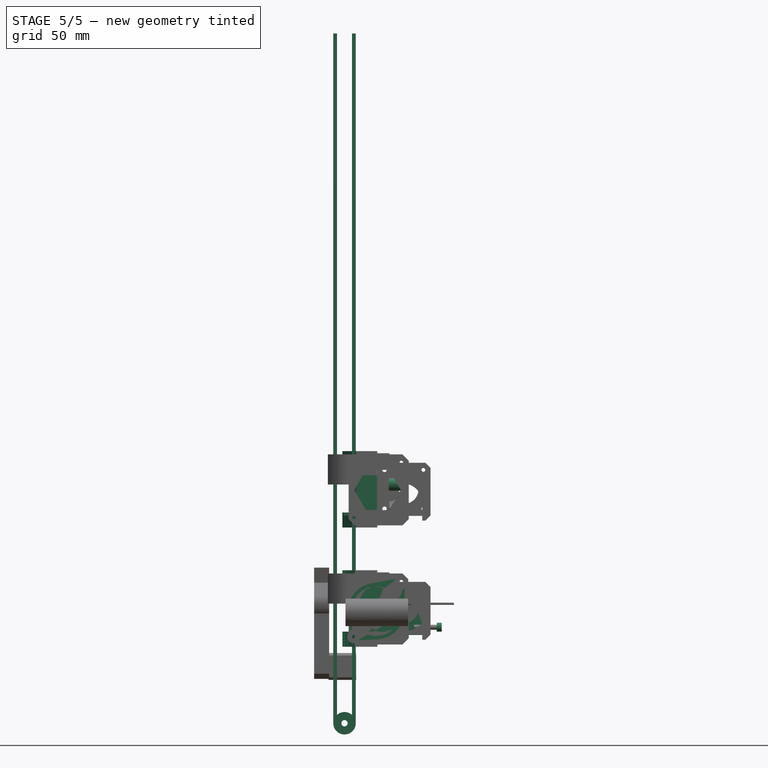
[diagram: stage 5 of 5 — front view after this stage's code; geometry added in this stage tinted green]
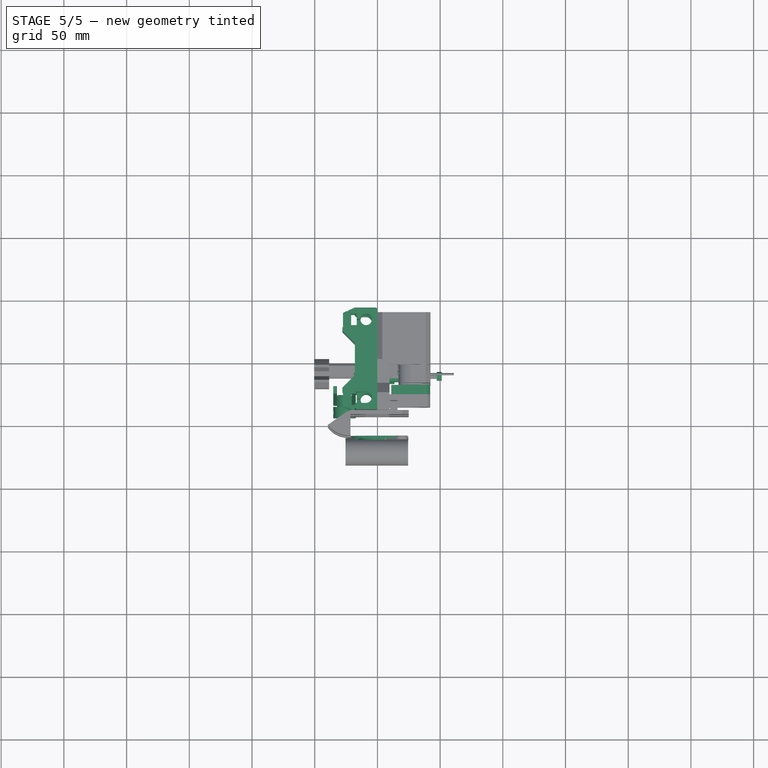
[diagram: stage 5 of 5 — top view after this stage's code; geometry added in this stage tinted green]
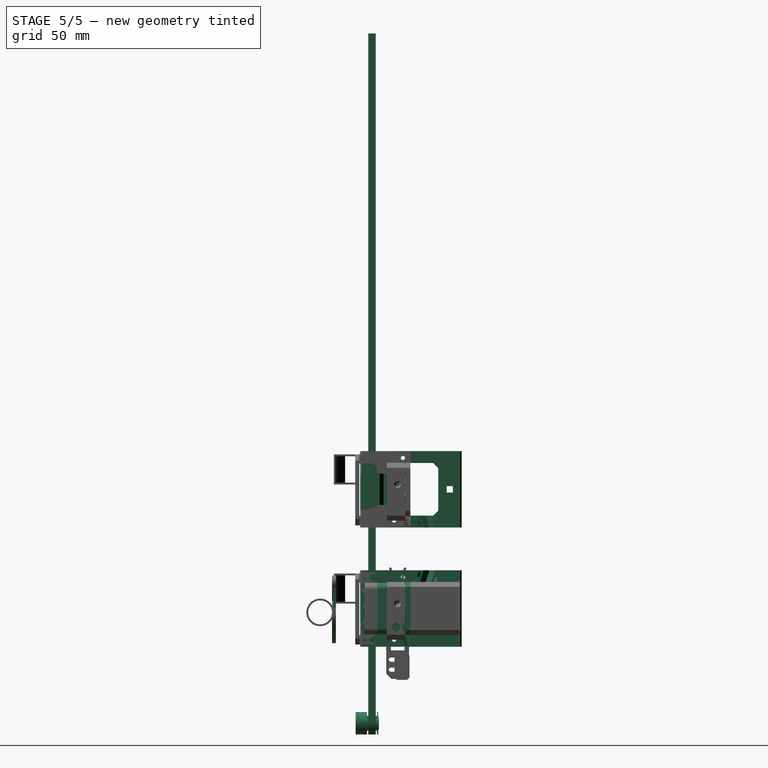
[diagram: stage 5 of 5 — right view after this stage's code; geometry added in this stage tinted green]
FEATURE [Sketcher::SketchObject] Sketch003
  ExternalGeometry = -> [Compound]
  Placement = pos=(-0.004347,-13.15,-0.014573) rot=(1,0,0;1.5708rad)
  Support = -> Compound [Face3]
  sketch-geometry (9):
    g0: ArcOfCircle CenterX=21.15 CenterY=30.3 CenterZ=0 NormalX=0 NormalY=0 NormalZ=1 Radius=5.4 StartAngle=3.93588 EndAngle=4.38347
    g1: ArcOfCircle CenterX=21.15 CenterY=21.15 CenterZ=0 NormalX=0 NormalY=0 NormalZ=1 Radius=4.4 StartAngle=1.97842 EndAngle=2.6062
    g2: LineSegment StartX=17.3657 StartY=26.4478 StartZ=0 EndX=11.9927 EndY=31.7261 EndZ=0
    g3: LineSegment StartX=11.9927 StartY=31.7261 StartZ=0 EndX=7.56119 EndY=31.7261 EndZ=0
    g4: LineSegment StartX=7.56119 StartY=31.7261 StartZ=0 EndX=7.56119 EndY=14.337 EndZ=0
    g5: LineSegment StartX=7.56119 StartY=14.337 StartZ=0 EndX=11.9927 EndY=14.337 EndZ=0
    g6: LineSegment StartX=11.9927 StartY=14.337 StartZ=0 EndX=17.3657 EndY=23.3948 EndZ=0
    g7: LineSegment [constr] StartX=17.3657 StartY=26.4478 StartZ=0 EndX=17.3657 EndY=23.3948 EndZ=0
    g8: LineSegment [constr] StartX=11.9927 StartY=31.7261 StartZ=0 EndX=11.9927 EndY=14.337 EndZ=0
  constraints (22):
    c: Coincident(g0,g-4)
    c: Coincident(g1,g-3)
    c: Coincident(g1,g0)
    c: Radius(g1) = 4.4
    c: Radius(g0) = 5.4
    c: Coincident(g0,g2)
    c: Coincident(g2,g3)
    c: Horizontal(g3)
    c: Coincident(g3,g4)
    c: Vertical(g4)
    c: Coincident(g4,g5)
    c: Horizontal(g5)
    c: Coincident(g5,g6)
    c: Coincident(g6,g1)
    c: Tangent(g6,g1)
    c: Tangent(g0,g2)
    c: Coincident(g7,g0)
    c: Coincident(g7,g1)
    c: Vertical(g7)
    c: Coincident(g8,g2)
    c: Coincident(g8,g5)
    c: Vertical(g8)
FEATURE [Part::Extrusion] Extrude_Sketch003001  label="Sketch003_Extrude001"
  Base = -> Sketch003
  Dir = (0,6,0)
  Solid = true
FEATURE [Part::Cylinder] Cylinder005  label="Cilindro004"
  Angle = 360
  Height = 11
  Placement = pos=(8.9957,-13.25,24.9854) rot=(0,1,0;1.5708rad)
  Radius = 5
FEATURE [Part::Cylinder] Cylinder006  label="Cilindro005"
  Angle = 360
  Height = 20
  Placement = pos=(-18,0,0) rot=(0,1,0;1.5708rad)
  Radius = 2
FEATURE [Part::Cylinder] Cylinder007  label="Cilindro006"
  Angle = 360
  Height = 4
  Placement = pos=(0,0,0) rot=(0,1,0;1.5708rad)
  Radius = 3.5
FEATURE [Part::MultiFuse] Fusion001  label="M5-18"
  Placement = pos=(47.3,-11.6,6.19126) rot=(0,0,1;0rad)
  Shapes = -> [Cylinder006,Cylinder007]
FEATURE [Part::Cylinder] Cylinder008  label="Cilindro007"
  Angle = 360
  Height = 4
  Placement = pos=(9.5,-13.6,6.19126) rot=(0,1,0;1.5708rad)
  Radius = 6
FEATURE [Part::Cylinder] Cylinder010  label="Cilindro008"
  Angle = 360
  Height = 4
  Placement = pos=(9.5,-13.6,6.19126) rot=(0,1,0;1.5708rad)
  Radius = 4.5
FEATURE [Part::Cut] Cut006
  Base = -> Cylinder008
  Placement = pos=(0,3,0) rot=(0,0,1;0rad)
  Tool = -> Cylinder010
FEATURE [App::DocumentObjectGroup] Grupo008  label="TapaVentilacion"
  Group = -> [Extrude_Sketch037]
FEATURE [Part::FeaturePython] Clone025  label="Clone of Sketch037_Extrude"  # Draft clone (typed FeaturePython)
  Objects = -> [Extrude_Sketch037]
  Scale = (1,1,1)
FEATURE [Part::MultiFuse] Fusion002003
  Placement = pos=(0,0.84,-0.35) rot=(0,0,1;0rad)
  Shapes = -> [Cut012,Clone025]
FEATURE [Part::Compound] Compound001005
  Placement = pos=(-254,45,130) rot=(0,1,0;1.5708rad)
FEATURE [Sketcher::SketchObject] Sketch051
  ExternalGeometry = -> [Pad012]
  Placement = pos=(-1,-59.5,19) rot=(0.57735,-0.57735,0.57735;2.0944rad)
  Support = -> Pad012 [Face18]
  sketch-geometry (17):
    g0: Circle CenterX=-20.5 CenterY=18.0219 CenterZ=0 NormalX=0 NormalY=0 NormalZ=1 Radius=1.65
    g1: Circle CenterX=23.2988 CenterY=-20 CenterZ=0 NormalX=0 NormalY=0 NormalZ=1 Radius=1.65
    g2: ArcOfCircle CenterX=-20.5 CenterY=18.0219 CenterZ=0 NormalX=0 NormalY=0 NormalZ=1 Radius=4 StartAngle=0.791547 EndAngle=3.93314
    g3: ArcOfCircle CenterX=23.2988 CenterY=-20 CenterZ=0 NormalX=0 NormalY=0 NormalZ=1 Radius=4 StartAngle=3.94679 EndAngle=7.08838
    g4: ArcOfCircle CenterX=0 CenterY=0 CenterZ=0 NormalX=0 NormalY=0 NormalZ=1 Radius=22.5 StartAngle=3.18255 EndAngle=4.83604
    g5: ArcOfCircle CenterX=0 CenterY=0 CenterZ=0 NormalX=0 NormalY=0 NormalZ=1 Radius=22.5 StartAngle=0.12373 EndAngle=1.77722
    g6: ArcOfCircle [constr] CenterX=0 CenterY=0 CenterZ=0 NormalX=0 NormalY=0 NormalZ=1 Radius=22.5 StartAngle=4.83604 EndAngle=6.40691
    g7: ArcOfCircle [constr] CenterX=0 CenterY=0 CenterZ=0 NormalX=0 NormalY=0 NormalZ=1 Radius=22.5 StartAngle=1.77722 EndAngle=3.18255
    g8: LineSegment StartX=-17.689 StartY=20.8677 StartZ=0 EndX=-4.61152 EndY=22.0223 EndZ=0
    g9: LineSegment StartX=-23.311 StartY=15.1761 StartZ=0 EndX=-22.4811 EndY=-0.921391 EndZ=0
    g10: LineSegment StartX=26.0707 StartY=-17.1161 StartZ=0 EndX=22.328 EndY=2.77682 EndZ=0
    g11: LineSegment StartX=2.77508 StartY=-22.3282 StartZ=0 EndX=20.5269 EndY=-22.8839 EndZ=0
    g12: LineSegment [constr] StartX=26.0707 StartY=-17.1161 StartZ=0 EndX=20.5269 EndY=-22.8839 EndZ=0
    g13: LineSegment [constr] StartX=-23.311 StartY=15.1761 StartZ=0 EndX=-17.689 EndY=20.8677 EndZ=0
    g14: LineSegment [constr] StartX=-4.61152 StartY=22.0223 StartZ=0 EndX=-22.4811 EndY=-0.921391 EndZ=0
    g15: LineSegment [constr] StartX=22.328 StartY=2.77682 StartZ=0 EndX=2.77508 EndY=-22.3282 EndZ=0
    g16: Circle CenterX=0 CenterY=0 CenterZ=0 NormalX=0 NormalY=0 NormalZ=1 Radius=19.743
  constraints (40):
    c: Radius(g1) = 1.65
    c: Equal(g0,g1)
    c: Coincident(g1,g-4)
    c: Coincident(g0,g-3)
    c: Coincident(g0,g2)
    c: Coincident(g3,g1)
    c: Coincident(g4,g-1)
    c: Coincident(g5,g-1)
    c: Coincident(g6,g-1)
    c: Coincident(g6,g5)
    c: Coincident(g6,g4)
    c: Coincident(g7,g-1)
    c: Coincident(g7,g5)
    c: Coincident(g7,g4)
    c: Coincident(g8,g2)
    c: Coincident(g8,g5)
    c: Coincident(g9,g2)
    c: Coincident(g9,g4)
    c: Coincident(g10,g3)
    c: Coincident(g10,g5)
    c: Coincident(g11,g4)
    c: Coincident(g11,g3)
    c: Radius(g5) = 22.5
    c: Equal(g2,g3)
    c: Radius(g2) = 4
    c: Angle(g10,g3) = 2.35619
    c: Coincident(g12,g3)
    c: Coincident(g12,g3)
    c: PointOnObject(g1,g12)
    c: PointOnObject(g-6,g12)
    c: Coincident(g13,g2)
    c: Coincident(g13,g2)
    c: PointOnObject(g-5,g13)
    c: PointOnObject(g0,g13)
    c: Coincident(g14,g5)
    c: Coincident(g14,g4)
    c: Coincident(g15,g5)
    c: Coincident(g15,g4)
    c: Parallel(g15,g14)
    c: Coincident(g16,g-1)
FEATURE [Part::Extrusion] Extrude_Sketch051  label="Sketch051_Extrude"
  Base = -> Sketch051
  Dir = (0,-2,0)
  Solid = true
FEATURE [Part::Feature] Clone034001  label="Clone of Cut002"
  Placement = pos=(-176.5,155,-8) rot=(0,0,1;0rad)
  shape: bbox 21.19 x 20.6 x 3 mm, 37 faces (baked)
FEATURE [Part::FeaturePython] Clone034002  label="Clone of Clone of Cut002"  # Draft clone (typed FeaturePython)
  Objects = -> [Clone034001]
  Placement = pos=(-65,-59.5,129.7) rot=(1,0,0;1.5708rad)
  Scale = (1.75,1.75,1)
FEATURE [Part::Cut] Cut015
  Base = -> Fusion002003
  Tool = -> Compound001006
FEATURE [Sketcher::SketchObject] Sketch052
  ExternalGeometry = -> [Pocket]
  Placement = pos=(1,-26.5,0.5) rot=(0,0.707107,0.707107;3.14159rad)
  Support = -> Pocket [Face5]
  sketch-geometry (9):
    g0: LineSegment StartX=-41 StartY=0 StartZ=0 EndX=-10 EndY=0 EndZ=0
    g1: LineSegment StartX=-10 StartY=41 StartZ=0 EndX=-41 EndY=41 EndZ=0
    g2: LineSegment StartX=-41 StartY=41 StartZ=0 EndX=-41 EndY=0 EndZ=0
    g3: ArcOfCircle CenterX=-20.5 CenterY=20.5 CenterZ=0 NormalX=0 NormalY=0 NormalZ=1 Radius=18 StartAngle=0.94797 EndAngle=5.33522
    g4: LineSegment StartX=-10 StartY=41 StartZ=0 EndX=-10 EndY=35.1202 EndZ=0
    g5: LineSegment [constr] StartX=-10 StartY=35.1202 StartZ=0 EndX=-10 EndY=5.87981 EndZ=0
    g6: LineSegment StartX=-10 StartY=5.87981 StartZ=0 EndX=-10 EndY=0 EndZ=0
    g7: Circle CenterX=-36 CenterY=36 CenterZ=0 NormalX=0 NormalY=0 NormalZ=1 Radius=1.4
    g8: Circle CenterX=-36 CenterY=5 CenterZ=0 NormalX=0 NormalY=0 NormalZ=1 Radius=1.4
  constraints (24):
    c: Coincident(g1,g2)
    c: Coincident(g2,g0)
    c: Horizontal(g0)
    c: Horizontal(g1)
    c: Vertical(g2)
    c: PointOnObject(g0,g-1)
    c: PointOnObject(g-4,g2)
    c: PointOnObject(g-5,g1)
    c: Distance(g1) = 31
    c: Coincident(g3,g-6)
    c: Equal(g3,g-6)
    c: Coincident(g1,g4)
    c: Coincident(g4,g3)
    c: Coincident(g4,g5)
    c: Coincident(g5,g3)
    c: Vertical(g5)
    c: Coincident(g5,g6)
    c: Coincident(g6,g0)
    c: Vertical(g6)
    c: Vertical(g4)
    c: Coincident(g7,g-5)
    c: Coincident(g8,g-4)
    c: Radius(g8) = 1.4
    c: Equal(g8,g7)
FEATURE [App::DocumentObjectGroup] Grupo002  label="Atrezzo"
  Group = -> [Pocket,Cut,Pad,Compound,Fusion001,Sketch052,Compound001005]
FEATURE [Part::Extrusion] Extrude_Sketch052004  label="Sketch052_Extrude004"
  Base = -> Sketch052
  Dir = (0,7.5,0)
  Solid = true
FEATURE [PartDesign::Fillet] Fillet
  Base = -> Extrude_Sketch052004 [Edge2,Edge5]
  Radius = 5
FEATURE [App::DocumentObjectGroup] Grupo012  label="cierreVenti40mm"
  Group = -> [Extrude_Sketch052004,Fillet]
FEATURE [Sketcher::SketchObject] Sketch053
  ExternalGeometry = -> [Extrude_Sketch051]
  Placement = pos=(0,-59.5,0) rot=(0,0.707107,0.707107;3.14159rad)
  Support = -> Extrude_Sketch051 [Face12]
  sketch-geometry (3):
    g0: Circle CenterX=3.26382 CenterY=38.6128 CenterZ=0 NormalX=0 NormalY=0 NormalZ=1 Radius=2.19089
    g1: Circle CenterX=-13.3635 CenterY=5.45471 CenterZ=0 NormalX=0 NormalY=0 NormalZ=1 Radius=2.34124
    g2: Circle CenterX=17.8859 CenterY=8.77001 CenterZ=0 NormalX=0 NormalY=0 NormalZ=1 Radius=3.82159
  constraints (3):
    c: PointOnObject(g0,g-4)
    c: PointOnObject(g1,g-4)
    c: PointOnObject(g2,g-4)
FEATURE [PartDesign::Pad] Pad014
  Length = 1.5
  Length2 = 100
  Reversed = true
  Sketch = -> Sketch053
  Type = 0
FEATURE [Part::FeaturePython] Clone034004  label="Clone of Pad014"  # Draft clone (typed FeaturePython)
  Objects = -> [Pad014]
  Scale = (1,1,1)
FEATURE [Part::Cut] Cut017
  Base = -> Clone034002
  Tool = -> Clone034004
FEATURE [App::DocumentObjectGroup] Grupo014  label="tornillo-AjusteZ"
  Group = -> [Extrude_Sketch054,Pad015]
FEATURE [Part::FeaturePython] Clone034005  label="Clone of Pad015"  # Draft clone (typed FeaturePython)
  Objects = -> [Pad015]
  Scale = (1,1,1)
FEATURE [Part::Cut] Cut018
  Base = -> Cut016
  Tool = -> Clone034005
FEATURE [App::DocumentObjectGroup] Grupo016  label="Patron"
  Group = -> [Part__Mirroring001]
FEATURE [Part::FeaturePython] Clone034007  label="Clone of PatronB"  # Draft clone (typed FeaturePython)
  Objects = -> [Part__Mirroring001]
  Placement = pos=(0,-5,124) rot=(0,0,1;0rad)
  Scale = (1,1,1)
FEATURE [Part::FeaturePython] Clone034008  label="Clone of PatronA"  # Draft clone (typed FeaturePython)
  Objects = -> [Extrude_Sketch072]
  Placement = pos=(-262,64,193) rot=(0,1,0;1.5708rad)
  Scale = (1,1,1)
FEATURE [Part::FeaturePython] Clone034009  label="Clone of PatronB001"  # Draft clone (typed FeaturePython)
  Objects = -> [Part__Mirroring001]
  Placement = pos=(0,-5,124) rot=(0,0,1;0rad)
  Scale = (1,1,1)
FEATURE [Part::FeaturePython] Clone034010  label="Clone of PatronA001"  # Draft clone (typed FeaturePython)
  Objects = -> [Extrude_Sketch072]
  Placement = pos=(-262,64,193) rot=(0,1,0;1.5708rad)
  Scale = (1,1,1)
FEATURE [Part::FeaturePython] Clone034011  label="Clone of Cut015"  # Draft clone (typed FeaturePython)
  Objects = -> [Cut015]
  Scale = (1,1,1)
FEATURE [Part::FeaturePython] Clone034012  label="Clone of Cut018"  # Draft clone (typed FeaturePython)
  Objects = -> [Cut018]
  Scale = (1,1,1)
FEATURE [Part::FeaturePython] Clone034013  label="Clone of Cut019"  # Draft clone (typed FeaturePython)
  Objects = -> [Cut015]
  Scale = (1,1,1)
FEATURE [Part::FeaturePython] Clone034014  label="Clone of Cut020"  # Draft clone (typed FeaturePython)
  Objects = -> [Cut018]
  Scale = (1,1,1)
FEATURE [Part::MultiCommon] Common
  Shapes = -> [Clone034011,Clone034009]
FEATURE [Part::Cut] Cut020
  Base = -> Clone034013
  Tool = -> Clone034007
FEATURE [App::DocumentObjectGroup] Grupo017  label="Carro1"
  Group = -> [Common,Cut020]
FEATURE [Part::Cut] Cut021
  Base = -> Clone034012
  Tool = -> Clone034010
FEATURE [Part::MultiCommon] Common001
  Shapes = -> [Clone034014,Clone034008]
FEATURE [Part::FeaturePython] Clone034017  label="Clone of Cut017"  # Draft clone (typed FeaturePython)
  Objects = -> [Cut017]
  Placement = pos=(0,0,-95) rot=(0,0,1;0rad)
  Scale = (1,1,1)
FEATURE [Part::FeaturePython] Clone034018  label="Clone of Pad017"  # Draft clone (typed FeaturePython)
  Objects = -> [Pad014]
  Placement = pos=(0,0,-95) rot=(0,0,1;0rad)
  Scale = (1,1,1)
FEATURE [Part::FeaturePython] Clone034019  label="Clone of Compound"  # Draft clone (typed FeaturePython)
  Objects = -> [Compound]
  Placement = pos=(-0.004347,6.85,-95.0146) rot=(0,0,1;0rad)
  Scale = (1,1,1)
FEATURE [Part::FeaturePython] Clone034020  label="Clone of M5-18"  # Draft clone (typed FeaturePython)
  Objects = -> [Fusion001]
  Placement = pos=(47.3,-11.6,-88.8087) rot=(0,0,1;0rad)
  Scale = (1,1,1)
FEATURE [Part::FeaturePython] Clone034022  label="Clone of Cut021"  # Draft clone (typed FeaturePython)
  Objects = -> [Cut019]
  Placement = pos=(0,0,-95) rot=(0,0,1;0rad)
  Scale = (1,1,1)
FEATURE [Part::FeaturePython] Clone034023  label="Clone of Fillet"  # Draft clone (typed FeaturePython)
  Objects = -> [Fillet]
  Placement = pos=(0,0,-95) rot=(0,0,1;0rad)
  Scale = (1,1,1)
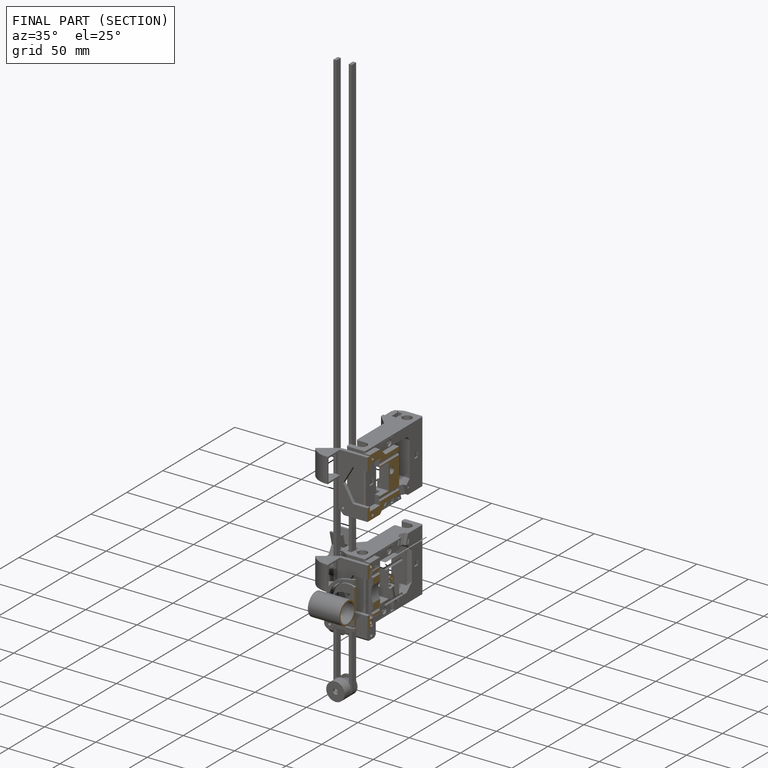
[diagram: finished part — half-section view (interior)]
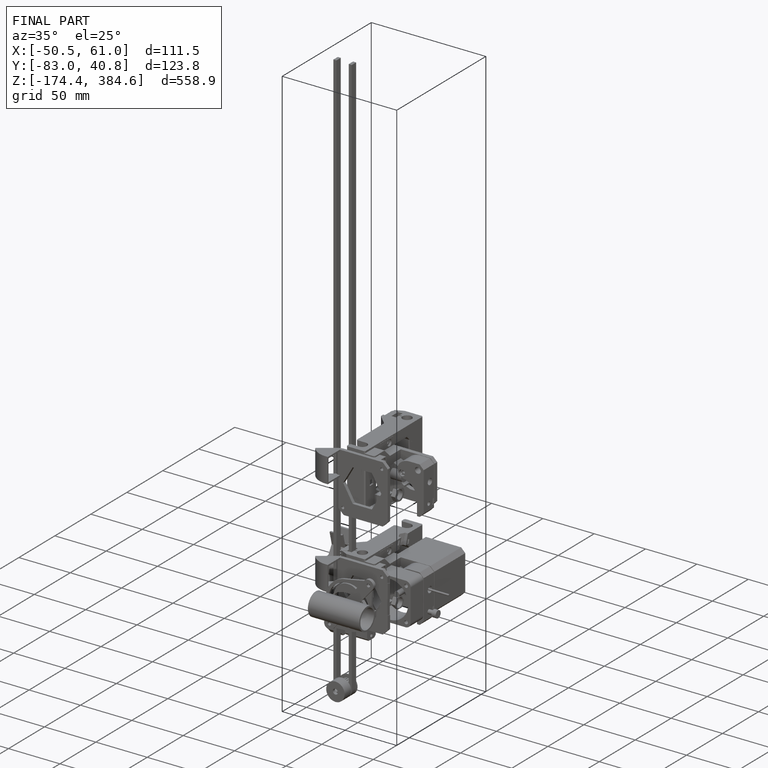
[diagram: finished part — iso view with bounding-box wireframe]
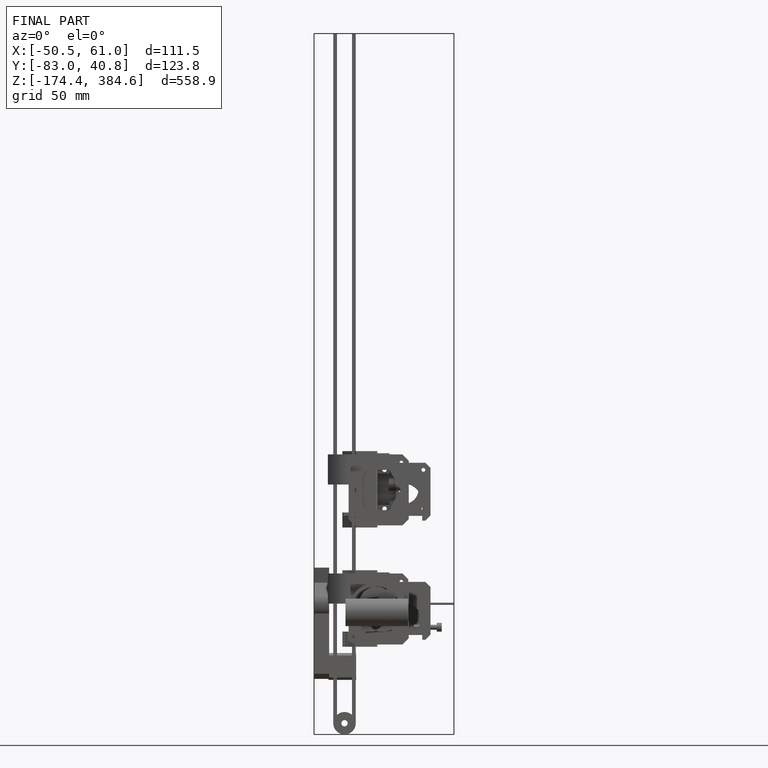
[diagram: finished part — front view with bounding-box wireframe]
